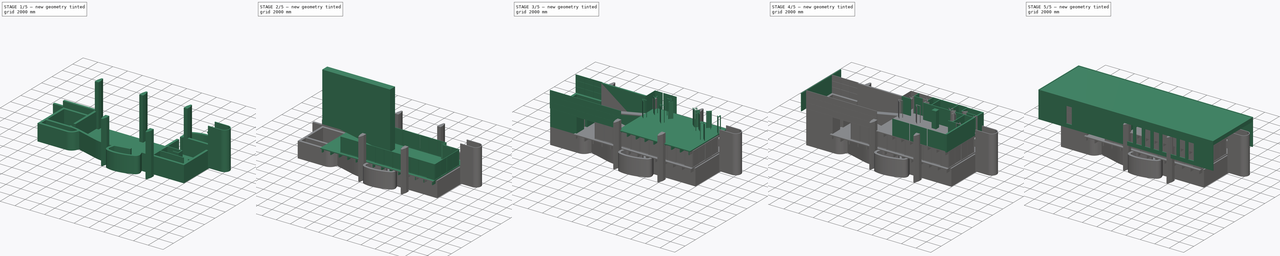
[diagram: build sequence overview — one tinted view per stage of 5, left to right]
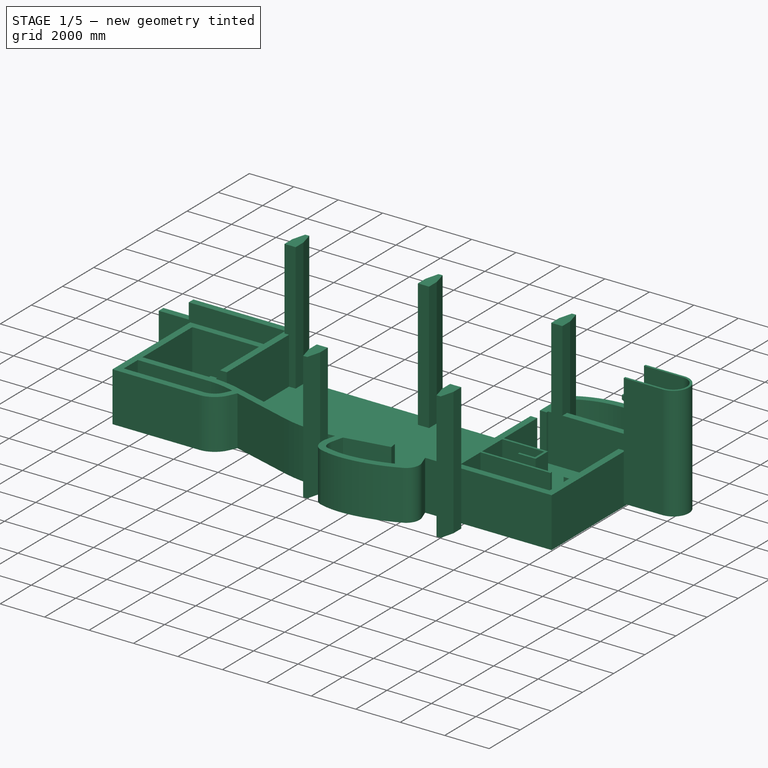
[diagram: stage 1 of 5 — iso view after this stage's code; geometry added in this stage tinted green]
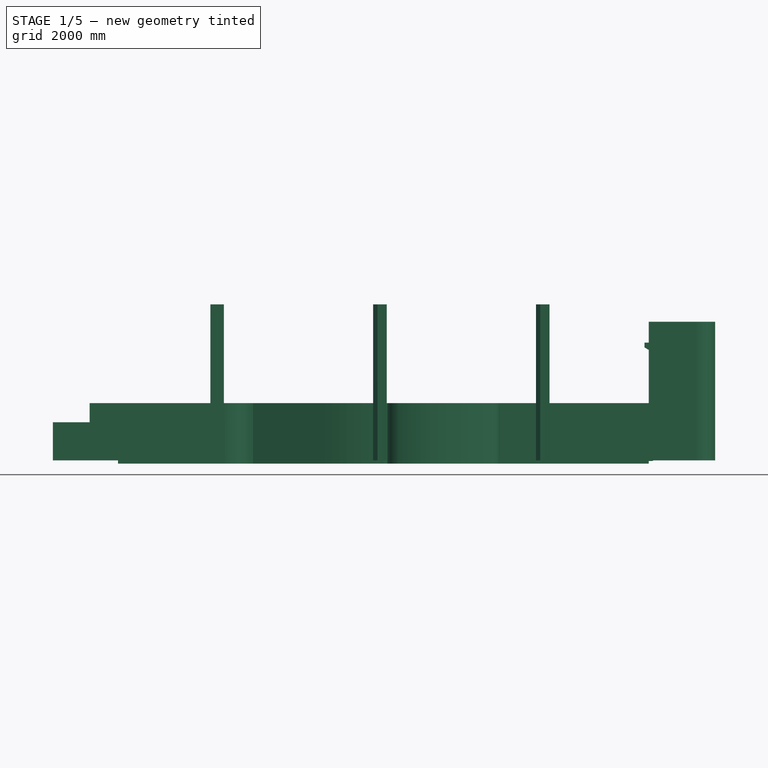
[diagram: stage 1 of 5 — front view after this stage's code; geometry added in this stage tinted green]
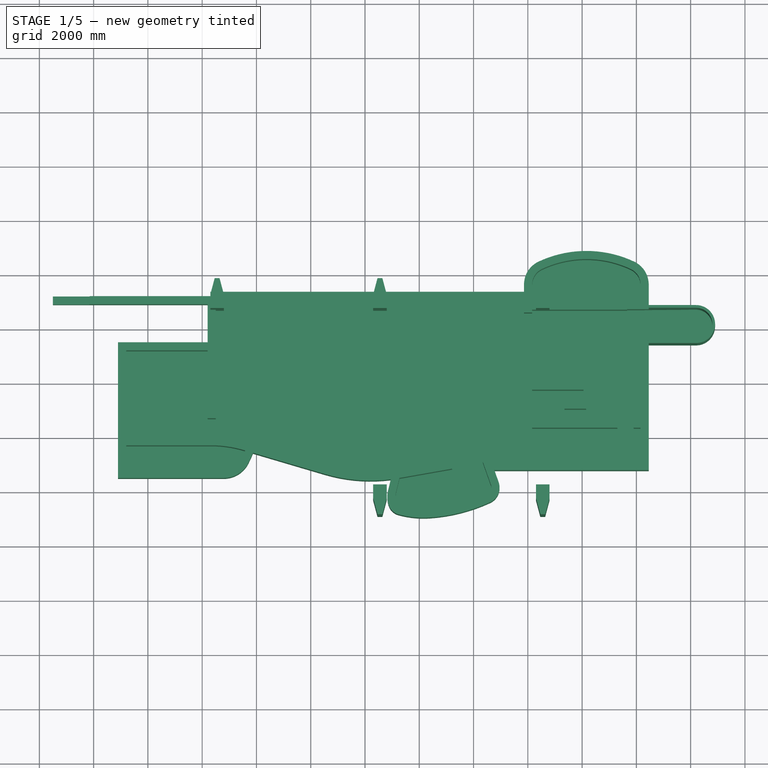
[diagram: stage 1 of 5 — top view after this stage's code; geometry added in this stage tinted green]
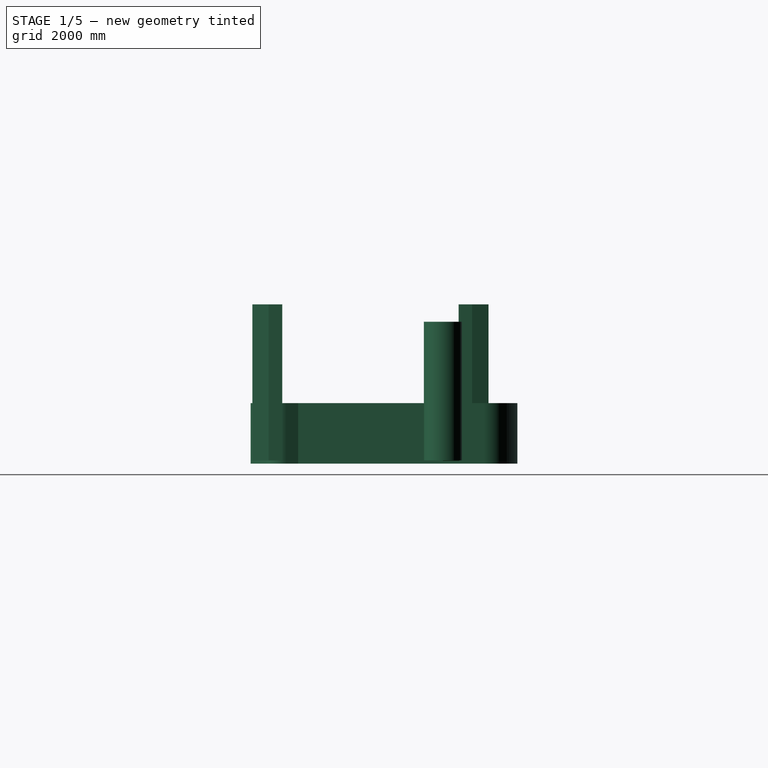
[diagram: stage 1 of 5 — right view after this stage's code; geometry added in this stage tinted green]
FCSTD DOCUMENT  (FreeCAD 1.0R39319 (Git))
Label: casa
Comment: An example BIM file made in FreeCAD. See README for more info
License: Creative Commons Attribution 4.0
LicenseURL: https://creativecommons.org/licenses/by/4.0/
objects: Part::FeaturePython×149, Part::Part2DObjectPython×63, App::FeaturePython×48, Sketcher::SketchObject×37, App::DocumentObjectGroup×24, Part::Extrusion×20, Part::Feature×6, App::GeometryPython×6, Part::Cut×2, Part::MultiFuse×1, TechDraw::DrawSVGTemplate×1, TechDraw::DrawViewDraft×1, TechDraw::DrawViewAnnotation×1, TechDraw::DrawPage×1, App::TextDocument×1
note: 318 computed .brp shape members not serialized (recipe doc carries the construction recipe); baked Part::Feature solids carry a one-line shape summary decoded from their .brp

FEATURE [Part::Part2DObjectPython] Wire001  # Draft 2D object (typed FeaturePython)
  Area = 454000
  ChamferSize = 0
  Closed = true
  End = (-13700,15700,0)
  FilletRadius = 0
  Length = 2921.93
  MakeFace = true
  Placement = pos=(-13700,16200,0) rot=(0,0,1;0rad)
  Points = (6) [(0,0,0),(500,0,0),(500,-500,0),(340,-1100,0),(160,-1100,0),(0,-500,0)]
  Start = (-13700,16200,0)
  Subdivisions = 0
FEATURE [Part::FeaturePython] Structure  label="Pillar"  # Arch/BIM 13 (typed FeaturePython)
  Base = -> Wire001
  BaseMirror = false
  BaseOffsetX = 0
  BaseOffsetY = 0
  BasePerpendicularToTool = false
  BaseRotation = 0
  ComputedLength = 5750
  FaceMaker = 0
  GlobalId = 0NkQKI2hLFPPYrA8HjVf2R
  Height = 5750
  HorizontalArea = 454000
  IfcData = IfcUID=0NkQKI2hLFPPYrA8HjVf2R,+2 more (map truncated)
  IfcType = 13
  Length = 0
  MoveBase = false
  MoveWithHost = false
  Nodes = (2) [(-13450,15724,0),(-13450,15724,5750)]
  NodesOffset = 0
  Normal = (0,0,1)
  PerimeterLength = 2921.93
  PredefinedType = 0
  ToolOffsetFirst = 0
  ToolOffsetLast = 0
  VerticalArea = 1.68011e+07
  Width = 100
FEATURE [Part::FeaturePython] Axis  label="Axes"  # WARN: FeaturePython — macro-defined, semantics opaque (R4)
  Angles = [0]
  Distances = [0]
  Length = 12000
  Limit = 0
  Placement = pos=(-19500,14000,0) rot=(0,0,1;0rad)
FEATURE [Part::FeaturePython] Axis001  label="Axes001"  # WARN: FeaturePython — macro-defined, semantics opaque (R4)
  Angles = [0]
  Distances = [0]
  Length = 12000
  Limit = 0
  Placement = pos=(-13450,14000,0) rot=(0,0,1;0rad)
FEATURE [App::FeaturePython] Dimension  # Draft dimension (typed FeaturePython)
  Diameter = false
  Dimline = (-14300,25300,0)
  Direction = (0,0,0)
  Distance = 6051.15
  End = (-13448.8,26000,0)
  Normal = (0,0,1)
  Start = (-19500,26000,0)
FEATURE [Part::FeaturePython] Axis002  label="Axes002"  # WARN: FeaturePython — macro-defined, semantics opaque (R4)
  Angles = [0]
  Distances = [0]
  Length = 12000
  Limit = 0
  Placement = pos=(-7450,14000,0) rot=(0,0,1;0rad)
FEATURE [Part::FeaturePython] Axis003  label="Axes003"  # WARN: FeaturePython — macro-defined, semantics opaque (R4)
  Angles = [0]
  Distances = [0]
  Length = 12000
  Limit = 0
  Placement = pos=(-1450,14000,0) rot=(0,0,1;0rad)
FEATURE [Part::FeaturePython] Axis004  label="Axes004"  # WARN: FeaturePython — macro-defined, semantics opaque (R4)
  Angles = [0]
  Distances = [0]
  Length = 12000
  Limit = 0
  Placement = pos=(4600,14000,0) rot=(0,0,1;0rad)
FEATURE [App::FeaturePython] Dimension001  # Draft dimension (typed FeaturePython)
  Diameter = false
  Dimline = (-10300,25300,0)
  Direction = (0,0,0)
  Distance = 6000
  End = (-7450,26000,0)
  Normal = (0,0,1)
  Start = (-13450,26000,0)
FEATURE [App::FeaturePython] Dimension002  # Draft dimension (typed FeaturePython)
  Diameter = false
  Dimline = (-3200,25300,0)
  Direction = (0,0,0)
  Distance = 6000
  End = (-1450,26000,0)
  Normal = (0,0,1)
  Start = (-7450,26000,0)
FEATURE [App::FeaturePython] Dimension003  # Draft dimension (typed FeaturePython)
  Diameter = false
  Dimline = (4100,25300,0)
  Direction = (0,0,0)
  Distance = 6050
  End = (4600,26000,0)
  Normal = (0,0,1)
  Start = (-1450,26000,0)
FEATURE [App::FeaturePython] Dimension004  # Draft dimension (typed FeaturePython)
  Diameter = false
  Dimline = (3800,25500,0)
  Direction = (0,0,0)
  Distance = 24100
  End = (4600,26000,0)
  Normal = (0,0,1)
  Start = (-19500,26000,0)
FEATURE [Part::FeaturePython] Axis005  label="Axes005"  # WARN: FeaturePython — macro-defined, semantics opaque (R4)
  Angles = [0]
  Distances = [0]
  Length = 30000
  Limit = 0
  Placement = pos=(6700,23400,0) rot=(0,0,1;1.5708rad)
FEATURE [Part::FeaturePython] Axis006  label="Axes006"  # WARN: FeaturePython — macro-defined, semantics opaque (R4)
  Angles = [0]
  Distances = [0]
  Length = 30000
  Limit = 0
  Placement = pos=(6700,15500,0) rot=(0,0,1;1.5708rad)
FEATURE [Part::FeaturePython] Axis007  label="Axes007"  # WARN: FeaturePython — macro-defined, semantics opaque (R4)
  Angles = [0]
  Distances = [0]
  Length = 30000
  Limit = 0
  Placement = pos=(6700,19450,0) rot=(0,0,1;1.5708rad)
FEATURE [App::FeaturePython] Dimension005  # Draft dimension (typed FeaturePython)
  Diameter = false
  Dimline = (-22700,18900,0)
  Direction = (0,0,0)
  Distance = 3950
  End = (-23300,19450,0)
  Normal = (0,0,1)
  Start = (-23300,15500,0)
FEATURE [App::FeaturePython] Dimension006  # Draft dimension (typed FeaturePython)
  Diameter = false
  Dimline = (-22700,20000,0)
  Direction = (0,0,0)
  Distance = 3950
  End = (-23300,23400,0)
  Normal = (0,0,1)
  Start = (-23300,19450,0)
FEATURE [App::FeaturePython] Dimension007  # Draft dimension (typed FeaturePython)
  Diameter = false
  Dimline = (-22900,20500,0)
  Direction = (0,0,0)
  Distance = 7900
  End = (-23300,23400,0)
  Normal = (0,0,1)
  Start = (-23300,15500,0)
FEATURE [Part::FeaturePython] Structure001  label="Pillar"  # Arch/BIM 13 (typed FeaturePython)
  BaseMirror = false
  BaseOffsetX = 0
  BaseOffsetY = 0
  BasePerpendicularToTool = false
  BaseRotation = 0
  CloneOf = -> Structure
  ComputedLength = 0
  FaceMaker = 0
  GlobalId = 3hDywtAl177982XMqiZviT
  Height = 5750
  HorizontalArea = 454000
  IfcData = IfcUID=3hDywtAl177982XMqiZviT,+2 more (map truncated)
  IfcType = 13
  Length = 0
  MoveBase = false
  MoveWithHost = false
  Nodes = (2) [(-13450,15724,0),(-13450,15724,5750)]
  NodesOffset = 0
  Normal = (0,0,0)
  PerimeterLength = 2921.93
  Placement = pos=(6000,0,0) rot=(0,0,1;0rad)
  PredefinedType = 0
  ToolOffsetFirst = 0
  ToolOffsetLast = 0
  VerticalArea = 1.68011e+07
  Width = 100
FEATURE [Part::FeaturePython] Structure002  label="Pillar"  # Arch/BIM 13 (typed FeaturePython)
  BaseMirror = false
  BaseOffsetX = 0
  BaseOffsetY = 0
  BasePerpendicularToTool = false
  BaseRotation = 0
  CloneOf = -> Structure
  ComputedLength = 0
  FaceMaker = 0
  GlobalId = 2Iak8LEPP6QvvV_2CvCRGJ
  Height = 5750
  HorizontalArea = 454000
  IfcData = IfcUID=2Iak8LEPP6QvvV_2CvCRGJ,+2 more (map truncated)
  IfcType = 13
  Length = 0
  MoveBase = false
  MoveWithHost = false
  Nodes = (2) [(-13450,15724,0),(-13450,15724,5750)]
  NodesOffset = 0
  Normal = (0,0,0)
  PerimeterLength = 2921.93
  Placement = pos=(12000,0,0) rot=(0,0,1;0rad)
  PredefinedType = 0
  ToolOffsetFirst = 0
  ToolOffsetLast = 0
  VerticalArea = 1.68011e+07
  Width = 100
FEATURE [Part::FeaturePython] Structure003  label="Pillar"  # Arch/BIM 13 (typed FeaturePython)
  BaseMirror = false
  BaseOffsetX = 0
  BaseOffsetY = 0
  BasePerpendicularToTool = false
  BaseRotation = 0
  CloneOf = -> Structure
  ComputedLength = 0
  FaceMaker = 0
  GlobalId = 23wGFEobfA$8ceSm6nz_Jv
  Height = 5750
  HorizontalArea = 454000
  IfcData = IfcUID=23wGFEobfA$8ceSm6nz_Jv,+2 more (map truncated)
  IfcType = 13
  Length = 0
  MoveBase = false
  MoveWithHost = false
  Nodes = (2) [(-13450,15724,0),(-13450,15724,5750)]
  NodesOffset = 0
  Normal = (0,0,0)
  PerimeterLength = 2921.93
  Placement = pos=(-14900,38900,0) rot=(0,0,1;3.14159rad)
  PredefinedType = 0
  ToolOffsetFirst = 0
  ToolOffsetLast = 0
  VerticalArea = 1.68011e+07
  Width = 100
FEATURE [Part::FeaturePython] Structure004  label="Pillar"  # Arch/BIM 13 (typed FeaturePython)
  BaseMirror = false
  BaseOffsetX = 0
  BaseOffsetY = 0
  BasePerpendicularToTool = false
  BaseRotation = 0
  CloneOf = -> Structure
  ComputedLength = 0
  FaceMaker = 0
  GlobalId = 32KGh79Pr1peQKH7LYbQZP
  Height = 5750
  HorizontalArea = 454000
  IfcData = IfcUID=32KGh79Pr1peQKH7LYbQZP,+2 more (map truncated)
  IfcType = 13
  Length = 0
  MoveBase = false
  MoveWithHost = false
  Nodes = (2) [(-13450,15724,0),(-13450,15724,5750)]
  NodesOffset = 0
  Normal = (0,0,0)
  PerimeterLength = 2921.93
  Placement = pos=(-20900,38900,0) rot=(0,0,1;3.14159rad)
  PredefinedType = 0
  ToolOffsetFirst = 0
  ToolOffsetLast = 0
  VerticalArea = 1.68011e+07
  Width = 100
FEATURE [Part::FeaturePython] Structure005  label="Pillar"  # Arch/BIM 13 (typed FeaturePython)
  BaseMirror = false
  BaseOffsetX = 0
  BaseOffsetY = 0
  BasePerpendicularToTool = false
  BaseRotation = 0
  CloneOf = -> Structure
  ComputedLength = 0
  FaceMaker = 0
  GlobalId = 1JF68xTuT5IvEFZJxc68$2
  Height = 5750
  HorizontalArea = 454000
  IfcData = IfcUID=1JF68xTuT5IvEFZJxc68$2,+2 more (map truncated)
  IfcType = 13
  Length = 0
  MoveBase = false
  MoveWithHost = false
  Nodes = (2) [(-13450,15724,0),(-13450,15724,5750)]
  NodesOffset = 0
  Normal = (0,0,0)
  PerimeterLength = 2921.93
  Placement = pos=(-26900,38900,0) rot=(0,0,1;3.14159rad)
  PredefinedType = 0
  ToolOffsetFirst = 0
  ToolOffsetLast = 0
  VerticalArea = 1.68011e+07
  Width = 100
FEATURE [Part::Part2DObjectPython] Rectangle006  # Draft 2D object (typed FeaturePython)
  Area = 30510000
  ChamferSize = 0
  Columns = 1
  FilletRadius = 0
  Height = 11300
  Length = 2700
  MakeFace = true
  Placement = pos=(2300,14600,0) rot=(0,0,1;0rad)
  Rows = 1
FEATURE [Part::Part2DObjectPython] Wire  # Draft 2D object (typed FeaturePython)
  Area = 6.971e+07
  ChamferSize = 0
  Closed = true
  End = (-22700,14600,700)
  FilletRadius = 0
  Length = 48400
  MakeFace = true
  Placement = pos=(-22700,25900,700) rot=(0,0,1;0rad)
  Points = (10) [(0,0,0),(7100,0,0),(7100,-2700,0),(3200,-2700,0),(3200,-4400,0),(5600,-4400,0),(5600,-9400,0),(9000,-9400,0),(9000,-11300,0),(0,-11300,0)]
  Start = (-22700,25900,700)
  Subdivisions = 0
FEATURE [Part::Part2DObjectPython] Rectangle008  # Draft 2D object (typed FeaturePython)
  Area = 57630000
  ChamferSize = 0
  Columns = 1
  FilletRadius = 0
  Height = 11300
  Length = 5100
  MakeFace = true
  Placement = pos=(7400,14600,1400) rot=(0,0,1;0rad)
  Rows = 1
FEATURE [Part::Part2DObjectPython] Wire002  # Draft 2D object (typed FeaturePython)
  Area = 3.13969e+07
  ChamferSize = 0
  Closed = true
  End = (5000,14600,-9.095e-13)
  FilletRadius = 0
  Length = 28157
  MakeFace = true
  Placement = pos=(5000,25800,0) rot=(0.797893,-0.195582,-0.570188;0.812026rad)
  Points = (4) [(-46.246,69.9963,-54.4226),(2081.69,1805.55,369.547),(7307.49,-6104.03,6519.31),(5179.55,-7839.59,6095.34)]
  Start = (5000,25900,7.1e-15)
  Subdivisions = 0
FEATURE [Part::Feature] Face
  shape: bbox 19550 x 9833 x 2e-07 mm, 1 faces, 0 solids (baked)
FEATURE [Part::FeaturePython] Structure012  label="Main slab"  # Arch/BIM 118 (typed FeaturePython)
  Base = -> Face
  BaseMirror = false
  BaseOffsetX = 0
  BaseOffsetY = 0
  BasePerpendicularToTool = false
  BaseRotation = 0
  ComputedLength = 120
  FaceMaker = 0
  GlobalId = 24SdiaVOr3EQUxBykhiROc
  Height = 120
  HorizontalArea = 0
  IfcData = IfcUID=24SdiaVOr3EQUxBykhiROc,+2 more (map truncated)
  IfcType = 118
  Length = 0
  MoveBase = false
  MoveWithHost = false
  Nodes = (24) [(2454.4,16787.6,0),(-3232.51,16787.6,0),(-3076.74,16350.4,0),(-3391.4,15604.6,0),(-5615.11,15041.2,0),(-6763.2,15157.1,0),(-7130.25,15509,0),+17 more]
  NodesOffset = 0
  Normal = (0,0,-1)
  PerimeterLength = 0
  PredefinedType = 0
  ToolOffsetFirst = 0
  ToolOffsetLast = 0
  VerticalArea = 0
  Width = 100
FEATURE [Part::Part2DObjectPython] Rectangle009  # Draft 2D object (typed FeaturePython)
  Area = 0
  ChamferSize = 0
  Columns = 1
  FilletRadius = 0
  Height = 5000
  Length = 3600
  MakeFace = false
  Placement = pos=(-17100,16500,0) rot=(0,0,1;0rad)
  Rows = 1
FEATURE [Sketcher::SketchObject] WallTrace001
  ArcFitTolerance = 0
  FullyConstrained = false
  MakeInternals = false
  sketch-geometry (1):
    g0: LineSegment StartX=-16800 StartY=17800 StartZ=0 EndX=-13800 EndY=17800 EndZ=0
FEATURE [Part::FeaturePython] Wall004  label="Parede001"  # Arch/BIM 166 (typed FeaturePython)
  Align = 1
  ArchSketchData = true
  Area = 6328200
  Base = -> WallTrace001
  BlockHeight = 0
  BlockLength = 0
  CountBroken = 0
  CountEntire = 0
  Face = 0
  Height = 2109.4
  HorizontalArea = 900000
  IfcData = attributes={"GlobalId": {"name": "GlobalId", "type": "IfcGloballyUniqueId", "is_enum": false, "enum_values": []}, "Description": {"... (+533 chars omitted),+1 more (map truncated)
  IfcType = 166
  Joint = 0
  Length = 3000
  MakeBlocks = false
  MoveBase = false
  MoveWithHost = false
  Normal = (0,0,1)
  OffsetFirst = 0
  OffsetSecond = 0
  PerimeterLength = 6600
  Placement = pos=(0,-100.255,0) rot=(0,0,1;0rad)
  PredefinedType = 0
  VerticalArea = 13922040
  Width = 300
FEATURE [Sketcher::SketchObject] WallTrace002
  ArcFitTolerance = 0
  FullyConstrained = false
  MakeInternals = false
  sketch-geometry (1):
    g0: LineSegment StartX=-13500 StartY=21500 StartZ=0 EndX=-13500 EndY=23200 EndZ=0
FEATURE [Part::FeaturePython] Wall005  label="Parede002"  # Arch/BIM 166 (typed FeaturePython)
  Align = 1
  ArchSketchData = true
  Area = 3585980
  Base = -> WallTrace002
  BlockHeight = 0
  BlockLength = 0
  CountBroken = 0
  CountEntire = 0
  Face = 0
  Height = 2109.4
  HorizontalArea = 510000
  IfcData = attributes={"GlobalId": {"name": "GlobalId", "type": "IfcGloballyUniqueId", "is_enum": false, "enum_values": []}, "Description": {"... (+533 chars omitted),+1 more (map truncated)
  IfcType = 166
  Joint = 0
  Length = 1700
  MakeBlocks = false
  MoveBase = false
  MoveWithHost = false
  Normal = (0,0,1)
  OffsetFirst = 0
  OffsetSecond = 0
  PerimeterLength = 4000
  PredefinedType = 0
  VerticalArea = 8437600
  Width = 300
FEATURE [Sketcher::SketchObject] WallTrace003
  ArcFitTolerance = 0
  FullyConstrained = false
  MakeInternals = false
  sketch-geometry (1):
    g0: LineSegment StartX=-13800 StartY=23200 StartZ=0 EndX=-19500 EndY=23200 EndZ=0
FEATURE [Part::FeaturePython] Wall006  label="Parede003"  # Arch/BIM 166 (typed FeaturePython)
  Align = 1
  ArchSketchData = true
  Area = 12023580
  Base = -> WallTrace003
  BlockHeight = 0
  BlockLength = 0
  CountBroken = 0
  CountEntire = 0
  Face = 0
  Height = 2109.4
  HorizontalArea = 1710000
  IfcData = attributes={"GlobalId": {"name": "GlobalId", "type": "IfcGloballyUniqueId", "is_enum": false, "enum_values": []}, "Description": {"... (+533 chars omitted),+1 more (map truncated)
  IfcType = 166
  Joint = 0
  Length = 5700
  MakeBlocks = false
  MoveBase = false
  MoveWithHost = false
  Normal = (0,0,1)
  OffsetFirst = 0
  OffsetSecond = 0
  PerimeterLength = 12000
  PredefinedType = 0
  VerticalArea = 25312800
  Width = 300
FEATURE [Part::Part2DObjectPython] Rectangle010  # Draft 2D object (typed FeaturePython)
  Area = 0
  ChamferSize = 0
  Columns = 1
  FilletRadius = 0
  Height = 6212.4
  Length = 4595.07
  MakeFace = false
  Placement = pos=(-2140.67,16787.6,0) rot=(0,0,1;0rad)
  Rows = 1
FEATURE [Part::Feature] Wire003
  shape: bbox 4595 x 1867 x 2e-07 mm, 0 faces, 0 solids (baked)
FEATURE [Part::FeaturePython] Wall008  label="Parede005"  # Arch/BIM 166 (typed FeaturePython)
  Align = 0
  ArchSketchData = true
  Area = 1.47824e+07
  Base = -> Wire003
  BlockHeight = 0
  BlockLength = 0
  CountBroken = 0
  CountEntire = 0
  Face = 0
  Height = 2109.4
  HorizontalArea = 1.96099e+06
  IfcData = attributes={"GlobalId": {"name": "GlobalId", "type": "IfcGloballyUniqueId", "is_enum": false, "enum_values": []}, "Description": {"... (+533 chars omitted),+1 more (map truncated)
  IfcType = 166
  Joint = 0
  Length = 7007.89
  MakeBlocks = false
  MoveBase = false
  MoveWithHost = false
  Normal = (0,0,0)
  OffsetFirst = 0
  OffsetSecond = 0
  PerimeterLength = 13673.3
  PredefinedType = 0
  VerticalArea = 6.56155e+06
  Width = 300
FEATURE [Part::Feature] Wire005
  shape: bbox 11360 x 2392 x 2e-07 mm, 0 faces, 0 solids (baked)
FEATURE [Part::Part2DObjectPython] Line  # Draft 2D object (typed FeaturePython)
  Area = 0
  ChamferSize = 0
  Closed = false
  End = (-4841.74,17137.4,0)
  FilletRadius = 0
  Length = 2127.59
  MakeFace = true
  Placement = pos=(-6650.98,16818.3,0) rot=(0,0,1;0rad)
  Points = (2) [(-286,-50.4524,0),(1809.24,319.163,0)]
  Start = (-6936.98,16767.8,0)
  Subdivisions = 0
FEATURE [Part::FeaturePython] Wall010  label="Parede007"  # Arch/BIM 166 (typed FeaturePython)
  Align = 0
  ArchSketchData = true
  Area = 4.48795e+06
  Base = -> Line
  BlockHeight = 0
  BlockLength = 0
  CountBroken = 0
  CountEntire = 0
  Face = 0
  Height = 2109.4
  HorizontalArea = 638278
  IfcData = attributes={"GlobalId": {"name": "GlobalId", "type": "IfcGloballyUniqueId", "is_enum": false, "enum_values": []}, "Description": {"... (+533 chars omitted),+1 more (map truncated)
  IfcType = 166
  Joint = 0
  Length = 2127.59
  MakeBlocks = false
  MoveBase = false
  MoveWithHost = false
  Normal = (0,0,0)
  OffsetFirst = 0
  OffsetSecond = 0
  PerimeterLength = 4855.19
  PredefinedType = 0
  VerticalArea = 1.02415e+07
  Width = 300
FEATURE [Part::Part2DObjectPython] Arc  # Draft 2D object (typed FeaturePython)
  Area = 0
  FirstAngle = 0
  LastAngle = 15.4102
  MakeFace = false
  Placement = pos=(-13682.8,13417.2,0) rot=(0,0,1;1.26197rad)
  Radius = 4586.44
FEATURE [Part::FeaturePython] Wall011  label="Parede008"  # Arch/BIM 166 (typed FeaturePython)
  Align = 1
  ArchSketchData = true
  Area = 2.60207e+06
  Base = -> Arc
  BlockHeight = 0
  BlockLength = 0
  CountBroken = 0
  CountEntire = 0
  Face = 0
  Height = 2109.4
  HorizontalArea = 357965
  IfcData = attributes={"GlobalId": {"name": "GlobalId", "type": "IfcGloballyUniqueId", "is_enum": false, "enum_values": []}, "Description": {"... (+533 chars omitted),+1 more (map truncated)
  IfcType = 166
  Joint = 0
  Length = 1233.56
  MakeBlocks = false
  MoveBase = false
  MoveWithHost = false
  Normal = (0,0,0)
  OffsetFirst = 0
  OffsetSecond = 0
  PerimeterLength = 2986.44
  PredefinedType = 0
  VerticalArea = 1.26564e+06
  Width = 300
FEATURE [Part::FeaturePython] Wall009  label="Parede006"  # Arch/BIM 166 (typed FeaturePython)
  Additions = -> [Wall010,Wall011]
  Align = 0
  ArchSketchData = true
  Area = 3.04495e+07
  Base = -> Wire005
  BlockHeight = 0
  BlockLength = 0
  CountBroken = 0
  CountEntire = 0
  Face = 0
  Height = 2109.4
  HorizontalArea = 0
  IfcData = attributes={"GlobalId": {"name": "GlobalId", "type": "IfcGloballyUniqueId", "is_enum": false, "enum_values": []}, "Description": {"... (+533 chars omitted),+1 more (map truncated)
  IfcType = 166
  Joint = 0
  Length = 14435.1
  MakeBlocks = false
  MoveBase = false
  MoveWithHost = false
  Normal = (0,0,0)
  OffsetFirst = 0
  OffsetSecond = 0
  PerimeterLength = 0
  PredefinedType = 0
  VerticalArea = 0
  Width = 300
FEATURE [Sketcher::SketchObject] WallTrace004
  ArcFitTolerance = 0
  FullyConstrained = false
  MakeInternals = false
  sketch-geometry (1):
    g0: LineSegment StartX=-1840.67 StartY=18400 StartZ=0 EndX=2154.4 EndY=18400 EndZ=0
FEATURE [Part::Part2DObjectPython] Wire006  # Draft 2D object (typed FeaturePython)
  Area = 0
  ChamferSize = 0
  Closed = false
  End = (-1840.67,19800,0)
  FilletRadius = 0
  Length = 3990.67
  MakeFace = true
  Placement = pos=(-600,18450,0) rot=(0,0,1;0rad)
  Points = (5) [(0,0,0),(0,650,0),(700,650,0),(700,1350,0),(-1240.67,1350,0)]
  Start = (-600,18450,0)
  Subdivisions = 0
FEATURE [Part::FeaturePython] Wall013  label="Wall"  # Arch/BIM 166 (typed FeaturePython)
  Align = 2
  ArchSketchData = true
  Area = 8.41792e+06
  Base = -> Wire006
  BlockHeight = 0
  BlockLength = 0
  CountBroken = 0
  CountEntire = 0
  Face = 0
  Height = 2109.4
  HorizontalArea = 399067
  IfcData = attributes={"GlobalId": {"name": "GlobalId", "type": "IfcGloballyUniqueId", "is_enum": false, "enum_values": []}, "Description": {"... (+533 chars omitted),+1 more (map truncated)
  IfcType = 166
  Joint = 0
  Length = 3990.67
  MakeBlocks = false
  MoveBase = false
  MoveWithHost = false
  Normal = (0,0,0)
  OffsetFirst = 0
  OffsetSecond = 0
  PerimeterLength = 8181.34
  PredefinedType = 0
  VerticalArea = 1.72577e+07
  Width = 100
FEATURE [Part::Feature] Block001
  shape: bbox 2396 x 1300 x 2e-07 mm, 0 faces, 0 solids (baked)
FEATURE [Part::FeaturePython] Wall014  label="Stairs wall"  # Arch/BIM 166 (typed FeaturePython)
  Align = 2
  ArchSketchData = true
  Area = 2.84146e+07
  Base = -> Block001
  BlockHeight = 0
  BlockLength = 0
  CountBroken = 0
  CountEntire = 0
  Face = 0
  GlobalId = 0gcU4iA1DBHfLataULH7CL
  Height = 5109.4
  HorizontalArea = 553328
  IfcData = IfcUID=0gcU4iA1DBHfLataULH7CL,+2 more (map truncated)
  IfcType = 166
  Joint = 0
  Length = 5561.24
  MakeBlocks = false
  MoveBase = false
  MoveWithHost = false
  Normal = (0,0,0)
  OffsetFirst = 0
  OffsetSecond = 0
  PerimeterLength = 11267
  Placement = pos=(0,70,0) rot=(0,0,1;0rad)
  PredefinedType = 0
  VerticalArea = 3.77196e+07
  Width = 100
FEATURE [Part::Part2DObjectPython] Rectangle013  # Draft 2D object (typed FeaturePython)
  Area = 480000
  ChamferSize = 0
  Columns = 1
  FilletRadius = 0
  Height = 600
  Length = 800
  MakeFace = true
  Placement = pos=(-13900,18100,0) rot=(0,0,1;0rad)
  Rows = 1
FEATURE [Part::Part2DObjectPython] Rectangle014  # Draft 2D object (typed FeaturePython)
  Area = 360000
  ChamferSize = 0
  Columns = 1
  FilletRadius = 0
  Height = 900
  Length = 400
  MakeFace = true
  Placement = pos=(-13900,16800,0) rot=(0,0,1;0rad)
  Rows = 1
FEATURE [Part::Extrusion] Extrude002  label="Extrude004"
  Base = -> Rectangle014
  Dir = (0,0,1)
  DirMode = 2
  FaceMakerClass = Part::FaceMakerBullseye
  FaceMakerMode = 3
  LengthFwd = 3000
  LengthRev = 0
  Solid = false
  Symmetric = false
FEATURE [Part::Extrusion] Extrude003  label="Extrude005"
  Base = -> Rectangle013
  Dir = (0,0,1)
  DirMode = 2
  FaceMakerClass = Part::FaceMakerBullseye
  FaceMakerMode = 3
  LengthFwd = 2200
  LengthRev = 0
  Solid = false
  Symmetric = false
FEATURE [Part::Part2DObjectPython] Rectangle015  # Draft 2D object (typed FeaturePython)
  Area = 600000
  ChamferSize = 0
  Columns = 1
  FilletRadius = 0
  Height = 600
  Length = 1000
  MakeFace = true
  Placement = pos=(-2300,22000,0) rot=(0,0,1;0rad)
  Rows = 1
FEATURE [Part::Part2DObjectPython] Rectangle016  # Draft 2D object (typed FeaturePython)
  Area = 600000
  ChamferSize = 0
  Columns = 1
  FilletRadius = 0
  Height = 600
  Length = 1000
  MakeFace = true
  Placement = pos=(-1150,18450,0) rot=(0,0,1;0rad)
  Rows = 1
FEATURE [Part::Part2DObjectPython] Rectangle017  # Draft 2D object (typed FeaturePython)
  Area = 600000
  ChamferSize = 0
  Columns = 1
  FilletRadius = 0
  Height = 1000
  Length = 600
  MakeFace = true
  Placement = pos=(1300,17600,0) rot=(0,0,1;0rad)
  Rows = 1
FEATURE [Part::Extrusion] Extrude004  label="Extrude006"
  Base = -> Rectangle015
  Dir = (0,0,1)
  DirMode = 2
  FaceMakerClass = Part::FaceMakerBullseye
  FaceMakerMode = 3
  LengthFwd = 2200
  LengthRev = 0
  Solid = false
  Symmetric = false
FEATURE [Part::Extrusion] Extrude005  label="Extrude007"
  Base = -> Rectangle016
  Dir = (0,0,1)
  DirMode = 2
  FaceMakerClass = Part::FaceMakerBullseye
  FaceMakerMode = 3
  LengthFwd = 2200
  LengthRev = 0
  Solid = false
  Symmetric = false
FEATURE [Part::Extrusion] Extrude006  label="Extrude008"
  Base = -> Rectangle017
  Dir = (0,0,1)
  DirMode = 2
  FaceMakerClass = Part::FaceMakerBullseye
  FaceMakerMode = 3
  LengthFwd = 2200
  LengthRev = 0
  Solid = false
  Symmetric = false
FEATURE [Part::FeaturePython] Wall012  label="Inner wall"  # Arch/BIM 166 (typed FeaturePython)
  Additions = -> [Wall013]
  Align = 2
  ArchSketchData = true
  Area = 8.42721e+06
  Base = -> WallTrace004
  BlockHeight = 0
  BlockLength = 0
  CountBroken = 0
  CountEntire = 0
  Face = 0
  GlobalId = 2idwnEQqPANPtn2T6W7if7
  Height = 2109.4
  HorizontalArea = 0
  IfcData = IfcUID=2idwnEQqPANPtn2T6W7if7,+2 more (map truncated)
  IfcType = 166
  Joint = 0
  Length = 3995.07
  MakeBlocks = false
  MoveBase = false
  MoveWithHost = false
  Normal = (0,0,1)
  OffsetFirst = 0
  OffsetSecond = 0
  PerimeterLength = 0
  PredefinedType = 0
  Subtractions = -> [Extrude005,Extrude006]
  VerticalArea = 0
  Width = 100
FEATURE [Part::Part2DObjectPython] Rectangle018  # Draft 2D object (typed FeaturePython)
  Area = 2.00111e+06
  ChamferSize = 0
  Columns = 1
  FilletRadius = 0
  Height = 1200
  Length = 1667.59
  MakeFace = true
  Placement = pos=(1659.61,21450,0) rot=(0,0,1;0rad)
  Rows = 1
FEATURE [Part::Extrusion] Extrude007  label="Extrude009"
  Base = -> Rectangle018
  Dir = (0,0,1)
  DirMode = 2
  FaceMakerClass = Part::FaceMakerBullseye
  FaceMakerMode = 3
  LengthFwd = 2200
  LengthRev = 0
  Placement = pos=(0,70,0) rot=(0,0,1;0rad)
  Solid = false
  Symmetric = false
FEATURE [Part::FeaturePython] Wall007  label="Stone wall"  # Arch/BIM 166 (typed FeaturePython)
  Additions = -> [Wall008]
  Align = 1
  ArchSketchData = true
  Area = 4.55946e+07
  Base = -> Rectangle010
  BlockHeight = 0
  BlockLength = 0
  CountBroken = 0
  CountEntire = 0
  Face = 0
  GlobalId = 2QrGNflgrCNfGLsQiH4uu2
  Height = 2109.4
  HorizontalArea = 0
  IfcData = IfcUID=2QrGNflgrCNfGLsQiH4uu2,+2 more (map truncated)
  IfcType = 166
  Joint = 0
  Length = 21615
  MakeBlocks = false
  MoveBase = false
  MoveWithHost = false
  Normal = (0,0,0)
  OffsetFirst = 0
  OffsetSecond = 0
  PerimeterLength = 0
  PredefinedType = 0
  Subtractions = -> [Extrude004,Extrude007]
  VerticalArea = 0
  Width = 300
FEATURE [Part::Feature] Face001
  Placement = pos=(-0.1,0,1114.69) rot=(0,0,1;0rad)
  shape: bbox 600 x 1200 x 2e-07 mm, 1 faces, 0 solids (baked)
FEATURE [Part::Part2DObjectPython] Rectangle029  # Draft 2D object (typed FeaturePython)
  Area = 335880
  ChamferSize = 0
  Columns = 1
  FilletRadius = 0
  Height = 1200
  Length = 279.9
  MakeFace = true
  Placement = pos=(3920,21520,1114.69) rot=(0,0,1;0rad)
  Rows = 1
FEATURE [Part::MultiFuse] Fusion
  Refine = true
  Shapes = -> [Face001,Rectangle029]
FEATURE [Part::FeaturePython] Structure014  label="Stairs slab"  # Arch/BIM 118 (typed FeaturePython)
  Base = -> Fusion
  BaseMirror = false
  BaseOffsetX = 0
  BaseOffsetY = 0
  BasePerpendicularToTool = false
  BaseRotation = 0
  ComputedLength = 240
  FaceMaker = 0
  GlobalId = 2ycfBSIkD1SuOPLsx$jl$3
  Height = 120
  HorizontalArea = 901367
  IfcData = IfcUID=2ycfBSIkD1SuOPLsx$jl$3,+2 more (map truncated)
  IfcType = 118
  Length = 0
  MoveBase = false
  MoveWithHost = false
  NodesOffset = 0
  Normal = (0,0,-1)
  PerimeterLength = 3644.76
  PredefinedType = 0
  ToolOffsetFirst = 0
  ToolOffsetLast = 0
  VerticalArea = 499176
  Width = 100
FEATURE [Part::Part2DObjectPython] Line013  # Draft 2D object (typed FeaturePython)
  Area = 0
  ChamferSize = 0
  Closed = false
  End = (2300,21520,2229.39)
  FilletRadius = 0
  Length = 1966.45
  MakeFace = true
  Placement = pos=(3920,21520,1114.69) rot=(0,0.707107,0.707107;3.14159rad)
  Points = (2) [(0,0,0),(1620,1114.69,0)]
  Start = (3920,21520,1114.69)
  Subdivisions = 0
FEATURE [Part::FeaturePython] Stairs003  label="Stairs"  # Arch/BIM 128 (typed FeaturePython)
  AbsTop = (3920,21520,2229.39)
  Align = 0
  Base = -> Line013
  BlondelRatio = 0
  ConnectionDownStartStairs = 0
  ConnectionEndStairsUp = 0
  DownSlabThickness = 150
  Flight = 0
  GlobalId = 1KCCu54bjEn9tj8UASzMF8
  Height = 3000
  HorizontalArea = 0
  IfcData = IfcUID=1KCCu54bjEn9tj8UASzMF8,+2 more (map truncated)
  IfcType = 128
  LandingDepth = 0
  Landings = 0
  Length = 4500
  MoveBase = false
  MoveWithHost = false
  Nosing = 0
  NumberOfSteps = 7
  OutlineLeft = (2) [(3920,21580,2173.94),(2300,21580,3129.39)]
  OutlineLeftAll = (2) [(3920,21580,2173.94),(2300,21580,3129.39)]
  OutlineRight = (2) [(2300,22060,3129.39),(3920,22060,2173.94)]
  OutlineRightAll = (2) [(2300,22060,3129.39),(3920,22060,2173.94)]
  PerimeterLength = 0
  PredefinedType = 0
  RailingHeightLeft = 900
  RailingHeightRight = 900
  RailingOffsetLeft = 60
  RailingOffsetRight = 60
  RiserHeight = 159.242
  RiserHeightEnforce = 0
  RiserThickness = 0
  StringerOverlap = 0
  StringerWidth = 0
  Structure = 1
  StructureOffset = 0
  StructureThickness = 150
  TreadDepth = 270
  TreadDepthEnforce = 0
  TreadThickness = 0
  UpSlabThickness = 150
  VerticalArea = 0
  Width = 600
  Winders = 0
FEATURE [Part::Part2DObjectPython] Line022  # Draft 2D object (typed FeaturePython)
  Area = 0
  ChamferSize = 0
  Closed = false
  End = (2300,21520,4500)
  FilletRadius = 0
  Length = 1978.21
  MakeFace = true
  Placement = pos=(3920,21520,3364.69) rot=(1,0,0;1.5708rad)
  Points = (2) [(0,0,0),(-1620,1135.31,0)]
  Start = (3920,21520,3364.69)
  Subdivisions = 0
FEATURE [Part::FeaturePython] Stairs005  label="Stairs red box"  # Arch/BIM 128 (typed FeaturePython)
  AbsTop = (3920,21520,4500)
  Align = 0
  Base = -> Line022
  BlondelRatio = 0
  ConnectionDownStartStairs = 0
  ConnectionEndStairsUp = 0
  DownSlabThickness = 150
  Flight = 0
  GlobalId = 2AbV24cmbA1f5E9iFVAOxH
  Height = 3000
  HorizontalArea = 0
  IfcData = IfcUID=2AbV24cmbA1f5E9iFVAOxH,+2 more (map truncated)
  IfcType = 128
  LandingDepth = 0
  Landings = 0
  Length = 4500
  MoveBase = false
  MoveWithHost = false
  Nosing = 0
  NumberOfSteps = 7
  OutlineLeft = (2) [(3920,21580,4426.88),(2300,21580,5400)]
  OutlineLeftAll = (2) [(3920,21580,4426.88),(2300,21580,5400)]
  OutlineRight = (2) [(2300,22060,5400),(3920,22060,4426.88)]
  OutlineRightAll = (2) [(2300,22060,5400),(3920,22060,4426.88)]
  PerimeterLength = 0
  PredefinedType = 0
  RailingHeightLeft = 900
  RailingHeightRight = 900
  RailingOffsetLeft = 60
  RailingOffsetRight = 60
  RiserHeight = 162.187
  RiserHeightEnforce = 0
  RiserThickness = 0
  StringerOverlap = 0
  StringerWidth = 0
  Structure = 1
  StructureOffset = 0
  StructureThickness = 150
  TreadDepth = 270
  TreadDepthEnforce = 0
  TreadThickness = 0
  UpSlabThickness = 150
  VerticalArea = 0
  Width = 600
  Winders = 0
FEATURE [Part::FeaturePython] Stairs006  label="Stairs"  # Arch/BIM 128 (typed FeaturePython)
  AbsTop = (0,0,0)
  Align = 0
  BlondelRatio = 0
  CloneOf = -> Stairs003
  ConnectionDownStartStairs = 0
  ConnectionEndStairsUp = 0
  DownSlabThickness = 150
  Flight = 0
  GlobalId = 1LNTFdvob5LhleUECx6EGT
  Height = 3000
  HorizontalArea = 0
  IfcData = IfcUID=1LNTFdvob5LhleUECx6EGT,+2 more (map truncated)
  IfcType = 128
  LandingDepth = 0
  Landings = 0
  Length = 4500
  MoveBase = false
  MoveWithHost = false
  Nosing = 0
  NumberOfSteps = 0
  PerimeterLength = 0
  Placement = pos=(6220,44240,-1135.31) rot=(0,0,1;3.14159rad)
  PredefinedType = 0
  RailingHeightLeft = 900
  RailingHeightRight = 900
  RailingOffsetLeft = 60
  RailingOffsetRight = 60
  RiserHeight = 0
  RiserHeightEnforce = 0
  RiserThickness = 0
  StringerOverlap = 0
  StringerWidth = 0
  Structure = 1
  StructureOffset = 0
  StructureThickness = 150
  TreadDepth = 0
  TreadDepthEnforce = 0
  TreadThickness = 0
  UpSlabThickness = 150
  VerticalArea = 0
  Width = 600
  Winders = 0
FEATURE [Part::Part2DObjectPython] Rectangle037  # Draft 2D object (typed FeaturePython)
  Area = 405000
  ChamferSize = 0
  Columns = 1
  FilletRadius = 0
  Height = 300
  Length = 1350
  MakeFace = true
  Placement = pos=(-19500,22900,2109.4) rot=(0,0,1;0rad)
  Rows = 1
FEATURE [Part::Extrusion] Extrude019  label="Extrude030"
  Base = -> Rectangle037
  Dir = (0,0,-1)
  DirMode = 0
  FaceMakerClass = Part::FaceMakerBullseye
  FaceMakerMode = 3
  LengthFwd = 704.7
  LengthRev = 0
  Solid = false
  Symmetric = false
FEATURE [Part::FeaturePython] Wall003  label="Stone wall"  # Arch/BIM 166 (typed FeaturePython)
  Additions = -> [Wall004,Wall005,Wall006,Wall009]
  Align = 1
  ArchSketchData = true
  Area = 36281680
  Base = -> Rectangle009
  BlockHeight = 0
  BlockLength = 0
  CountBroken = 0
  CountEntire = 0
  Face = 0
  GlobalId = 11DxrzNMP27ugJmqwULv8g
  Height = 2109.4
  HorizontalArea = 0
  IfcData = IfcUID=11DxrzNMP27ugJmqwULv8g,+2 more (map truncated)
  IfcType = 166
  Joint = 0
  Length = 17200
  MakeBlocks = false
  MoveBase = false
  MoveWithHost = false
  Normal = (0,0,0)
  OffsetFirst = 0
  OffsetSecond = 0
  PerimeterLength = 0
  PredefinedType = 0
  Subtractions = -> [Extrude002,Extrude003,Extrude019]
  VerticalArea = 0
  Width = 300
FEATURE [App::GeometryPython] BuildingPart002  label="Street level"  # Arch/BIM 14 (typed FeaturePython)
  Area = 0
  CompositionType = 0
  Elevation = 700
  GlobalId = 3jI3zUr2XEaxQo_NWAZ2Ho
  Group = -> [Stairs,Stairs001,Structure013,Stairs004]
  Height = 0
  HeightPropagate = true
  IfcData = IfcUID=3jI3zUr2XEaxQo_NWAZ2Ho,+2 more (map truncated)
  IfcType = 14
  LevelOffset = 0
  LongName = Street level
  MaterialsTable = Undefined=0,1,2,3
  OnlySolids = true
  Placement = pos=(-26400,4900,700) rot=(0,0,1;0rad)
  expr: Elevation = .Placement.Base.z
  expr: LongName = Label
FEATURE [App::GeometryPython] BuildingPart004  label="Roof"  # Arch/BIM 14 (typed FeaturePython)
  Area = 0
  CompositionType = 0
  Elevation = 6749.65
  GlobalId = 119ARhz7bBVuML3a5KoOpH
  Group = -> [Structure006,Wall,Wall001,Wall002,Array,Structure018,Structure019]
  Height = 0
  HeightPropagate = true
  IfcData = IfcUID=119ARhz7bBVuML3a5KoOpH,+2 more (map truncated)
  IfcType = 14
  LevelOffset = 0
  LongName = Roof
  MaterialsTable = Undefined=0,1,2,3,4,5,6,7,8,9,10,11,12,13,14,15,16,17,18,19,20,21,22,23
  OnlySolids = true
  Placement = pos=(-26400,4900,6749.65) rot=(0,0,1;0rad)
  expr: Elevation = .Placement.Base.z
  expr: LongName = Label
FEATURE [App::DocumentObjectGroup] Group016  label="Walls"
  Group = -> [Wall026,Wall020,Wall040,Wall042,Wall041]
FEATURE [App::DocumentObjectGroup] Group017  label="Windows"
  Group = -> [CurtainWall001,CurtainWall,Component,Component001,Window017,Window018,Window015,Window019,Window016,CurtainWall002,CurtainWall003,CurtainWall004]
FEATURE [App::DocumentObjectGroup] Group018  label="Slabs"
  Group = -> [Structure008]
FEATURE [App::DocumentObjectGroup] Group019  label="Beams"
  Group = -> [Array002]
FEATURE [App::DocumentObjectGroup] Group020  label="Doors"
  Group = -> [Window004,Window005,Window006,Window007,Window008,Window009,Window010,Window011,Window012,Window013,Window014,Window036]
FEATURE [App::GeometryPython] BuildingPart001  label="Upper floor"  # Arch/BIM 14 (typed FeaturePython)
  Area = 0
  CompositionType = 0
  Elevation = 4500
  GlobalId = 0i6I8AYU93IB_nF6JyDgUN
  Group = -> [Group016,Group017,Group018,Group019,Group020]
  Height = 0
  HeightPropagate = true
  IfcData = IfcUID=0i6I8AYU93IB_nF6JyDgUN,+2 more (map truncated)
  IfcType = 14
  LevelOffset = 0
  LongName = Upper floor
  MaterialsTable = Undefined=0,1,2,3,4,5,6,7,8,9,10,11,12,13,14,15,16,17,18,19,20,21,22,23,24,25,26,27,28,29,30,31,32,33,34,35,36,37,38,39,40,41,42,4... (+1005 chars omitted)
  OnlySolids = true
  Placement = pos=(-26400,4900,4500) rot=(0,0,1;0rad)
  expr: Elevation = .Placement.Base.z
  expr: LongName = Label
FEATURE [App::DocumentObjectGroup] Group021  label="Walls"
  Group = -> [Wall018,Wall015,Wall019,Wall037,Wall038,Wall039]
FEATURE [App::DocumentObjectGroup] Group022  label="Slabs"
  Group = -> [Structure007,Structure017]
FEATURE [App::DocumentObjectGroup] Group023  label="Beams"
  Group = -> [Array001]
FEATURE [App::DocumentObjectGroup] Group024  label="Windows"
  Group = -> [Window020,Window021,Window022,Window023,Window024,Window025,Window026,Window027,Window028,Window029,Window031,Window032,Window033,Extrude011,Clone012,Clone013,Clone014,Window034,Clone015,Window035]
FEATURE [App::DocumentObjectGroup] Group026  label="Stairs"
  Group = -> [Stairs005,Stairs007,Structure016,Structure015]
FEATURE [App::GeometryPython] BuildingPart  label="Ground floor"  # Arch/BIM 14 (typed FeaturePython)
  Area = 0
  CompositionType = 0
  Elevation = 2229.39
  GlobalId = 3f72XNgZ12B9RWKwRnYCoC
  Group = -> [Group021,Group022,Group023,Group024,Group026]
  Height = 0
  HeightPropagate = true
  IfcData = IfcUID=3f72XNgZ12B9RWKwRnYCoC,+2 more (map truncated)
  IfcType = 14
  LevelOffset = 0
  LongName = Ground floor
  MaterialsTable = Undefined=0,1,2,3,4,5,6,7,8,9,10,11,12,13,14,15,16,17,18,19,20,21,22,23,24,25,26,27,28,29,30,31,32,33,34,35,36,37,38,39,40,41,42,4... (+169 chars omitted)
  OnlySolids = true
  Placement = pos=(-26400,4900,2229.39) rot=(0,0,1;0rad)
  expr: Elevation = .Placement.Base.z
  expr: LongName = Label
FEATURE [App::DocumentObjectGroup] Group027  label="Structure"
  Group = -> [Structure012,Structure014,Structure,Structure001,Structure002,Structure003,Structure004,Structure005]
FEATURE [App::DocumentObjectGroup] Group028  label="Stairs"
  Group = -> [Stairs003,Stairs006]
FEATURE [App::DocumentObjectGroup] Group029  label="Walls"
  Group = -> [Wall014,Wall003,Wall007,Wall012]
FEATURE [App::GeometryPython] BuildingPart003  label="Basement"  # Arch/BIM 14 (typed FeaturePython)
  Area = 0
  CompositionType = 0
  Elevation = 0
  GlobalId = 1Mc27qKvnCK96ws8HJTEHi
  Group = -> [Group027,Group028,Group029,Group013]
  Height = 0
  HeightPropagate = true
  IfcData = IfcUID=1Mc27qKvnCK96ws8HJTEHi,+2 more (map truncated)
  IfcType = 14
  LevelOffset = 0
  LongName = Basement
  MaterialsTable = Undefined=0,1,2,3,4,5,6,7,8,9,10,11,12,13,14,15,16,17,18,19,20,21,22,23,24,25,26
  OnlySolids = true
  Placement = pos=(-26400,4900,0) rot=(0,0,1;0rad)
  expr: Elevation = .Placement.Base.z
  expr: LongName = Label
FEATURE [App::GeometryPython] BuildingPart005  label="Casa Martirana"  # Arch/BIM 10 (typed FeaturePython)
  Area = 0
  BuildingType = 0
  CompositionType = 0
  ElevationOfRefHeight = 0
  ElevationOfTerrain = 0
  GlobalId = 1xq1E9IQL42gPT_ad0067a
  Group = -> [BuildingPart,BuildingPart001,BuildingPart002,BuildingPart003,BuildingPart004]
  Height = 0
  HeightPropagate = true
  IfcData = IfcUID=1xq1E9IQL42gPT_ad0067a,+2 more (map truncated)
  IfcType = 10
  LevelOffset = 0
  LongName = Casa Martirana
  MaterialsTable = Undefined=0,1,2,3,4,5,6,7,8,9,10,11,12,13,14,15,16,17,18,19,20,21,22,23,24,25,26,27,28,29,30,31,32,33,34,35,36,37,38,39,40,41,42,4... (+1625 chars omitted)
  OnlySolids = true
  expr: LongName = Label
FEATURE [App::FeaturePython] Section  label="Section Plane"  # WARN: FeaturePython — macro-defined, semantics opaque (R4)
  Clip = false
  Depth = 0
  Objects = -> [BuildingPart005,Group007]
  OnlySolids = false
  Placement = pos=(-5100,20250,3800) rot=(0,0,1;0rad)
  UseMaterialColorForFill = false
FEATURE [Part::Part2DObjectPython] Shape2DView  label="Shape2DView Viewed"  # Draft 2D object (typed FeaturePython)
  AutoUpdate = false
  Base = -> Section
  Clip = false
  FuseArch = true
  HiddenLines = false
  InPlace = false
  OnlySolids = false
  Placement = pos=(0,-15000,0) rot=(0,0,1;0rad)
  Projection = (0,0,1)
  ProjectionMode = 0
  SegmentLength = 0.05
  Tessellation = false
  VisibleOnly = false
FEATURE [Part::Part2DObjectPython] Shape2DView001  label="Shape2DView Cut"  # Draft 2D object (typed FeaturePython)
  AutoUpdate = false
  Base = -> Section
  Clip = false
  FuseArch = true
  HiddenLines = false
  InPlace = true
  OnlySolids = false
  Placement = pos=(0,-15000,-3314.83) rot=(0,0,1;0rad)
  Projection = (0,0,1)
  ProjectionMode = 3
  SegmentLength = 0.05
  Tessellation = false
  VisibleOnly = false
FEATURE [App::FeaturePython] Dimension008  # Draft dimension (typed FeaturePython)
  Diameter = false
  Dimline = (-22300,5500,0)
  Direction = (0,0,0)
  Distance = 7900
  End = (-22700,8400,0)
  Normal = (0,0,1)
  Start = (-22700,500,0)
FEATURE [Part::FeaturePython] Axis008  label="Axes"  # WARN: FeaturePython — macro-defined, semantics opaque (R4)
  Angles = [0]
  Distances = [0]
  Length = 12000
  Limit = 0
  Placement = pos=(-19500,-1000,0) rot=(0,0,1;0rad)
FEATURE [Part::FeaturePython] Axis009  label="Axes001"  # WARN: FeaturePython — macro-defined, semantics opaque (R4)
  Angles = [0]
  Distances = [0]
  Length = 12000
  Limit = 0
  Placement = pos=(-13450,-1000,0) rot=(0,0,1;0rad)
FEATURE [Part::FeaturePython] Axis010  label="Axes002"  # WARN: FeaturePython — macro-defined, semantics opaque (R4)
  Angles = [0]
  Distances = [0]
  Length = 12000
  Limit = 0
  Placement = pos=(-7450,-1000,0) rot=(0,0,1;0rad)
FEATURE [Part::FeaturePython] Axis011  label="Axes003"  # WARN: FeaturePython — macro-defined, semantics opaque (R4)
  Angles = [0]
  Distances = [0]
  Length = 12000
  Limit = 0
  Placement = pos=(-1450,-1000,0) rot=(0,0,1;0rad)
FEATURE [Part::FeaturePython] Axis012  label="Axes004"  # WARN: FeaturePython — macro-defined, semantics opaque (R4)
  Angles = [0]
  Distances = [0]
  Length = 12000
  Limit = 0
  Placement = pos=(4600,-1000,0) rot=(0,0,1;0rad)
FEATURE [Part::FeaturePython] Axis013  label="Axes005"  # WARN: FeaturePython — macro-defined, semantics opaque (R4)
  Angles = [0]
  Distances = [0]
  Length = 30000
  Limit = 0
  Placement = pos=(6700,8400,0) rot=(0,0,1;1.5708rad)
FEATURE [Part::FeaturePython] Axis014  label="Axes006"  # WARN: FeaturePython — macro-defined, semantics opaque (R4)
  Angles = [0]
  Distances = [0]
  Length = 30000
  Limit = 0
  Placement = pos=(6700,500,0) rot=(0,0,1;1.5708rad)
FEATURE [Part::FeaturePython] Axis015  label="Axes007"  # WARN: FeaturePython — macro-defined, semantics opaque (R4)
  Angles = [0]
  Distances = [0]
  Length = 30000
  Limit = 0
  Placement = pos=(6700,4450,0) rot=(0,0,1;1.5708rad)
FEATURE [App::FeaturePython] Dimension009  # Draft dimension (typed FeaturePython)
  Diameter = false
  Dimline = (-14300,10300,0)
  Direction = (0,0,0)
  Distance = 6051.15
  End = (-13448.8,11000,0)
  Normal = (0,0,1)
  Start = (-19500,11000,0)
FEATURE [App::FeaturePython] Dimension010  # Draft dimension (typed FeaturePython)
  Diameter = false
  Dimline = (-10300,10300,0)
  Direction = (0,0,0)
  Distance = 6000
  End = (-7450,11000,0)
  Normal = (0,0,1)
  Start = (-13450,11000,0)
FEATURE [App::FeaturePython] Dimension011  # Draft dimension (typed FeaturePython)
  Diameter = false
  Dimline = (-3200,10300,0)
  Direction = (0,0,0)
  Distance = 6000
  End = (-1450,11000,0)
  Normal = (0,0,1)
  Start = (-7450,11000,0)
FEATURE [App::FeaturePython] Dimension012  # Draft dimension (typed FeaturePython)
  Diameter = false
  Dimline = (4100,10300,0)
  Direction = (0,0,0)
  Distance = 6050
  End = (4600,11000,0)
  Normal = (0,0,1)
  Start = (-1450,11000,0)
FEATURE [App::FeaturePython] Dimension013  # Draft dimension (typed FeaturePython)
  Diameter = false
  Dimline = (3800,10500,0)
  Direction = (0,0,0)
  Distance = 24100
  End = (4600,11000,0)
  Normal = (0,0,1)
  Start = (-19500,11000,0)
FEATURE [App::FeaturePython] Dimension014  # Draft dimension (typed FeaturePython)
  Diameter = false
  Dimline = (-22100,3900,0)
  Direction = (0,0,0)
  Distance = 3950
  End = (-22700,4450,0)
  Normal = (0,0,1)
  Start = (-22700,500,0)
FEATURE [App::FeaturePython] Dimension015  # Draft dimension (typed FeaturePython)
  Diameter = false
  Dimline = (-22100,5000,0)
  Direction = (0,0,0)
  Distance = 3950
  End = (-22700,8400,0)
  Normal = (0,0,1)
  Start = (-22700,4450,0)
FEATURE [App::DocumentObjectGroup] Group030  label="Generated views"
  Group = -> [Shape2DView,Shape2DView001]
FEATURE [App::DocumentObjectGroup] Group031  label="Axes"
  Group = -> [Axis008,Axis009,Axis010,Axis011,Axis012,Axis013,Axis014,Axis015]
FEATURE [Part::Part2DObjectPython] Line024  # Draft 2D object (typed FeaturePython)
  Area = 0
  ChamferSize = 0
  Closed = false
  End = (-18150,7200,0)
  FilletRadius = 0
  Length = 1350
  MakeFace = false
  Placement = pos=(-19500,7200,0) rot=(0,0,1;0rad)
  Points = (2) [(0,0,0),(1350,0,0)]
  Start = (-19500,7200,0)
  Subdivisions = 0
FEATURE [Part::Part2DObjectPython] Line025  # Draft 2D object (typed FeaturePython)
  Area = 0
  ChamferSize = 0
  Closed = false
  End = (-13700,7200,0)
  FilletRadius = 0
  Length = 1180
  MakeFace = false
  Placement = pos=(-14880,7200,0) rot=(0,0,1;0rad)
  Points = (2) [(0,0,0),(1180,0,0)]
  Start = (-14880,7200,0)
  Subdivisions = 0
FEATURE [Part::Part2DObjectPython] Line026  # Draft 2D object (typed FeaturePython)
  Area = 0
  ChamferSize = 0
  Closed = false
  End = (3920,7420,0)
  FilletRadius = 0
  Length = 1620
  MakeFace = false
  Placement = pos=(2300,7420,0) rot=(0,0,1;0rad)
  Points = (2) [(0,0,0),(1620,0,0)]
  Start = (2300,7420,0)
  Subdivisions = 0
FEATURE [Part::Part2DObjectPython] Arc001  # Draft 2D object (typed FeaturePython)
  Area = 0
  FirstAngle = 270
  LastAngle = 90
  MakeFace = false
  Placement = pos=(3920,7120,0) rot=(0,0,1;0rad)
  Radius = 300
FEATURE [Part::Part2DObjectPython] Line027  # Draft 2D object (typed FeaturePython)
  Area = 0
  ChamferSize = 0
  Closed = false
  End = (3380,6820,0)
  FilletRadius = 0
  Length = 540
  MakeFace = false
  Placement = pos=(3920,6820,0) rot=(0,0,1;0rad)
  Points = (2) [(0,0,0),(-540,0,0)]
  Start = (3920,6820,0)
  Subdivisions = 0
FEATURE [Part::Part2DObjectPython] Line028  # Draft 2D object (typed FeaturePython)
  Area = 0
  ChamferSize = 0
  Closed = false
  End = (-13500,5250,0)
  FilletRadius = 0
  Length = 6000
  MakeFace = false
  Placement = pos=(-7500,5250,0) rot=(0,0,1;0rad)
  Points = (2) [(0,0,0),(-6000,0,0)]
  Start = (-7500,5250,0)
  Subdivisions = 0
FEATURE [App::FeaturePython] Dimension016  # Draft dimension (typed FeaturePython)
  Diameter = false
  Dimline = (-21900,600,0)
  Direction = (0,0,0)
  Distance = 100
  End = (-19500,600,0)
  Normal = (0,0,1)
  Start = (-19500,500,0)
FEATURE [App::FeaturePython] Dimension017  # Draft dimension (typed FeaturePython)
  Diameter = false
  Dimline = (-21900,1300,0)
  Direction = (0,0,0)
  Distance = 900
  End = (-17600,1500,0)
  Normal = (0,0,1)
  Start = (-17600,600,0)
FEATURE [App::FeaturePython] Dimension018  # Draft dimension (typed FeaturePython)
  Diameter = false
  Dimline = (-21900,3500,0)
  Direction = (0,0,0)
  Distance = 5000
  End = (-17100,6500,0)
  Normal = (0,0,1)
  Start = (-17100,1500,0)
FEATURE [App::FeaturePython] Dimension019  # Draft dimension (typed FeaturePython)
  Diameter = false
  Dimline = (-21900,7300,0)
  Direction = (0,0,0)
  Distance = 1400
  End = (-19500,7900,0)
  Normal = (0,0,1)
  Start = (-19500,6500,0)
FEATURE [App::FeaturePython] Dimension020  # Draft dimension (typed FeaturePython)
  Diameter = false
  Dimline = (-21900,8100,0)
  Direction = (0,0,0)
  Distance = 400
  End = (-19500,8300,0)
  Normal = (0,0,1)
  Start = (-19500,7900,0)
FEATURE [App::FeaturePython] Dimension021  # Draft dimension (typed FeaturePython)
  Diameter = false
  Dimline = (-21900,8500,0)
  Direction = (0,0,0)
  Distance = 100
  End = (-19500,8400,0)
  Normal = (0,0,1)
  Start = (-19500,8300,0)
FEATURE [App::FeaturePython] Dimension022  # Draft dimension (typed FeaturePython)
  Diameter = false
  Dimline = (-17500,6800,0)
  Direction = (0,0,0)
  Distance = 1350
  End = (-18150,6500,0)
  Normal = (0,0,1)
  Start = (-19500,6500,0)
FEATURE [App::FeaturePython] Dimension023  # Draft dimension (typed FeaturePython)
  Diameter = false
  Dimline = (-16200,6800,0)
  Direction = (0,0,0)
  Distance = 3270
  End = (-14880,6500,0)
  Normal = (0,0,1)
  Start = (-18150,6500,0)
FEATURE [App::FeaturePython] Dimension024  # Draft dimension (typed FeaturePython)
  Diameter = false
  Dimline = (-14400,6800,0)
  Direction = (0,0,0)
  Distance = 1180
  End = (-13700,6500,0)
  Normal = (0,0,1)
  Start = (-14880,6500,0)
FEATURE [App::FeaturePython] Dimension025  # Draft dimension (typed FeaturePython)
  Diameter = false
  Dimline = (-8900,6800,0)
  Direction = (0,0,0)
  Distance = 6200
  End = (-7500,6500,0)
  Normal = (0,0,1)
  Start = (-13700,6500,0)
FEATURE [App::FeaturePython] Dimension026  # Draft dimension (typed FeaturePython)
  Diameter = false
  Dimline = (-5400,6800,0)
  Direction = (0,0,0)
  Distance = 2450
  End = (-5050,6500,0)
  Normal = (0,0,1)
  Start = (-7500,6500,0)
FEATURE [App::FeaturePython] Dimension027  # Draft dimension (typed FeaturePython)
  Diameter = false
  Dimline = (-4800,6800,0)
  Direction = (0,0,0)
  Distance = 100
  End = (-4950,7150,0)
  Normal = (0,0,1)
  Start = (-5050,7150,0)
FEATURE [App::FeaturePython] Dimension028  # Draft dimension (typed FeaturePython)
  Diameter = false
  Dimline = (-3100,6800,0)
  Direction = (0,0,0)
  Distance = 4900
  End = (-50,7150,0)
  Normal = (0,0,1)
  Start = (-4950,7150,0)
FEATURE [App::FeaturePython] Dimension029  # Draft dimension (typed FeaturePython)
  Diameter = false
  Dimline = (1300,6800,0)
  Direction = (0,0,0)
  Distance = 2350
  End = (2300,6460,0)
  Normal = (0,0,1)
  Start = (-50,6460,0)
FEATURE [App::FeaturePython] Dimension030  # Draft dimension (typed FeaturePython)
  Diameter = false
  Dimline = (-16500,2100,0)
  Direction = (0,0,0)
  Distance = 300
  End = (-16800,1500,0)
  Normal = (0,0,1)
  Start = (-17100,1500,0)
FEATURE [App::FeaturePython] Dimension031  # Draft dimension (typed FeaturePython)
  Diameter = false
  Dimline = (-14400,2100,0)
  Direction = (0,0,0)
  Distance = 3000
  End = (-13800,1800,0)
  Normal = (0,0,1)
  Start = (-16800,1800,0)
FEATURE [App::FeaturePython] Dimension032  # Draft dimension (typed FeaturePython)
  Diameter = false
  Dimline = (-13300,2100,0)
  Direction = (0,0,0)
  Distance = 300
  End = (-13500,1800,0)
  Normal = (0,0,1)
  Start = (-13800,1800,0)
FEATURE [App::FeaturePython] Dimension033  # Draft dimension (typed FeaturePython)
  Diameter = false
  Dimline = (-12100,2100,0)
  Direction = (0,0,0)
  Distance = 13200
  End = (-300,2225,0)
  Normal = (0,0,1)
  Start = (-13500,2225,0)
FEATURE [App::FeaturePython] Dimension034  # Draft dimension (typed FeaturePython)
  Diameter = false
  Dimline = (-100,2100,0)
  Direction = (0,0,0)
  Distance = 100
  End = (-200,2150,0)
  Normal = (0,0,1)
  Start = (-300,2150,0)
FEATURE [App::FeaturePython] Dimension035  # Draft dimension (typed FeaturePython)
  Diameter = false
  Dimline = (1100,2100,0)
  Direction = (0,0,0)
  Distance = 2440
  End = (2240,2150,0)
  Normal = (0,0,1)
  Start = (-200,2150,0)
FEATURE [App::FeaturePython] Dimension036  # Draft dimension (typed FeaturePython)
  Diameter = false
  Dimline = (-14100,2200,0)
  Direction = (0,0,0)
  Distance = 300
  End = (-17100,1800,0)
  Normal = (0,0,1)
  Start = (-17100,1500,0)
FEATURE [App::FeaturePython] Dimension037  # Draft dimension (typed FeaturePython)
  Diameter = false
  Dimline = (-14100,5500,0)
  Direction = (0,0,0)
  Distance = 4400
  End = (-13800,6200,0)
  Normal = (0,0,1)
  Start = (-13800,1800,0)
FEATURE [App::FeaturePython] Dimension038  # Draft dimension (typed FeaturePython)
  Diameter = false
  Dimline = (-14100,6600,0)
  Direction = (0,0,0)
  Distance = 300
  End = (-13500,6500,0)
  Normal = (0,0,1)
  Start = (-13500,6200,0)
FEATURE [App::FeaturePython] Dimension039  # Draft dimension (typed FeaturePython)
  Diameter = false
  Dimline = (-4600,5400,0)
  Direction = (0,0,0)
  Distance = 100
  End = (-5050,5100,0)
  Normal = (0,0,1)
  Start = (-5050,5000,0)
FEATURE [App::FeaturePython] Dimension040  # Draft dimension (typed FeaturePython)
  Diameter = false
  Dimline = (-4600,6000,0)
  Direction = (0,0,0)
  Distance = 2050
  End = (-4950,7150,0)
  Normal = (0,0,1)
  Start = (-4950,5100,0)
FEATURE [App::FeaturePython] Dimension041  # Draft dimension (typed FeaturePython)
  Diameter = false
  Dimline = (-4600,7900,0)
  Direction = (0,0,0)
  Distance = 1150
  End = (-4950,8300,0)
  Normal = (0,0,1)
  Start = (-4950,7150,0)
FEATURE [App::FeaturePython] Dimension042  # Draft dimension (typed FeaturePython)
  Diameter = false
  Dimline = (-4600,4200,0)
  Direction = (0,0,0)
  Distance = 3440
  End = (2240,5000,0)
  Normal = (0,0,1)
  Start = (2240,1560,0)
FEATURE [App::DocumentObjectGroup] Group032  label="Dimensions"
  Group = -> [Dimension009,Dimension010,Dimension011,Dimension012,Dimension013,Dimension014,Dimension015,Dimension008,Dimension016,Dimension017,Dimension018,Dimension019,Dimension020,Dimension021,Dimension022,Dimension023,Dimension024,Dimension025,Dimension026,Dimension027,Dimension028,Dimension029,Dimension030,Dimension031,Dimension032,Dimension033,Dimension034,Dimension035,Dimension036,Dimension037,+5 more]
FEATURE [Part::FeaturePython] Hatch  # WARN: FeaturePython — macro-defined, semantics opaque (R4)
  Base = -> Shape2DView001
  File = <userpath>/Dropbox/Inbox/Blocks/Hatches/acad.pat
  Pattern = ANSI31
  Rotation = 0
  Scale = 500
  Translate = true
FEATURE [App::DocumentObjectGroup] Group033  label="Linework"
  Group = -> [Line024,Line025,Line026,Arc001,Line027,Line028,Hatch]
FEATURE [Part::Part2DObjectPython] Rectangle038  label="Library"  # Draft 2D object (typed FeaturePython)
  Area = 13200000
  ChamferSize = 0
  Columns = 1
  FilletRadius = 0
  Height = 4400
  Length = 3000
  MakeFace = true
  Placement = pos=(-16800,16800,0) rot=(0,0,1;0rad)
  Rows = 1
FEATURE [App::FeaturePython] dLabel  label="Label library"  # WARN: FeaturePython — macro-defined, semantics opaque (R4)
  CustomText = Label
  LabelType = 11
  Placement = pos=(-15129.4,3879.14,0) rot=(0,0,1;0rad)
  Points = (3) [(-15129.4,3879.14,0),(-15129.4,4134.84,0),(-15834.4,4055.75,0)]
  StraightDirection = 1
  StraightDistance = 255.7
  Target = -> Rectangle038
  TargetPoint = (-15834.4,4055.75,0)
  Text = Library | 13,2000 m²
FEATURE [Part::Part2DObjectPython] Rectangle039  label="Kitchen"  # Draft 2D object (typed FeaturePython)
  Area = 1.0045e+07
  ChamferSize = 0
  Columns = 1
  FilletRadius = 0
  Height = 2050
  Length = 4900
  MakeFace = true
  Placement = pos=(-4950,20100,0) rot=(0,0,1;0rad)
  Rows = 1
FEATURE [Part::Part2DObjectPython] Wire011  label="Lounge"  # Draft 2D object (typed FeaturePython)
  Area = 1.1702e+07
  ChamferSize = 0
  Closed = true
  End = (-50,21460,0)
  FilletRadius = 0
  Length = 15380
  MakeFace = true
  Placement = pos=(2240,21460,0) rot=(0,0,1;0rad)
  Points = (8) [(0,0,0),(1.81899e-12,-4900,0),(-2440,-4900,0),(-2440,-1460,0),(-1940,-1460,0),(-1940,-1360,0),(-2290,-1360,0),(-2290,0,0)]
  Start = (2240,21460,0)
  Subdivisions = 0
FEATURE [Part::Part2DObjectPython] Wire012  label="Living room"  # Draft 2D object (typed FeaturePython)
  Area = 4.99645e+07
  ChamferSize = 0
  Closed = true
  End = (-7400,19900,0)
  FilletRadius = 0
  Length = 37980
  MakeFace = true
  Placement = pos=(-13500,19900,0) rot=(0,1,0;3.14159rad)
  Points = (13) [(0,0,0),(-1.81899e-12,-3340,0),(-13300,-3340,0),(-13300,-2750,0),(-13200,-2750,0),(-13200,-450,0),(-13300,-450,0),(-13300,100,0),(-8450,100,0),+4 more]
  Start = (-13500,19900,0)
  Subdivisions = 0
FEATURE [App::FeaturePython] dLabel001  label="Label kitchen"  # WARN: FeaturePython — macro-defined, semantics opaque (R4)
  CustomText = Label
  LabelType = 11
  Placement = pos=(-2600,5900,0) rot=(0,0,1;0rad)
  Points = (3) [(-2600,5900,0),(-2600,6000,0),(-2700,6200,0)]
  StraightDirection = 1
  StraightDistance = 100
  Target = -> Rectangle039
  TargetPoint = (-2700,6200,0)
  Text = Kitchen | 10,0450 m²
FEATURE [App::FeaturePython] dLabel002  label="Label lounge"  # WARN: FeaturePython — macro-defined, semantics opaque (R4)
  CustomText = Label
  LabelType = 11
  Placement = pos=(1244.12,3244.25,0) rot=(0,0,1;0rad)
  Points = (3) [(1244.12,3244.25,0),(1244.12,3344.25,0),(600,3400,0)]
  StraightDirection = 1
  StraightDistance = 100
  Target = -> Wire011
  TargetPoint = (600,3400,0)
  Text = Lounge | 11,7020 m²
FEATURE [App::FeaturePython] dLabel003  label="Label living"  # WARN: FeaturePython — macro-defined, semantics opaque (R4)
  CustomText = Label
  LabelType = 11
  Placement = pos=(-8800,3100,0) rot=(0,0,1;0rad)
  Points = (3) [(-8800,3100,0),(-8800,3200,0),(-8900,3200,0)]
  StraightDirection = 1
  StraightDistance = 100
  Target = -> Wire012
  TargetPoint = (-8900,3200,0)
  Text = Living room | 49,9645 m²
FEATURE [App::DocumentObjectGroup] Group034  label="Areas"
  Group = -> [dLabel,dLabel001,dLabel002,dLabel003]
FEATURE [App::DocumentObjectGroup] Group  label="2D plan view"
  Group = -> [Group030,Group031,Group033,Group032,Group034]
FEATURE [TechDraw::DrawSVGTemplate] Template
  Height = 210
  Orientation = 1
  Template = <userpath>/Sources/FreeCAD/src/Mod/TechDraw/Templates/A4_Landscape_blank.svg
  Width = 297
FEATURE [TechDraw::DrawViewDraft] DraftView  label="2D plan view"
  Direction = (0,0,1)
  FontSize = 2.5
  LineSpacing = 1.3
  LineStyle = Solid
  LineWidth = 0.1
  LockPosition = false
  OverrideStyle = false
  Rotation = 0
  Scale = 0.0075
  ScaleType = 2
  Source = -> Group
  Symbol = <blob: 811048 chars omitted>
  X = 148.374
  Y = 101.91
  expr: Scale = 0.0075
FEATURE [App::DocumentObjectGroup] Group036  label="Areas"
  Group = -> [Rectangle038,Rectangle039,Wire011,Wire012]
FEATURE [Part::FeaturePython] Site  # Arch/BIM 117 (typed FeaturePython)
  AdditionVolume = 0
  CompositionType = 0
  Declination = 0
  Elevation = 0
  ExtrusionVector = (0,0,-100000)
  GlobalId = 0Gf7lowuv3JR3JTFRvrzSf
  Group = -> [BuildingPart005,Group002,Group007,Group036]
  IfcData = IfcUID=0Gf7lowuv3JR3JTFRvrzSf,+2 more (map truncated)
  IfcType = 117
  Latitude = 0
  LongName = Sítio
  Longitude = 0
  OriginOffset = (0,0,0)
  Perimeter = 0
  ProjectedArea = 0
  RefElevation = 0
  RemoveSplitter = false
  SubtractionVolume = 0
  TimeZone = 0
  expr: RefElevation = .Elevation.Value
FEATURE [TechDraw::DrawViewAnnotation] Annotation
  Font = Century Gothic
  LineSpace = 100
  LockPosition = false
  MaxWidth = -1
  Rotation = 0
  Scale = 0.01
  ScaleType = 0
  Text = Plan view
  TextSize = 5
  TextStyle = 0
  X = 266.183
  Y = 5.7965
FEATURE [TechDraw::DrawPage] Page  label="A4 Landscape"
  KeepUpdated = true
  NextBalloonIndex = 1
  ProjectionType = 0
  Scale = 0.01
  Template = -> Template
  Views = -> [DraftView,Annotation]
FEATURE [App::DocumentObjectGroup] Group035  label="Sheets"
  Group = -> [Page]
FEATURE [App::TextDocument] Text_document  label="README"
  Text = <blob: 2901 chars omitted>
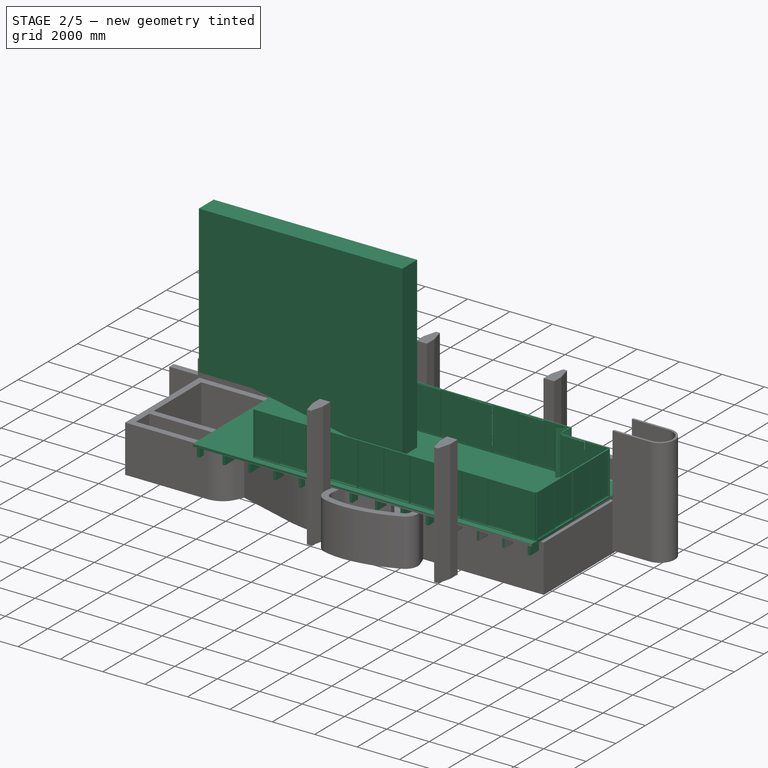
[diagram: stage 2 of 5 — iso view after this stage's code; geometry added in this stage tinted green]
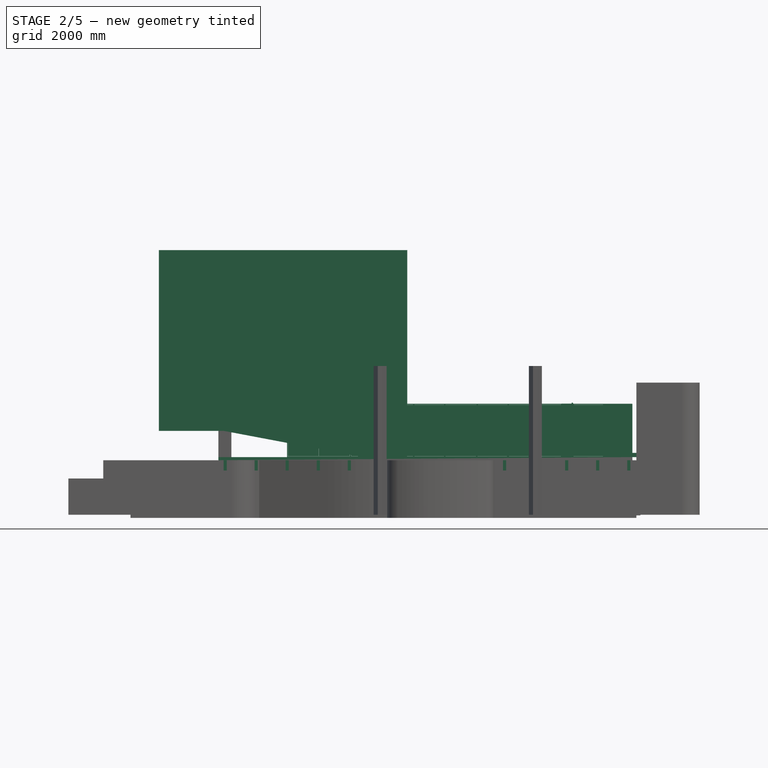
[diagram: stage 2 of 5 — front view after this stage's code; geometry added in this stage tinted green]
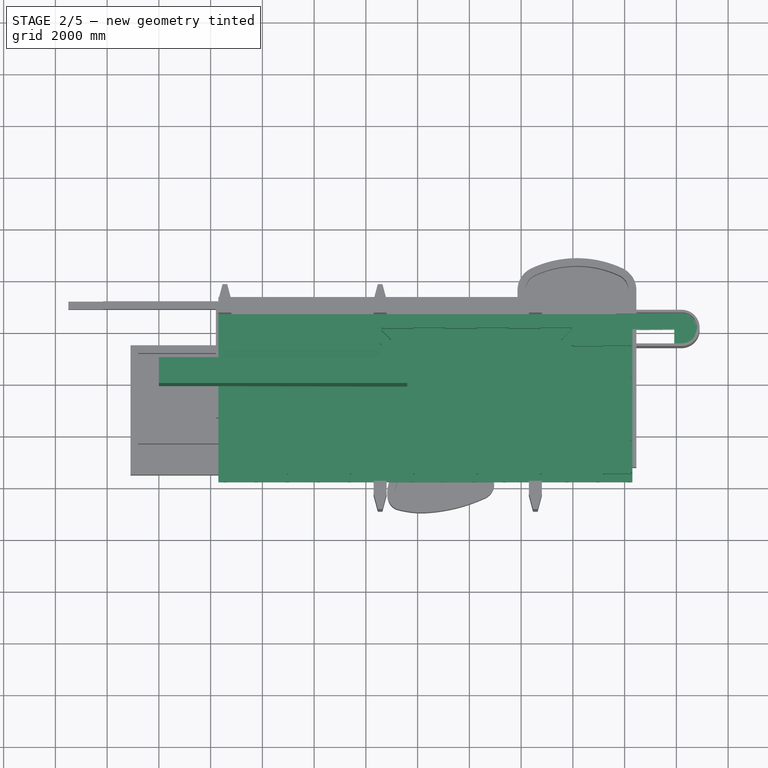
[diagram: stage 2 of 5 — top view after this stage's code; geometry added in this stage tinted green]
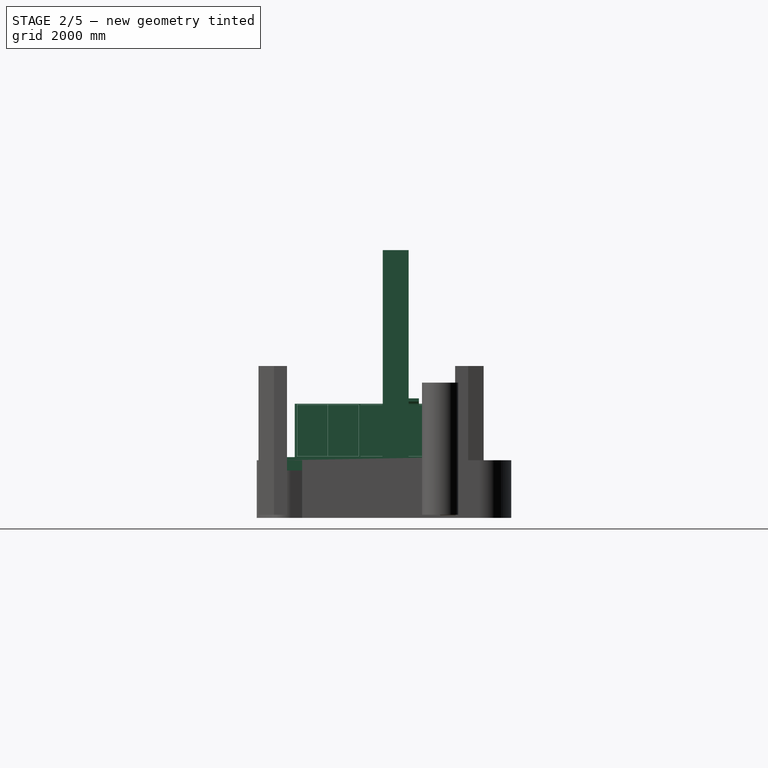
[diagram: stage 2 of 5 — right view after this stage's code; geometry added in this stage tinted green]
FEATURE [Sketcher::SketchObject] WallTrace
  ArcFitTolerance = 0
  FullyConstrained = false
  MakeInternals = false
  sketch-geometry (1):
    g0: LineSegment StartX=-19500 StartY=15500 StartZ=0 EndX=4600 EndY=15500 EndZ=0
FEATURE [Part::Part2DObjectPython] Rectangle001  # Draft 2D object (typed FeaturePython)
  Area = 1.04e+08
  ChamferSize = 0
  Columns = 1
  FilletRadius = 0
  Height = 6500
  Length = 16000
  MakeFace = true
  Placement = pos=(-13700,16200,2229.39) rot=(0,0,1;0rad)
  Rows = 1
FEATURE [Part::FeaturePython] Structure007  label="Main slab"  # Arch/BIM 118 (typed FeaturePython)
  Base = -> Rectangle001
  BaseMirror = false
  BaseOffsetX = 0
  BaseOffsetY = 0
  BasePerpendicularToTool = false
  BaseRotation = 0
  ComputedLength = 120
  FaceMaker = 0
  GlobalId = 1j1EVUKe94jv96B1oWNIGd
  Height = 120
  HorizontalArea = 1.04e+08
  IfcData = IfcUID=1j1EVUKe94jv96B1oWNIGd,+2 more (map truncated)
  IfcType = 118
  Length = 6500
  MoveBase = false
  MoveWithHost = false
  Nodes = (4) [(-13700,16200,2229.39),(2300,16200,2229.39),(2300,22700,2229.39),(-13700,22700,2229.39)]
  NodesOffset = 0
  Normal = (0,0,-1)
  PerimeterLength = 45000
  PredefinedType = 0
  ToolOffsetFirst = 0
  ToolOffsetLast = 0
  VerticalArea = 5.4e+06
  Width = 16000
FEATURE [Part::FeaturePython] Structure010  label="Beam"  # Arch/BIM 13 (typed FeaturePython)
  Base = -> Rectangle003
  BaseMirror = false
  BaseOffsetX = 0
  BaseOffsetY = 0
  BasePerpendicularToTool = false
  BaseRotation = 0
  ComputedLength = 6500
  FaceMaker = 0
  Height = 6500
  HorizontalArea = 780000
  IfcData = attributes={"GlobalId": {"name": "GlobalId", "type": "IfcGloballyUniqueId", "is_enum": false, "enum_values": []}, "Description": {"... (+484 chars omitted),+1 more (map truncated)
  IfcType = 13
  Length = 0
  MoveBase = false
  MoveWithHost = false
  Nodes = (2) [(-19440,15600,6400),(-19440,22100,6400)]
  NodesOffset = 0
  Normal = (0,1,0)
  PerimeterLength = 13240
  Placement = pos=(6000,600,-4490.61) rot=(0,0,1;0rad)
  PredefinedType = 0
  ToolOffsetFirst = 0
  ToolOffsetLast = 0
  VerticalArea = 5.296e+06
  Width = 100
FEATURE [Part::FeaturePython] Array001  label="Main beans"  # Draft array (typed FeaturePython)
  AlwaysSyncPlacement = false
  Angle = 360
  ArrayType = 0
  Axis = (0,0,1)
  Base = -> Structure010
  Center = (0,0,0)
  Count = 14
  ExpandArray = false
  Fuse = false
  IntervalAxis = (0,0,0)
  IntervalX = (1200,0,0)
  IntervalY = (0,100,0)
  IntervalZ = (0,0,100)
  NumberCircles = 3
  NumberPolar = 5
  NumberX = 14
  NumberY = 1
  NumberZ = 1
  PlacementList = 14 placements: arithmetic series from (6000,600,-4490.61) step (1200,0,0) to (21600,600,-4490.61)
  RadialDistance = 50
  ScaleList = (14) [(1,1,1),(1,1,1),(1,1,1),(1,1,1),(1,1,1),(1,1,1),(1,1,1),(1,1,1),(1,1,1),(1,1,1),(1,1,1),(1,1,1),(1,1,1),(1,1,1)]
  Symmetry = 1
  TangentialDistance = 25
FEATURE [Sketcher::SketchObject] Sketch007
  ArcFitTolerance = 0
  FullyConstrained = true
  MakeInternals = false
  Placement = pos=(-12800,16750,2229.39) rot=(1,0,0;1.5708rad)
  sketch-geometry (24):
    g0: LineSegment StartX=0 StartY=0 StartZ=0 EndX=2450 EndY=0 EndZ=0
    g1: LineSegment StartX=2450 StartY=0 StartZ=0 EndX=2450 EndY=2061.5 EndZ=0
    g2: LineSegment StartX=2450 StartY=2061.5 StartZ=0 EndX=0 EndY=2061.5 EndZ=0
    g3: LineSegment StartX=0 StartY=2061.5 StartZ=0 EndX=0 EndY=0 EndZ=0
    g4: LineSegment StartX=30 StartY=30 StartZ=0 EndX=2420 EndY=30 EndZ=0
    g5: LineSegment StartX=2420 StartY=30 StartZ=0 EndX=2420 EndY=2031.5 EndZ=0
    g6: LineSegment StartX=2420 StartY=2031.5 StartZ=0 EndX=30 EndY=2031.5 EndZ=0
    g7: LineSegment StartX=30 StartY=2031.5 StartZ=0 EndX=30 EndY=30 EndZ=0
    g8: LineSegment StartX=33 StartY=33 StartZ=0 EndX=1223.5 EndY=33 EndZ=0
    g9: LineSegment StartX=1223.5 StartY=33 StartZ=0 EndX=1223.5 EndY=2028.5 EndZ=0
    g10: LineSegment StartX=1223.5 StartY=2028.5 StartZ=0 EndX=33 EndY=2028.5 EndZ=0
    g11: LineSegment StartX=33 StartY=2028.5 StartZ=0 EndX=33 EndY=33 EndZ=0
    g12: LineSegment StartX=63 StartY=63 StartZ=0 EndX=1193.5 EndY=63 EndZ=0
    g13: LineSegment StartX=1193.5 StartY=63 StartZ=0 EndX=1193.5 EndY=1998.5 EndZ=0
    g14: LineSegment StartX=1193.5 StartY=1998.5 StartZ=0 EndX=63 EndY=1998.5 EndZ=0
    g15: LineSegment StartX=63 StartY=1998.5 StartZ=0 EndX=63 EndY=63 EndZ=0
    g16: LineSegment StartX=1226.5 StartY=33 StartZ=0 EndX=2417 EndY=33 EndZ=0
    g17: LineSegment StartX=2417 StartY=33 StartZ=0 EndX=2417 EndY=2028.5 EndZ=0
    g18: LineSegment StartX=2417 StartY=2028.5 StartZ=0 EndX=1226.5 EndY=2028.5 EndZ=0
    g19: LineSegment StartX=1226.5 StartY=2028.5 StartZ=0 EndX=1226.5 EndY=33 EndZ=0
    g20: LineSegment StartX=1256.5 StartY=63 StartZ=0 EndX=2387 EndY=63 EndZ=0
    g21: LineSegment StartX=2387 StartY=63 StartZ=0 EndX=2387 EndY=1998.5 EndZ=0
    g22: LineSegment StartX=2387 StartY=1998.5 StartZ=0 EndX=1256.5 EndY=1998.5 EndZ=0
    g23: LineSegment StartX=1256.5 StartY=1998.5 StartZ=0 EndX=1256.5 EndY=63 EndZ=0
  constraints (71):
    c: Coincident(g0,g1)
    c: Coincident(g1,g2)
    c: Coincident(g2,g3)
    c: Coincident(g3,g0)
    c: Horizontal(g0)
    c: Horizontal(g2)
    c: Vertical(g1)
    c: Vertical(g3)
    c: Coincident(g4,g5)
    c: Coincident(g5,g6)
    c: Coincident(g6,g7)
    c: Coincident(g7,g4)
    c: Horizontal(g4)
    c: Horizontal(g6)
    c: Vertical(g5)
    c: Vertical(g7)
    c: DistanceY(g1) = 2061.5  'Height'
    c: DistanceX(g0) = 2450  'Width'
    c: DistanceY(g6,g2) = 30  'Frame1'
    c: DistanceX(g2,g6) = 30  'Frame2'
    c: DistanceX(g4,g0) = 30  'Frame3'
    c: DistanceY(g0,g4) = 30  'Frame4'
    c: Coincident(g0,g-1)
    c: Coincident(g8,g9)
    c: Coincident(g9,g10)
    c: Coincident(g10,g11)
    c: Coincident(g11,g8)
    c: Horizontal(g8)
    c: Horizontal(g10)
    c: Vertical(g9)
    c: Vertical(g11)
    c: Coincident(g12,g13)
    c: Coincident(g13,g14)
    c: Coincident(g14,g15)
    c: Coincident(g15,g12)
    c: Horizontal(g12)
    c: Horizontal(g14)
    c: Vertical(g13)
    c: Vertical(g15)
    c: Coincident(g16,g17)
    c: Coincident(g17,g18)
    c: Coincident(g18,g19)
    c: Coincident(g19,g16)
    c: Horizontal(g16)
    c: Horizontal(g18)
    c: Vertical(g17)
    c: Vertical(g19)
    c: Coincident(g20,g21)
    c: Coincident(g21,g22)
    c: Coincident(g22,g23)
    c: Coincident(g23,g20)
    c: Horizontal(g20)
    c: Horizontal(g22)
    c: Vertical(g21)
    c: Vertical(g23)
    c: DistanceY(g8,g12) = 30  'Frame5'
    c: DistanceX(g8,g12) = 30  'Frame6'
    c: DistanceX(g21,g17) = 30  'Frame7'
    c: DistanceY(g21,g17) = 30  'Frame8'
    c: DistanceX(g16,g20) = 30  'Frame9'
    c: DistanceX(g14,g10) = 30  'Frame10'
    c: Equal(g22,g14)
    c: DistanceY(g8,g16) = 0
    c: DistanceY(g10,g18) = 0
    c: DistanceX(g4,g8) = 3
    c: DistanceY(g4,g8) = 3
    c: DistanceX(g6,g18) = -3
    c: DistanceY(g6,g18) = -3
    c: DistanceX(g9,g19) = 3
    c: PointOnObject(g13,g22)
    c: PointOnObject(g12,g20)
FEATURE [Part::FeaturePython] Window020  label="Sliding window 230x220"  # Arch/BIM 170 (typed FeaturePython)
  Area = 5050675
  Base = -> Sketch007
  Frame = 30
  GlobalId = 2spZjC9tH939zs6Dn_UMJM
  Height = 2061.5
  HoleDepth = 0
  HoleWire = 0
  HorizontalArea = 0
  IfcData = IfcUID=2spZjC9tH939zs6Dn_UMJM,+2 more (map truncated)
  IfcType = 170
  LouvreSpacing = 0
  LouvreWidth = 0
  MoveBase = false
  MoveWithHost = true
  Normal = (0,1,-2e-16)
  Offset = 30
  Opening = 0
  OverallHeight = 2061.5
  OverallWidth = 2450
  PartitioningType = 0
  PerimeterLength = 0
  Placement = pos=(-700,-280,0) rot=(0,0,1;0rad)
  PredefinedType = 0
  Preset = 5
  SymbolElevation = false
  SymbolPlan = false
  VerticalArea = 0
  Width = 2450
  WindowParts = OuterFrame | Frame | Wire0,Wire1 | 30.0+V | 0.0+V | LeftFrame | Frame | Wire2,Wire3 | 0.00+V | 30.0+V | LeftGlass | Glass panel | Wire3 | 3.0 | 45.0+V | RightFrame | Frame | Wire4,Wire5 | 0.00+V | 60.0+V | RightGlass | Glass panel | Wire5 | 3.0 | 75.0+V
  expr: OverallHeight = .Height.Value
  expr: OverallWidth = .Width.Value
FEATURE [Part::FeaturePython] Window021  label="Sliding window 230x220"  # Arch/BIM 170 (typed FeaturePython)
  Area = 5050675
  CloneOf = -> Window020
  Frame = 0
  GlobalId = 2JYIyLsOL2PBM$Mvbsp0Q9
  Height = 2061.5
  HoleDepth = 0
  HoleWire = 0
  HorizontalArea = 0
  IfcData = IfcUID=2JYIyLsOL2PBM$Mvbsp0Q9,+2 more (map truncated)
  IfcType = 170
  LouvreSpacing = 0
  LouvreWidth = 0
  MoveBase = false
  MoveWithHost = true
  Normal = (0,0,0)
  Opening = 0
  OverallHeight = 2061.5
  OverallWidth = 2450
  PartitioningType = 0
  PerimeterLength = 0
  Placement = pos=(1750,-280,0) rot=(0,0,1;0rad)
  PredefinedType = 0
  Preset = 0
  SymbolElevation = false
  SymbolPlan = false
  VerticalArea = 0
  Width = 2450
  expr: OverallHeight = .Height.Value
  expr: OverallWidth = .Width.Value
FEATURE [Part::FeaturePython] Window022  label="Sliding window 230x220"  # Arch/BIM 170 (typed FeaturePython)
  Area = 5050675
  CloneOf = -> Window020
  Frame = 0
  GlobalId = 18ce5m8KzC3QjpkBZdWb5w
  Height = 2061.5
  HoleDepth = 0
  HoleWire = 0
  HorizontalArea = 0
  IfcData = IfcUID=18ce5m8KzC3QjpkBZdWb5w,+2 more (map truncated)
  IfcType = 170
  LouvreSpacing = 0
  LouvreWidth = 0
  MoveBase = false
  MoveWithHost = true
  Normal = (0,0,0)
  Opening = 0
  OverallHeight = 2061.5
  OverallWidth = 2450
  PartitioningType = 0
  PerimeterLength = 0
  Placement = pos=(4200,-280,0) rot=(0,0,1;0rad)
  PredefinedType = 0
  Preset = 0
  SymbolElevation = false
  SymbolPlan = false
  VerticalArea = 0
  Width = 2450
  expr: OverallHeight = .Height.Value
  expr: OverallWidth = .Width.Value
FEATURE [Part::FeaturePython] Window023  label="Sliding window 230x220"  # Arch/BIM 170 (typed FeaturePython)
  Area = 5050675
  CloneOf = -> Window020
  Frame = 0
  GlobalId = 0MCHIRi_57QfYMwRR45xxG
  Height = 2061.5
  HoleDepth = 0
  HoleWire = 0
  HorizontalArea = 0
  IfcData = IfcUID=0MCHIRi_57QfYMwRR45xxG,+2 more (map truncated)
  IfcType = 170
  LouvreSpacing = 0
  LouvreWidth = 0
  MoveBase = false
  MoveWithHost = true
  Normal = (0,0,0)
  Opening = 0
  OverallHeight = 2061.5
  OverallWidth = 2450
  PartitioningType = 0
  PerimeterLength = 0
  Placement = pos=(6650,-280,0) rot=(0,0,1;0rad)
  PredefinedType = 0
  Preset = 0
  SymbolElevation = false
  SymbolPlan = false
  VerticalArea = 0
  Width = 2450
  expr: OverallHeight = .Height.Value
  expr: OverallWidth = .Width.Value
FEATURE [Part::FeaturePython] Window024  label="Sliding window 230x220"  # Arch/BIM 170 (typed FeaturePython)
  Area = 5050675
  CloneOf = -> Window020
  Frame = 0
  GlobalId = 03o06pzBL6r8a_3x6jsUQF
  Height = 2061.5
  HoleDepth = 0
  HoleWire = 0
  HorizontalArea = 0
  IfcData = IfcUID=03o06pzBL6r8a_3x6jsUQF,+2 more (map truncated)
  IfcType = 170
  LouvreSpacing = 0
  LouvreWidth = 0
  MoveBase = false
  MoveWithHost = true
  Normal = (0,0,0)
  Opening = 0
  OverallHeight = 2061.5
  OverallWidth = 2450
  PartitioningType = 0
  PerimeterLength = 0
  Placement = pos=(9100,-280,0) rot=(0,0,1;0rad)
  PredefinedType = 0
  Preset = 0
  SymbolElevation = false
  SymbolPlan = false
  VerticalArea = 0
  Width = 2450
  expr: OverallHeight = .Height.Value
  expr: OverallWidth = .Width.Value
FEATURE [Part::FeaturePython] Window025  label="Sliding window 230x220"  # Arch/BIM 170 (typed FeaturePython)
  Area = 5050675
  CloneOf = -> Window020
  Frame = 0
  GlobalId = 1GjnZwY_f3YebKuRL1zGji
  Height = 2061.5
  HoleDepth = 0
  HoleWire = 0
  HorizontalArea = 0
  IfcData = IfcUID=1GjnZwY_f3YebKuRL1zGji,+2 more (map truncated)
  IfcType = 170
  LouvreSpacing = 0
  LouvreWidth = 0
  MoveBase = false
  MoveWithHost = true
  Normal = (0,0,0)
  Opening = 0
  OverallHeight = 2061.5
  OverallWidth = 2450
  PartitioningType = 0
  PerimeterLength = 0
  Placement = pos=(11550,-280,0) rot=(0,0,1;0rad)
  PredefinedType = 0
  Preset = 0
  SymbolElevation = false
  SymbolPlan = false
  VerticalArea = 0
  Width = 2450
  expr: OverallHeight = .Height.Value
  expr: OverallWidth = .Width.Value
FEATURE [Sketcher::SketchObject] Sketch008
  ArcFitTolerance = 0
  FullyConstrained = true
  MakeInternals = false
  Placement = pos=(1500,30250,2229.39) rot=(1,0,0;1.5708rad)
  sketch-geometry (8):
    g0: LineSegment StartX=0 StartY=0 StartZ=0 EndX=1040 EndY=0 EndZ=0
    g1: LineSegment StartX=1040 StartY=0 StartZ=0 EndX=1040 EndY=2061.5 EndZ=0
    g2: LineSegment StartX=1040 StartY=2061.5 StartZ=0 EndX=0 EndY=2061.5 EndZ=0
    g3: LineSegment StartX=0 StartY=2061.5 StartZ=0 EndX=0 EndY=0 EndZ=0
    g4: LineSegment StartX=30 StartY=30 StartZ=0 EndX=1010 EndY=30 EndZ=0
    g5: LineSegment StartX=1010 StartY=30 StartZ=0 EndX=1010 EndY=2031.5 EndZ=0
    g6: LineSegment StartX=1010 StartY=2031.5 StartZ=0 EndX=30 EndY=2031.5 EndZ=0
    g7: LineSegment StartX=30 StartY=2031.5 StartZ=0 EndX=30 EndY=30 EndZ=0
  constraints (23):
    c: Coincident(g0,g1)
    c: Coincident(g1,g2)
    c: Coincident(g2,g3)
    c: Coincident(g3,g0)
    c: Horizontal(g0)
    c: Horizontal(g2)
    c: Vertical(g1)
    c: Vertical(g3)
    c: Coincident(g4,g5)
    c: Coincident(g5,g6)
    c: Coincident(g6,g7)
    c: Coincident(g7,g4)
    c: Horizontal(g4)
    c: Horizontal(g6)
    c: Vertical(g5)
    c: Vertical(g7)
    c: DistanceY(g1) = 2061.5  'Height'
    c: DistanceX(g0) = 1040  'Width'
    c: DistanceY(g6,g2) = 30  'Frame1'
    c: DistanceX(g2,g6) = 30  'Frame2'
    c: DistanceX(g4,g0) = 30  'Frame3'
    c: DistanceY(g0,g4) = 30  'Frame4'
    c: Coincident(g0,g-1)
FEATURE [Part::FeaturePython] Window026  label="Fixed window 160x210"  # Arch/BIM 170 (typed FeaturePython)
  Area = 2143960
  Base = -> Sketch008
  Frame = 30
  GlobalId = 0eKtYnb1j889JAJ43Ifj5z
  Height = 2061.5
  HoleDepth = 0
  HoleWire = 0
  HorizontalArea = 0
  IfcData = IfcUID=0eKtYnb1j889JAJ43Ifj5z,+2 more (map truncated)
  IfcType = 170
  LouvreSpacing = 0
  LouvreWidth = 0
  MoveBase = false
  MoveWithHost = true
  Normal = (0,1,-2e-16)
  Offset = 30
  Opening = 0
  OverallHeight = 2061.5
  OverallWidth = 1040
  PartitioningType = 0
  PerimeterLength = 0
  Placement = pos=(-300,-13780,0) rot=(0,0,1;0rad)
  PredefinedType = 0
  Preset = 1
  SymbolElevation = false
  SymbolPlan = false
  VerticalArea = 0
  Width = 1040
  WindowParts = OuterFrame | Frame | Wire0,Wire1 | 30.0+V | 0.0+V | Glass | Glass panel | Wire1 | 3.0 | 15.0+V
  expr: OverallHeight = .Height.Value
  expr: OverallWidth = .Width.Value
FEATURE [Part::FeaturePython] Window027  label="Sliding window 230x220"  # Arch/BIM 170 (typed FeaturePython)
  Area = 5050675
  CloneOf = -> Window020
  Frame = 0
  GlobalId = 1n7V7fL2f4NugabSlfdtJc
  Height = 2061.5
  HoleDepth = 0
  HoleWire = 0
  HorizontalArea = 0
  IfcData = IfcUID=1n7V7fL2f4NugabSlfdtJc,+2 more (map truncated)
  IfcType = 170
  LouvreSpacing = 0
  LouvreWidth = 0
  MoveBase = false
  MoveWithHost = true
  Normal = (0,0,0)
  Opening = 0
  OverallHeight = 2061.5
  OverallWidth = 2450
  PartitioningType = 0
  PerimeterLength = 0
  Placement = pos=(-15300,38990,0) rot=(0,0,1;3.14159rad)
  PredefinedType = 0
  Preset = 0
  SymbolElevation = false
  SymbolPlan = false
  VerticalArea = 0
  Width = 2450
  expr: OverallHeight = .Height.Value
  expr: OverallWidth = .Width.Value
FEATURE [Part::FeaturePython] Window028  label="Sliding window 230x220"  # Arch/BIM 170 (typed FeaturePython)
  Area = 5050675
  CloneOf = -> Window020
  Frame = 0
  GlobalId = 0$GY96xbb8mQ86$mz_JBpe
  Height = 2061.5
  HoleDepth = 0
  HoleWire = 0
  HorizontalArea = 0
  IfcData = IfcUID=0$GY96xbb8mQ86$mz_JBpe,+2 more (map truncated)
  IfcType = 170
  LouvreSpacing = 0
  LouvreWidth = 0
  MoveBase = false
  MoveWithHost = true
  Normal = (0,0,0)
  Opening = 0
  OverallHeight = 2061.5
  OverallWidth = 2450
  PartitioningType = 0
  PerimeterLength = 0
  Placement = pos=(-17750,38990,0) rot=(0,0,1;3.14159rad)
  PredefinedType = 0
  Preset = 0
  SymbolElevation = false
  SymbolPlan = false
  VerticalArea = 0
  Width = 2450
  expr: OverallHeight = .Height.Value
  expr: OverallWidth = .Width.Value
FEATURE [Part::FeaturePython] Window029  label="Sliding window 230x220"  # Arch/BIM 170 (typed FeaturePython)
  Area = 5050675
  CloneOf = -> Window020
  Frame = 0
  GlobalId = 30523timf9yAPYiaFOfdiX
  Height = 2061.5
  HoleDepth = 0
  HoleWire = 0
  HorizontalArea = 0
  IfcData = IfcUID=30523timf9yAPYiaFOfdiX,+2 more (map truncated)
  IfcType = 170
  LouvreSpacing = 0
  LouvreWidth = 0
  MoveBase = false
  MoveWithHost = true
  Normal = (0,0,0)
  Opening = 0
  OverallHeight = 2061.5
  OverallWidth = 2450
  PartitioningType = 0
  PerimeterLength = 0
  Placement = pos=(-12850,38990,0) rot=(0,0,1;3.14159rad)
  PredefinedType = 0
  Preset = 0
  SymbolElevation = false
  SymbolPlan = false
  VerticalArea = 0
  Width = 2450
  expr: OverallHeight = .Height.Value
  expr: OverallWidth = .Width.Value
FEATURE [Part::FeaturePython] Window031  label="Sliding window 230x220"  # Arch/BIM 170 (typed FeaturePython)
  Area = 5050675
  CloneOf = -> Window020
  Frame = 0
  GlobalId = 12UYIvAdfFiubuyZWTqqAv
  Height = 2061.5
  HoleDepth = 0
  HoleWire = 0
  HorizontalArea = 0
  IfcData = IfcUID=12UYIvAdfFiubuyZWTqqAv,+2 more (map truncated)
  IfcType = 170
  LouvreSpacing = 0
  LouvreWidth = 0
  MoveBase = false
  MoveWithHost = true
  Normal = (0,0,0)
  Opening = 0
  OverallHeight = 2061.5
  OverallWidth = 2450
  PartitioningType = 0
  PerimeterLength = 0
  Placement = pos=(19080,29360,0) rot=(0,0,1;1.5708rad)
  PredefinedType = 0
  Preset = 0
  SymbolElevation = false
  SymbolPlan = false
  VerticalArea = 0
  Width = 2450
  expr: OverallHeight = .Height.Value
  expr: OverallWidth = .Width.Value
FEATURE [Part::FeaturePython] Window032  label="Sliding window 230x220"  # Arch/BIM 170 (typed FeaturePython)
  Area = 5050675
  CloneOf = -> Window020
  Frame = 0
  GlobalId = 3AbMGQWOr6HxLV7GcOXkoK
  Height = 2061.5
  HoleDepth = 0
  HoleWire = 0
  HorizontalArea = 0
  IfcData = IfcUID=3AbMGQWOr6HxLV7GcOXkoK,+2 more (map truncated)
  IfcType = 170
  LouvreSpacing = 0
  LouvreWidth = 0
  MoveBase = false
  MoveWithHost = true
  Normal = (0,0,0)
  Opening = 0
  OverallHeight = 2061.5
  OverallWidth = 2450
  PartitioningType = 0
  PerimeterLength = 0
  Placement = pos=(19080,31810,0) rot=(0,0,1;1.5708rad)
  PredefinedType = 0
  Preset = 0
  SymbolElevation = false
  SymbolPlan = false
  VerticalArea = 0
  Width = 2450
  expr: OverallHeight = .Height.Value
  expr: OverallWidth = .Width.Value
FEATURE [Sketcher::SketchObject] Sketch009
  ArcFitTolerance = 0
  FullyConstrained = true
  MakeInternals = false
  Placement = pos=(-12800,16750,2229.39) rot=(1,0,0;1.5708rad)
  sketch-geometry (24):
    g0: LineSegment StartX=0 StartY=0 StartZ=0 EndX=2230 EndY=0 EndZ=0
    g1: LineSegment StartX=2230 StartY=0 StartZ=0 EndX=2230 EndY=2061.5 EndZ=0
    g2: LineSegment StartX=2230 StartY=2061.5 StartZ=0 EndX=0 EndY=2061.5 EndZ=0
    g3: LineSegment StartX=0 StartY=2061.5 StartZ=0 EndX=0 EndY=0 EndZ=0
    g4: LineSegment StartX=30 StartY=30 StartZ=0 EndX=2200 EndY=30 EndZ=0
    g5: LineSegment StartX=2200 StartY=30 StartZ=0 EndX=2200 EndY=2031.5 EndZ=0
    g6: LineSegment StartX=2200 StartY=2031.5 StartZ=0 EndX=30 EndY=2031.5 EndZ=0
    g7: LineSegment StartX=30 StartY=2031.5 StartZ=0 EndX=30 EndY=30 EndZ=0
    g8: LineSegment StartX=33 StartY=33 StartZ=0 EndX=1113.5 EndY=33 EndZ=0
    g9: LineSegment StartX=1113.5 StartY=33 StartZ=0 EndX=1113.5 EndY=2028.5 EndZ=0
    g10: LineSegment StartX=1113.5 StartY=2028.5 StartZ=0 EndX=33 EndY=2028.5 EndZ=0
    g11: LineSegment StartX=33 StartY=2028.5 StartZ=0 EndX=33 EndY=33 EndZ=0
    g12: LineSegment StartX=63 StartY=63 StartZ=0 EndX=1083.5 EndY=63 EndZ=0
    g13: LineSegment StartX=1083.5 StartY=63 StartZ=0 EndX=1083.5 EndY=1998.5 EndZ=0
    g14: LineSegment StartX=1083.5 StartY=1998.5 StartZ=0 EndX=63 EndY=1998.5 EndZ=0
    g15: LineSegment StartX=63 StartY=1998.5 StartZ=0 EndX=63 EndY=63 EndZ=0
    g16: LineSegment StartX=1116.5 StartY=33 StartZ=0 EndX=2197 EndY=33 EndZ=0
    g17: LineSegment StartX=2197 StartY=33 StartZ=0 EndX=2197 EndY=2028.5 EndZ=0
    g18: LineSegment StartX=2197 StartY=2028.5 StartZ=0 EndX=1116.5 EndY=2028.5 EndZ=0
    g19: LineSegment StartX=1116.5 StartY=2028.5 StartZ=0 EndX=1116.5 EndY=33 EndZ=0
    g20: LineSegment StartX=1146.5 StartY=63 StartZ=0 EndX=2167 EndY=63 EndZ=0
    g21: LineSegment StartX=2167 StartY=63 StartZ=0 EndX=2167 EndY=1998.5 EndZ=0
    g22: LineSegment StartX=2167 StartY=1998.5 StartZ=0 EndX=1146.5 EndY=1998.5 EndZ=0
    g23: LineSegment StartX=1146.5 StartY=1998.5 StartZ=0 EndX=1146.5 EndY=63 EndZ=0
  constraints (71):
    c: Coincident(g0,g1)
    c: Coincident(g1,g2)
    c: Coincident(g2,g3)
    c: Coincident(g3,g0)
    c: Horizontal(g0)
    c: Horizontal(g2)
    c: Vertical(g1)
    c: Vertical(g3)
    c: Coincident(g4,g5)
    c: Coincident(g5,g6)
    c: Coincident(g6,g7)
    c: Coincident(g7,g4)
    c: Horizontal(g4)
    c: Horizontal(g6)
    c: Vertical(g5)
    c: Vertical(g7)
    c: DistanceY(g1) = 2061.5  'Height'
    c: DistanceX(g0) = 2230  'Width'
    c: DistanceY(g6,g2) = 30  'Frame1'
    c: DistanceX(g2,g6) = 30  'Frame2'
    c: DistanceX(g4,g0) = 30  'Frame3'
    c: DistanceY(g0,g4) = 30  'Frame4'
    c: Coincident(g0,g-1)
    c: Coincident(g8,g9)
    c: Coincident(g9,g10)
    c: Coincident(g10,g11)
    c: Coincident(g11,g8)
    c: Horizontal(g8)
    c: Horizontal(g10)
    c: Vertical(g9)
    c: Vertical(g11)
    c: Coincident(g12,g13)
    c: Coincident(g13,g14)
    c: Coincident(g14,g15)
    c: Coincident(g15,g12)
    c: Horizontal(g12)
    c: Horizontal(g14)
    c: Vertical(g13)
    c: Vertical(g15)
    c: Coincident(g16,g17)
    c: Coincident(g17,g18)
    c: Coincident(g18,g19)
    c: Coincident(g19,g16)
    c: Horizontal(g16)
    c: Horizontal(g18)
    c: Vertical(g17)
    c: Vertical(g19)
    c: Coincident(g20,g21)
    c: Coincident(g21,g22)
    c: Coincident(g22,g23)
    c: Coincident(g23,g20)
    c: Horizontal(g20)
    c: Horizontal(g22)
    c: Vertical(g21)
    c: Vertical(g23)
    c: DistanceY(g8,g12) = 30  'Frame5'
    c: DistanceX(g8,g12) = 30  'Frame6'
    c: DistanceX(g21,g17) = 30  'Frame7'
    c: DistanceY(g21,g17) = 30  'Frame8'
    c: DistanceX(g16,g20) = 30  'Frame9'
    c: DistanceX(g14,g10) = 30  'Frame10'
    c: Equal(g22,g14)
    c: DistanceY(g8,g16) = 0
    c: DistanceY(g10,g18) = 0
    c: DistanceX(g4,g8) = 3
    c: DistanceY(g4,g8) = 3
    c: DistanceX(g6,g18) = -3
    c: DistanceY(g6,g18) = -3
    c: DistanceX(g9,g19) = 3
    c: PointOnObject(g13,g22)
    c: PointOnObject(g12,g20)
FEATURE [Part::FeaturePython] Window033  label="Sliding window 230x220"  # Arch/BIM 170 (typed FeaturePython)
  Area = 4597145
  Base = -> Sketch009
  Frame = 30
  GlobalId = 3Sa6ssbJf2RODYPMkzXiEj
  Height = 2061.5
  HoleDepth = 0
  HoleWire = 0
  HorizontalArea = 0
  IfcData = IfcUID=3Sa6ssbJf2RODYPMkzXiEj,+2 more (map truncated)
  IfcType = 170
  LouvreSpacing = 0
  LouvreWidth = 0
  MoveBase = false
  MoveWithHost = true
  Normal = (0,1,-2e-16)
  Offset = 30
  Opening = 0
  OverallHeight = 2061.5
  OverallWidth = 2230
  PartitioningType = 0
  PerimeterLength = 0
  Placement = pos=(-10560,38300,0) rot=(0,0,1;3.14159rad)
  PredefinedType = 0
  Preset = 5
  SymbolElevation = false
  SymbolPlan = false
  VerticalArea = 0
  Width = 2230
  WindowParts = OuterFrame | Frame | Wire0,Wire1 | 30.0+V | 0.0+V | LeftFrame | Frame | Wire2,Wire3 | 0.00+V | 30.0+V | LeftGlass | Glass panel | Wire3 | 3.0 | 45.0+V | RightFrame | Frame | Wire4,Wire5 | 0.00+V | 60.0+V | RightGlass | Glass panel | Wire5 | 3.0 | 75.0+V
  expr: OverallHeight = .Height.Value
  expr: OverallWidth = .Width.Value
FEATURE [Part::Part2DObjectPython] Rectangle024  # Draft 2D object (typed FeaturePython)
  Area = 3600
  ChamferSize = 0
  Columns = 1
  FilletRadius = 0
  Height = 60
  Length = 60
  MakeFace = true
  Placement = pos=(2240,16500,2229.39) rot=(0,0,1;0rad)
  Rows = 1
FEATURE [Part::Extrusion] Extrude011  label="Corner profile"
  Base = -> Rectangle024
  Dir = (0,0,1)
  DirMode = 2
  FaceMakerClass = Part::FaceMakerBullseye
  FaceMakerMode = 3
  LengthFwd = 2061.5
  LengthRev = 0
  Solid = false
  Symmetric = false
FEATURE [Part::FeaturePython] Clone012  label="Corner profile"  # Draft clone (typed FeaturePython)
  AttacherType = Attacher::AttachEngine3D
  Fuse = false
  Objects = -> [Extrude011]
  Placement = pos=(-1.819e-12,4960,0) rot=(0,0,1;0rad)
  Scale = (1,1,1)
FEATURE [Part::FeaturePython] Clone013  label="Corner profile"  # Draft clone (typed FeaturePython)
  AttacherType = Attacher::AttachEngine3D
  Fuse = false
  Objects = -> [Clone012]
  Placement = pos=(-2290,5650,0) rot=(0,0,1;0rad)
  Scale = (1,1,1)
FEATURE [Part::FeaturePython] Clone014  label="Corner profile"  # Draft clone (typed FeaturePython)
  AttacherType = Attacher::AttachEngine3D
  Fuse = false
  Objects = -> [Clone013]
  Placement = pos=(-2290,4960,0) rot=(0,0,1;0rad)
  Scale = (1,1,1)
FEATURE [Sketcher::SketchObject] Sketch010
  ArcFitTolerance = 0
  FullyConstrained = true
  MakeInternals = false
  Placement = pos=(-41.6938,22901.4,2229.39) rot=(1,0,0;1.5708rad)
  sketch-geometry (16):
    g0: LineSegment StartX=0 StartY=0 StartZ=0 EndX=630 EndY=0 EndZ=0
    g1: LineSegment StartX=630 StartY=0 StartZ=0 EndX=630 EndY=2100 EndZ=0
    g2: LineSegment StartX=630 StartY=2100 StartZ=0 EndX=0 EndY=2100 EndZ=0
    g3: LineSegment StartX=0 StartY=2100 StartZ=0 EndX=0 EndY=0 EndZ=0
    g4: LineSegment StartX=30 StartY=0 StartZ=0 EndX=600 EndY=0 EndZ=0
    g5: LineSegment StartX=600 StartY=0 StartZ=0 EndX=600 EndY=2070 EndZ=0
    g6: LineSegment StartX=600 StartY=2070 StartZ=0 EndX=30 EndY=2070 EndZ=0
    g7: LineSegment StartX=30 StartY=2070 StartZ=0 EndX=30 EndY=0 EndZ=0
    g8: LineSegment StartX=33 StartY=3 StartZ=0 EndX=597 EndY=3 EndZ=0
    g9: LineSegment StartX=597 StartY=3 StartZ=0 EndX=597 EndY=2067 EndZ=0
    g10: LineSegment StartX=597 StartY=2067 StartZ=0 EndX=33 EndY=2067 EndZ=0
    g11: LineSegment StartX=33 StartY=2067 StartZ=0 EndX=33 EndY=3 EndZ=0
    g12: LineSegment StartX=63 StartY=33 StartZ=0 EndX=567 EndY=33 EndZ=0
    g13: LineSegment StartX=567 StartY=33 StartZ=0 EndX=567 EndY=2037 EndZ=0
    g14: LineSegment StartX=567 StartY=2037 StartZ=0 EndX=63 EndY=2037 EndZ=0
    g15: LineSegment StartX=63 StartY=2037 StartZ=0 EndX=63 EndY=33 EndZ=0
  constraints (47):
    c: Coincident(g0,g1)
    c: Coincident(g1,g2)
    c: Coincident(g2,g3)
    c: Coincident(g3,g0)
    c: Horizontal(g0)
    c: Horizontal(g2)
    c: Vertical(g1)
    c: Vertical(g3)
    c: Coincident(g4,g5)
    c: Coincident(g5,g6)
    c: Coincident(g6,g7)
    c: Coincident(g7,g4)
    c: Horizontal(g4)
    c: Horizontal(g6)
    c: Vertical(g5)
    c: Vertical(g7)
    c: DistanceY(g1) = 2100  'Height'
    c: DistanceX(g0) = 630  'Width'
    c: DistanceY(g6,g2) = 30  'Frame1'
    c: DistanceX(g2,g6) = 30  'Frame2'
    c: DistanceX(g4,g0) = 30  'Frame3'
    c: DistanceY(g0,g4) = 0
    c: Coincident(g0,g-1)
    c: Coincident(g8,g9)
    c: Coincident(g9,g10)
    c: Coincident(g10,g11)
    c: Coincident(g11,g8)
    c: Horizontal(g8)
    c: Horizontal(g10)
    c: Vertical(g9)
    c: Vertical(g11)
    c: Coincident(g12,g13)
    c: Coincident(g13,g14)
    c: Coincident(g14,g15)
    c: Coincident(g15,g12)
    c: Horizontal(g12)
    c: Horizontal(g14)
    c: Vertical(g13)
    c: Vertical(g15)
    c: DistanceX(g8,g12) = 30  'Frame5'
    c: DistanceY(g8,g12) = 30  'Frame6'
    c: DistanceX(g14,g10) = 30  'Frame8'
    c: DistanceY(g14,g10) = 30  'Frame7'
    c: DistanceX(g4,g8) = 3
    c: DistanceY(g4,g8) = 3
    c: DistanceX(g10,g6) = 3
    c: DistanceY(g10,g6) = 3
FEATURE [Part::FeaturePython] Window034  label="Glass window 63x210"  # Arch/BIM 41 (typed FeaturePython)
  Area = 1323000
  Base = -> Sketch010
  Frame = 30
  GlobalId = 1soJouWj91mQ2vydq_6MgH
  Height = 2100
  HoleDepth = 0
  HoleWire = 0
  HorizontalArea = 0
  IfcData = IfcUID=1soJouWj91mQ2vydq_6MgH,+2 more (map truncated)
  IfcType = 41
  LouvreSpacing = 0
  LouvreWidth = 0
  MoveBase = false
  MoveWithHost = true
  Normal = (0,1,-2e-16)
  Offset = 30
  Opening = 50
  OperationType = 0
  OverallHeight = 2100
  OverallWidth = 630
  PerimeterLength = 0
  Placement = pos=(22941.4,21561.7,0) rot=(0,0,1;1.5708rad)
  PredefinedType = 0
  Preset = 7
  SymbolElevation = false
  SymbolPlan = true
  VerticalArea = 0
  Width = 630
  WindowParts = OuterFrame | Frame | Wire0,Wire1 | 30.0+V | 0.0+V | InnerFrame | Frame | Wire2,Wire3,Edge6,Mode2 | 0.00+V | 30.0+V | InnerGlass | Glass panel | Wire3 | 3.0 | 45.0+V
  expr: OverallHeight = .Height.Value
  expr: OverallWidth = .Width.Value
FEATURE [Part::FeaturePython] Clone015  label="Corner profile"  # Draft clone (typed FeaturePython)
  AttacherType = Attacher::AttachEngine3D
  Fuse = false
  Objects = -> [Clone013]
  Placement = pos=(-9700,5650,0) rot=(0,0,1;0rad)
  Scale = (1,1,1)
FEATURE [Part::FeaturePython] Window035  label="Glass window 63x210"  # Arch/BIM 41 (typed FeaturePython)
  Area = 1323000
  Base = -> Sketch010
  Frame = 30
  GlobalId = 0GJL0kNg10GOXS4Q65q8b4
  Height = 2100
  HoleDepth = 0
  HoleWire = 0
  HorizontalArea = 0
  IfcData = IfcUID=0GJL0kNg10GOXS4Q65q8b4,+2 more (map truncated)
  IfcType = 41
  LouvreSpacing = 0
  LouvreWidth = 0
  MoveBase = false
  MoveWithHost = true
  Normal = (0,1,-2e-16)
  Offset = 30
  Opening = 50
  OperationType = 0
  OverallHeight = 2100
  OverallWidth = 630
  PerimeterLength = 0
  Placement = pos=(15531.4,21561.7,0) rot=(0,0,1;1.5708rad)
  PredefinedType = 0
  Preset = 7
  SymbolElevation = false
  SymbolPlan = true
  VerticalArea = 0
  Width = 630
  WindowParts = OuterFrame | Frame | Wire0,Wire1 | 30.0+V | 0.0+V | InnerFrame | Frame | Wire2,Wire3,Edge6,Mode1 | 0.00+V | 30.0+V | InnerGlass | Glass panel | Wire3 | 3.0 | 45.0+V
  expr: OverallHeight = .Height.Value
  expr: OverallWidth = .Width.Value
FEATURE [Part::Part2DObjectPython] Line017  # Draft 2D object (typed FeaturePython)
  Area = 0
  ChamferSize = 0
  Closed = false
  End = (-13500,21300,3364.69)
  FilletRadius = 0
  Length = 6106.47
  MakeFace = true
  Placement = pos=(-7500,21300,2229.39) rot=(1,0,0;1.5708rad)
  Points = (2) [(0,0,0),(-6000,1135.31,0)]
  Start = (-7500,21300,2229.39)
  Subdivisions = 0
FEATURE [Part::Part2DObjectPython] Line018  # Draft 2D object (typed FeaturePython)
  Area = 0
  ChamferSize = 0
  Closed = false
  End = (-7500,21300,4500)
  FilletRadius = 0
  Length = 6106.47
  MakeFace = true
  Placement = pos=(-13500,21300,3364.69) rot=(1,0,0;1.5708rad)
  Points = (2) [(0,0,0),(6000,1135.31,0)]
  Start = (-13500,21300,3364.69)
  Subdivisions = 0
FEATURE [Part::Extrusion] Extrude013  label="Extrude024"
  Base = -> Line018
  Dir = (0,-1,2e-16)
  DirMode = 2
  FaceMakerClass = Part::FaceMakerBullseye
  FaceMakerMode = 3
  LengthFwd = 700
  LengthRev = 0
  Solid = false
  Symmetric = false
FEATURE [Part::Extrusion] Extrude014  label="Extrude025"
  Base = -> Line017
  Dir = (0,-1,2e-16)
  DirMode = 2
  FaceMakerClass = Part::FaceMakerBullseye
  FaceMakerMode = 3
  LengthFwd = 700
  LengthRev = 0
  Placement = pos=(0,-700,0) rot=(0,0,1;0rad)
  Solid = false
  Symmetric = false
FEATURE [Part::Extrusion] Extrude015  label="Extrude026"
  Base = -> Extrude013
  Dir = (0,0,-1)
  DirMode = 0
  FaceMakerClass = Part::FaceMakerBullseye
  FaceMakerMode = 3
  LengthFwd = 120
  LengthRev = 0
  Solid = false
  Symmetric = false
FEATURE [Part::Extrusion] Extrude016  label="Extrude027"
  Base = -> Extrude014
  Dir = (0,0,-1)
  DirMode = 0
  FaceMakerClass = Part::FaceMakerBullseye
  FaceMakerMode = 3
  LengthFwd = 120
  LengthRev = 0
  Solid = false
  Symmetric = false
FEATURE [Part::FeaturePython] Structure015  label="Ramp"  # Arch/BIM 118 (typed FeaturePython)
  Base = -> Extrude015
  BaseMirror = false
  BaseOffsetX = 0
  BaseOffsetY = 0
  BasePerpendicularToTool = false
  BaseRotation = 0
  ComputedLength = 120
  FaceMaker = 0
  GlobalId = 3vVWG1sb5AOeNtDXFsJI$F
  Height = 1000
  HorizontalArea = 4.2e+06
  IfcData = IfcUID=3vVWG1sb5AOeNtDXFsJI$F,+2 more (map truncated)
  IfcType = 118
  Length = 0
  MoveBase = false
  MoveWithHost = false
  Nodes = (4) [(-13500,21300,3364.69),(-13500,20600,3364.69),(-7500,21300,4500),(-7500,20600,4500)]
  NodesOffset = 0
  Normal = (0,0,0)
  PerimeterLength = 13400
  PredefinedType = 0
  ToolOffsetFirst = 0
  ToolOffsetLast = 0
  VerticalArea = 1608000
  Width = 100
FEATURE [Part::FeaturePython] Structure016  label="Ramp"  # Arch/BIM 118 (typed FeaturePython)
  Base = -> Extrude016
  BaseMirror = false
  BaseOffsetX = 0
  BaseOffsetY = 0
  BasePerpendicularToTool = false
  BaseRotation = 0
  ComputedLength = 120
  FaceMaker = 0
  GlobalId = 25sDj5aqH9ew9$jTg$gVTs
  Height = 1000
  HorizontalArea = 4.2e+06
  IfcData = IfcUID=25sDj5aqH9ew9$jTg$gVTs,+2 more (map truncated)
  IfcType = 118
  Length = 0
  MoveBase = false
  MoveWithHost = false
  Nodes = (4) [(-7500,20600,2229.39),(-7500,19900,2229.39),(-13500,20600,3364.69),(-13500,19900,3364.69)]
  NodesOffset = 0
  Normal = (0,0,0)
  PerimeterLength = 13400
  PredefinedType = 0
  ToolOffsetFirst = 0
  ToolOffsetLast = 0
  VerticalArea = 1608000
  Width = 100
FEATURE [Sketcher::SketchObject] WallTrace022
  ArcFitTolerance = 0
  FullyConstrained = false
  MakeInternals = false
  Placement = pos=(-5700,19450,2229.39) rot=(0,0,1;0rad)
  sketch-geometry (1):
    g0: LineSegment StartX=-7800 StartY=450 StartZ=0 EndX=-1800 EndY=450 EndZ=0
FEATURE [Part::Part2DObjectPython] Wire010  # Draft 2D object (typed FeaturePython)
  Area = 7.17078e+07
  ChamferSize = 0
  Closed = true
  End = (-16000,19900,3244.69)
  FilletRadius = 0
  Length = 34411.2
  MakeFace = true
  Placement = pos=(-13500,19900,3244.69) rot=(1,0,0;1.5708rad)
  Points = (6) [(0,0,0),(6000,-1135.31,0),(7100,-1135.31,0),(7100,6984.69,3.63798e-12),(-2500,6984.69,3.63798e-12),(-2500,0,0)]
  Start = (-13500,19900,3244.69)
  Subdivisions = 0
FEATURE [Part::Extrusion] Extrude018  label="Extrude029"
  Base = -> Wire010
  Dir = (0,1,0)
  DirMode = 0
  FaceMakerClass = Part::FaceMakerBullseye
  FaceMakerMode = 3
  LengthFwd = 1000
  LengthRev = 0
  Solid = false
  Symmetric = false
FEATURE [Part::FeaturePython] Structure017  label="Stairs slab"  # Arch/BIM 118 (typed FeaturePython)
  BaseMirror = false
  BaseOffsetX = 0
  BaseOffsetY = 0
  BasePerpendicularToTool = false
  BaseRotation = 0
  CloneOf = -> Structure014
  ComputedLength = 0
  FaceMaker = 0
  GlobalId = 33bzN9o$zBx9CsPwmgmfSk
  Height = 120
  HorizontalArea = 901367
  IfcData = IfcUID=33bzN9o$zBx9CsPwmgmfSk,+2 more (map truncated)
  IfcType = 118
  Length = 0
  MoveBase = false
  MoveWithHost = false
  Nodes = (4) [(-50,-50,0),(50,-50,0),(50,50,0),(-50,50,0)]
  NodesOffset = 0
  Normal = (0,0,0)
  PerimeterLength = 3644.76
  Placement = pos=(0,0,2250) rot=(0,0,1;0rad)
  PredefinedType = 0
  ToolOffsetFirst = 0
  ToolOffsetLast = 0
  VerticalArea = 499176
  Width = 100
FEATURE [Part::FeaturePython] Stairs007  label="Stairs red box"  # Arch/BIM 128 (typed FeaturePython)
  AbsTop = (0,0,0)
  Align = 0
  BlondelRatio = 0
  CloneOf = -> Stairs005
  ConnectionDownStartStairs = 0
  ConnectionEndStairsUp = 0
  DownSlabThickness = 150
  Flight = 0
  GlobalId = 0KqW4Eto1CYh1gdSo9ZAZA
  Height = 3000
  HorizontalArea = 0
  IfcData = IfcUID=0KqW4Eto1CYh1gdSo9ZAZA,+2 more (map truncated)
  IfcType = 128
  LandingDepth = 0
  Landings = 0
  Length = 4500
  MoveBase = false
  MoveWithHost = false
  Nosing = 0
  NumberOfSteps = 0
  PerimeterLength = 0
  Placement = pos=(6220,44240,-1135.31) rot=(0,0,1;3.14159rad)
  PredefinedType = 0
  RailingHeightLeft = 900
  RailingHeightRight = 900
  RailingOffsetLeft = 60
  RailingOffsetRight = 60
  RiserHeight = 0
  RiserHeightEnforce = 0
  RiserThickness = 0
  StringerOverlap = 0
  StringerWidth = 0
  Structure = 1
  StructureOffset = 0
  StructureThickness = 150
  TreadDepth = 0
  TreadDepthEnforce = 0
  TreadThickness = 0
  UpSlabThickness = 150
  VerticalArea = 0
  Width = 600
  Winders = 0
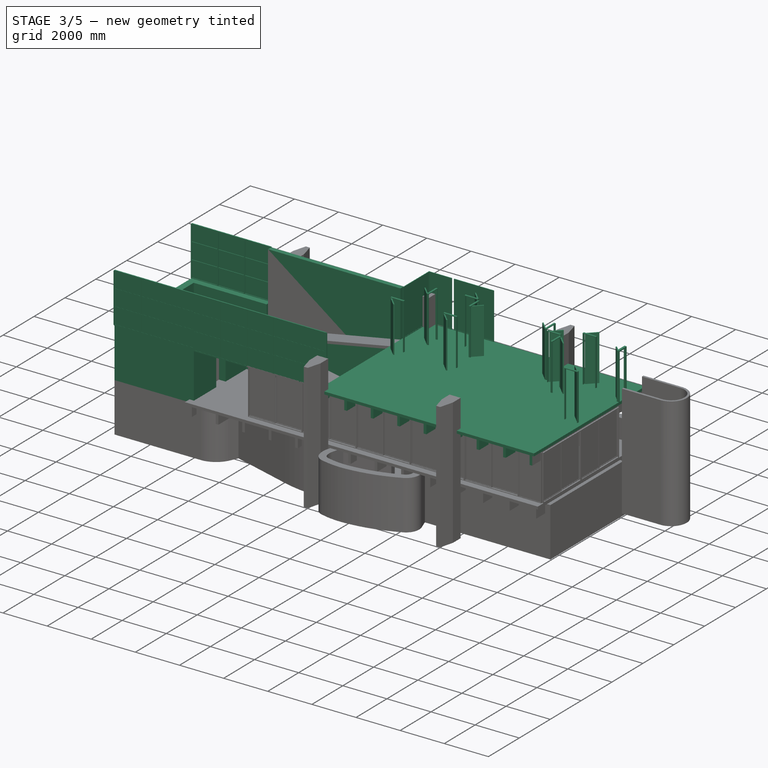
[diagram: stage 3 of 5 — iso view after this stage's code; geometry added in this stage tinted green]
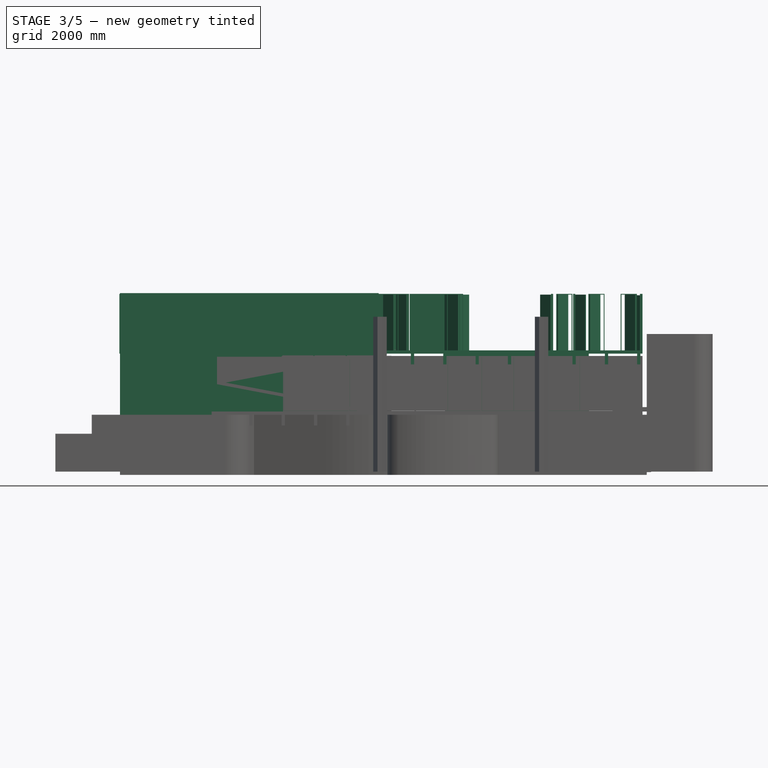
[diagram: stage 3 of 5 — front view after this stage's code; geometry added in this stage tinted green]
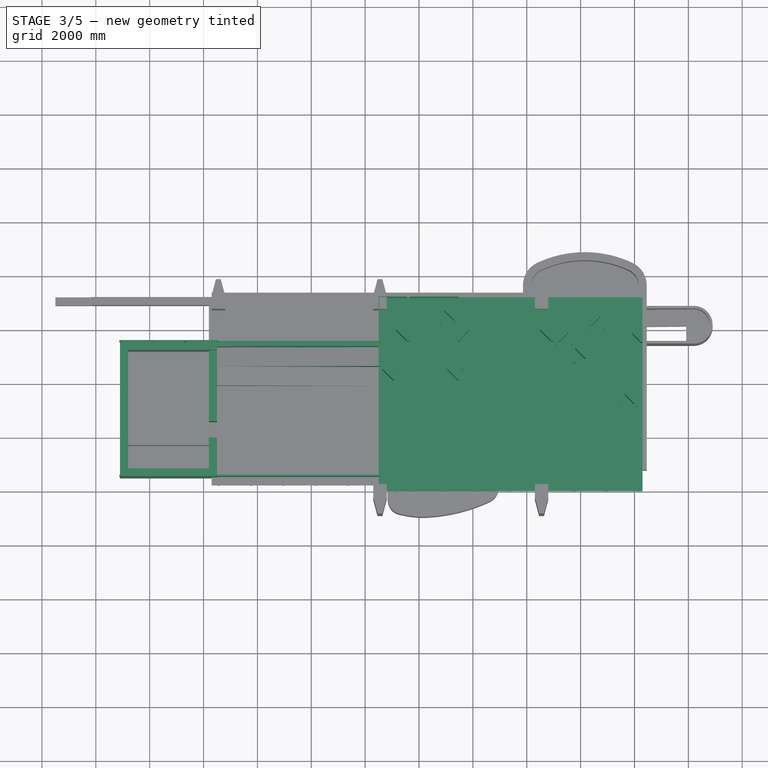
[diagram: stage 3 of 5 — top view after this stage's code; geometry added in this stage tinted green]
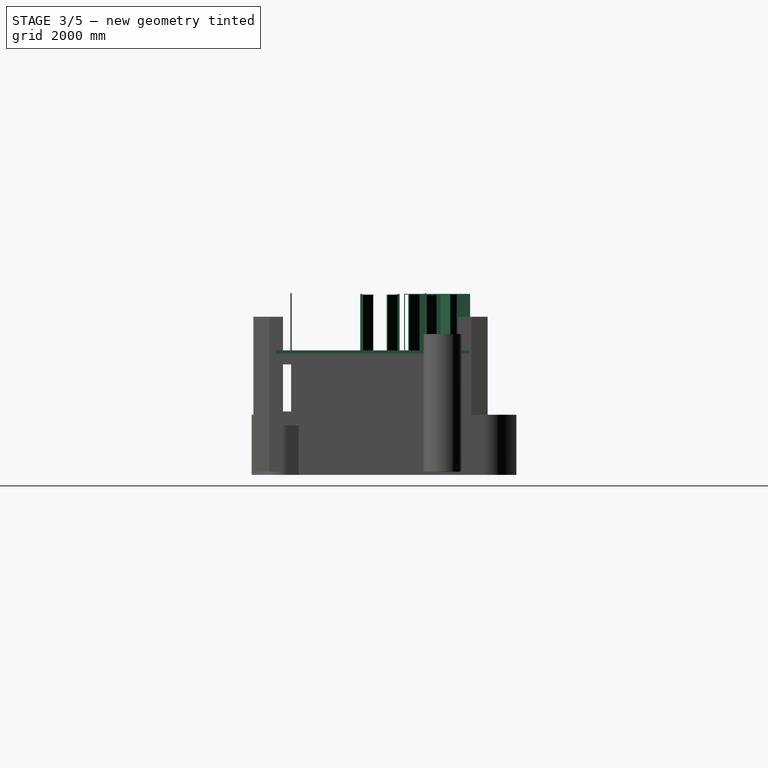
[diagram: stage 3 of 5 — right view after this stage's code; geometry added in this stage tinted green]
FEATURE [Part::Part2DObjectPython] Rectangle002  # Draft 2D object (typed FeaturePython)
  Area = 70560000
  ChamferSize = 0
  Columns = 1
  FilletRadius = 0
  Height = 7200
  Length = 9800
  MakeFace = true
  Placement = pos=(-7400,16200,4500) rot=(0,0,1;0rad)
  Rows = 1
FEATURE [Part::FeaturePython] Structure008  label="Slab"  # Arch/BIM 118 (typed FeaturePython)
  Base = -> Rectangle002
  BaseMirror = false
  BaseOffsetX = 0
  BaseOffsetY = 0
  BasePerpendicularToTool = false
  BaseRotation = 0
  ComputedLength = 120
  FaceMaker = 0
  GlobalId = 0OFkyO70DF2AchUajYgcf9
  Height = 120
  HorizontalArea = 70560000
  IfcData = IfcUID=0OFkyO70DF2AchUajYgcf9,+2 more (map truncated)
  IfcType = 118
  Length = 6500
  MoveBase = false
  MoveWithHost = false
  Nodes = (4) [(-7400,16200,4500),(2400,16200,4500),(2400,23400,4500),(-7400,23400,4500)]
  NodesOffset = 0
  Normal = (0,0,-1)
  PerimeterLength = 34000
  Placement = pos=(-100,-250,0) rot=(0,0,1;0rad)
  PredefinedType = 0
  ToolOffsetFirst = 0
  ToolOffsetLast = 0
  VerticalArea = 4080000
  Width = 9700
FEATURE [Part::FeaturePython] Structure011  label="Beam"  # Arch/BIM 13 (typed FeaturePython)
  Base = -> Rectangle003
  BaseMirror = false
  BaseOffsetX = 0
  BaseOffsetY = 0
  BasePerpendicularToTool = false
  BaseRotation = 0
  ComputedLength = 7200
  FaceMaker = 0
  Height = 7200
  HorizontalArea = 864000
  IfcData = attributes={"GlobalId": {"name": "GlobalId", "type": "IfcGloballyUniqueId", "is_enum": false, "enum_values": []}, "Description": {"... (+484 chars omitted),+1 more (map truncated)
  IfcType = 13
  Length = 0
  MoveBase = false
  MoveWithHost = false
  Nodes = (2) [(-19440,15600,6400),(-19440,22800,6400)]
  NodesOffset = 0
  Normal = (0,1,0)
  PerimeterLength = 14640
  Placement = pos=(12000,350,-2220) rot=(0,0,1;0rad)
  PredefinedType = 0
  ToolOffsetFirst = 0
  ToolOffsetLast = 0
  VerticalArea = 5.856e+06
  Width = 100
FEATURE [Part::FeaturePython] Array002  label="Main beams"  # Draft array (typed FeaturePython)
  AlwaysSyncPlacement = false
  Angle = 360
  ArrayType = 0
  Axis = (0,0,1)
  Base = -> Structure011
  Center = (0,0,0)
  Count = 9
  ExpandArray = false
  Fuse = false
  IntervalAxis = (0,0,0)
  IntervalX = (1200,0,0)
  IntervalY = (0,100,0)
  IntervalZ = (0,0,100)
  NumberCircles = 3
  NumberPolar = 5
  NumberX = 9
  NumberY = 1
  NumberZ = 1
  PlacementList = 9 placements: arithmetic series from (12000,350,-2220) step (1200,0,0) to (21600,350,-2220)
  RadialDistance = 50
  ScaleList = (9) [(1,1,1),(1,1,1),(1,1,1),(1,1,1),(1,1,1),(1,1,1),(1,1,1),(1,1,1),(1,1,1)]
  Symmetry = 1
  TangentialDistance = 25
FEATURE [Part::Part2DObjectPython] Wire007  # Draft 2D object (typed FeaturePython)
  Area = 0
  ChamferSize = 0
  Closed = false
  End = (300,20050,2229.39)
  FilletRadius = 0
  Length = 7400
  MakeFace = true
  Placement = pos=(-5000,22150,2229.39) rot=(0,0,1;0rad)
  Points = (3) [(0,0,0),(0,-2100,0),(5300,-2100,0)]
  Start = (-5000,22150,2229.39)
  Subdivisions = 0
FEATURE [Part::FeaturePython] Wall015  label="Inner wall"  # Arch/BIM 166 (typed FeaturePython)
  Align = 2
  ArchSketchData = true
  Area = 15914440
  Base = -> Wire007
  BlockHeight = 0
  BlockLength = 0
  CountBroken = 0
  CountEntire = 0
  Face = 0
  GlobalId = 1liZfRflL1ehFo1i_lA50X
  Height = 2150.6
  HorizontalArea = 740000
  IfcData = IfcUID=1liZfRflL1ehFo1i_lA50X,+2 more (map truncated)
  IfcType = 166
  Joint = 0
  Length = 7400
  MakeBlocks = false
  MoveBase = false
  MoveWithHost = false
  Normal = (0,0,0)
  OffsetFirst = 0
  OffsetSecond = 0
  PerimeterLength = 15000
  PredefinedType = 0
  VerticalArea = 32259000
  Width = 100
FEATURE [Sketcher::SketchObject] WallTrace005
  ArcFitTolerance = 0
  FullyConstrained = false
  MakeInternals = false
  Placement = pos=(-5700,19450,2229.39) rot=(0,0,1;0rad)
  sketch-geometry (1):
    g0: LineSegment StartX=5500 StartY=0 StartZ=0 EndX=5500 EndY=-2300 EndZ=0
FEATURE [Part::FeaturePython] Wall018  label="Inner wall"  # Arch/BIM 166 (typed FeaturePython)
  Align = 0
  ArchSketchData = true
  Area = 4946380
  Base = -> WallTrace005
  BlockHeight = 0
  BlockLength = 0
  CountBroken = 0
  CountEntire = 0
  Face = 0
  GlobalId = 2U22nV_2b7h8RWQM5BnO5h
  Height = 2150.6
  HorizontalArea = 230000
  IfcData = IfcUID=2U22nV_2b7h8RWQM5BnO5h,+2 more (map truncated)
  IfcType = 166
  Joint = 0
  Length = 2300
  MakeBlocks = false
  MoveBase = false
  MoveWithHost = false
  Normal = (0,0,1)
  OffsetFirst = 0
  OffsetSecond = 0
  PerimeterLength = 4800
  PredefinedType = 0
  VerticalArea = 10322880
  Width = 100
FEATURE [App::DocumentObjectGroup] Group013  label="Doors"
  Group = -> [Window,Window001,Window002,Window003]
FEATURE [Part::Part2DObjectPython] Rectangle019  # Draft 2D object (typed FeaturePython)
  Area = 840000
  ChamferSize = 0
  Columns = 1
  FilletRadius = 0
  Height = 600
  Length = 1400
  MakeFace = true
  Placement = pos=(-14400,17950,2229.39) rot=(0,0,1;0rad)
  Rows = 1
FEATURE [Part::Extrusion] Extrude008  label="Extrude010"
  Base = -> Rectangle019
  Dir = (0,0,1)
  DirMode = 2
  FaceMakerClass = Part::FaceMakerBullseye
  FaceMakerMode = 3
  LengthFwd = 2200
  LengthRev = 0
  Solid = false
  Symmetric = false
FEATURE [Sketcher::SketchObject] Sketch001
  ArcFitTolerance = 0
  FullyConstrained = true
  MakeInternals = false
  Placement = pos=(-9400,35700,0) rot=(1,0,0;1.5708rad)
  sketch-geometry (8):
    g0: LineSegment StartX=0 StartY=-1e-16 StartZ=0 EndX=600 EndY=-1e-16 EndZ=0
    g1: LineSegment StartX=600 StartY=-1e-16 StartZ=0 EndX=600 EndY=2099.7 EndZ=0
    g2: LineSegment StartX=600 StartY=2099.7 StartZ=0 EndX=0 EndY=2099.7 EndZ=0
    g3: LineSegment StartX=0 StartY=2099.7 StartZ=0 EndX=0 EndY=0 EndZ=0
    g4: LineSegment StartX=30 StartY=0 StartZ=0 EndX=570 EndY=0 EndZ=0
    g5: LineSegment StartX=570 StartY=0 StartZ=0 EndX=570 EndY=2069.7 EndZ=0
    g6: LineSegment StartX=570 StartY=2069.7 StartZ=0 EndX=30 EndY=2069.7 EndZ=0
    g7: LineSegment StartX=30 StartY=2069.7 StartZ=0 EndX=30 EndY=0 EndZ=0
  constraints (23):
    c: Coincident(g0,g1)
    c: Coincident(g1,g2)
    c: Coincident(g2,g3)
    c: Coincident(g3,g0)
    c: Horizontal(g0)
    c: Horizontal(g2)
    c: Vertical(g1)
    c: Vertical(g3)
    c: Coincident(g4,g5)
    c: Coincident(g5,g6)
    c: Coincident(g6,g7)
    c: Coincident(g7,g4)
    c: Horizontal(g4)
    c: Horizontal(g6)
    c: Vertical(g5)
    c: Vertical(g7)
    c: DistanceY(g1) = 2099.7  'Height'
    c: DistanceX(g0) = 600  'Width'
    c: DistanceY(g6,g2) = 30  'Frame1'
    c: DistanceX(g2,g6) = 30  'Frame2'
    c: DistanceX(g4,g0) = 30  'Frame3'
    c: DistanceY(g0,g4) = 0
    c: Coincident(g0,g-1)
FEATURE [Part::FeaturePython] Window004  label="Door 60x210"  # Arch/BIM 41 (typed FeaturePython)
  Area = 1259820
  Base = -> Sketch001
  Frame = 30
  GlobalId = 19qYGPWxzCNfJRimrizSQG
  Height = 2099.7
  HoleDepth = 0
  HoleWire = 0
  HorizontalArea = 0
  IfcData = IfcUID=19qYGPWxzCNfJRimrizSQG,+2 more (map truncated)
  IfcType = 41
  LouvreSpacing = 0
  LouvreWidth = 0
  MoveBase = false
  MoveWithHost = true
  Normal = (0,1,-2e-16)
  Opening = 50
  OperationType = 0
  OverallHeight = 2099.7
  OverallWidth = 600
  PerimeterLength = 0
  Placement = pos=(29330,30900,4500) rot=(0,0,1;1.5708rad)
  PredefinedType = 0
  Preset = 6
  SymbolElevation = false
  SymbolPlan = true
  VerticalArea = 0
  Width = 600
  WindowParts = OuterFrame | Frame | Wire0,Wire1 | 50.0+V | 0.00+V | Door | Solid panel | Wire1,Edge8,Mode1 | 50.0 | 50.0+V
  expr: OverallHeight = .Height.Value
  expr: OverallWidth = .Width.Value
FEATURE [Part::FeaturePython] Window005  label="Door 60x210"  # Arch/BIM 41 (typed FeaturePython)
  Area = 1259820
  Base = -> Sketch001
  Frame = 30
  GlobalId = 37cx54Cg1E6hJVFip8Ly4L
  Height = 2099.7
  HoleDepth = 0
  HoleWire = 0
  HorizontalArea = 0
  IfcData = IfcUID=37cx54Cg1E6hJVFip8Ly4L,+2 more (map truncated)
  IfcType = 41
  LouvreSpacing = 0
  LouvreWidth = 0
  MoveBase = false
  MoveWithHost = true
  Normal = (0,1,-2e-16)
  Opening = 50
  OperationType = 0
  OverallHeight = 2099.7
  OverallWidth = 600
  PerimeterLength = 0
  Placement = pos=(4193.64,-13530,4500) rot=(0,0,1;0rad)
  PredefinedType = 0
  Preset = 6
  SymbolElevation = false
  SymbolPlan = true
  VerticalArea = 0
  Width = 600
  WindowParts = OuterFrame | Frame | Wire0,Wire1 | 50.0+V | 0.00+V | Door | Solid panel | Wire1,Edge6,Mode2 | 50.0 | 50.0+V
  expr: OverallHeight = .Height.Value
  expr: OverallWidth = .Width.Value
FEATURE [Part::FeaturePython] Window006  label="Door 60x210"  # Arch/BIM 41 (typed FeaturePython)
  Area = 1259820
  Base = -> Sketch001
  Frame = 30
  GlobalId = 1vk7PsflbEPhrsKxnP5G3Z
  Height = 2099.7
  HoleDepth = 0
  HoleWire = 0
  HorizontalArea = 0
  IfcData = IfcUID=1vk7PsflbEPhrsKxnP5G3Z,+2 more (map truncated)
  IfcType = 41
  LouvreSpacing = 0
  LouvreWidth = 0
  MoveBase = false
  MoveWithHost = true
  Normal = (0,1,-2e-16)
  Opening = 50
  OperationType = 0
  OverallHeight = 2099.7
  OverallWidth = 600
  PerimeterLength = 0
  Placement = pos=(31230,30900,4500) rot=(0,0,1;1.5708rad)
  PredefinedType = 0
  Preset = 6
  SymbolElevation = false
  SymbolPlan = true
  VerticalArea = 0
  Width = 600
  WindowParts = OuterFrame | Frame | Wire0,Wire1 | 50.0+V | 0.00+V | Door | Solid panel | Wire1,Edge8,Mode2 | 50.0 | 50.0+V
  expr: OverallHeight = .Height.Value
  expr: OverallWidth = .Width.Value
FEATURE [Part::FeaturePython] Window007  label="Door 60x210"  # Arch/BIM 41 (typed FeaturePython)
  Area = 1259820
  Base = -> Sketch001
  Frame = 30
  GlobalId = 0$UOxB9sHEPuZjGEC2JVxA
  Height = 2099.7
  HoleDepth = 0
  HoleWire = 0
  HorizontalArea = 0
  IfcData = IfcUID=0$UOxB9sHEPuZjGEC2JVxA,+2 more (map truncated)
  IfcType = 41
  LouvreSpacing = 0
  LouvreWidth = 0
  MoveBase = false
  MoveWithHost = true
  Normal = (0,1,-2e-16)
  Opening = 50
  OperationType = 0
  OverallHeight = 2099.7
  OverallWidth = 600
  PerimeterLength = 0
  Placement = pos=(34680,30900,4500) rot=(0,0,1;1.5708rad)
  PredefinedType = 0
  Preset = 6
  SymbolElevation = false
  SymbolPlan = true
  VerticalArea = 0
  Width = 600
  WindowParts = OuterFrame | Frame | Wire0,Wire1 | 50.0+V | 0.00+V | Door | Solid panel | Wire1,Edge8,Mode1 | 50.0 | 50.0+V
  expr: OverallHeight = .Height.Value
  expr: OverallWidth = .Width.Value
FEATURE [Part::FeaturePython] Window008  label="Door 60x210"  # Arch/BIM 41 (typed FeaturePython)
  Area = 1259820
  Base = -> Sketch001
  Frame = 30
  GlobalId = 1gV1KYUPb3gBS7UniBhkpr
  Height = 2099.7
  HoleDepth = 0
  HoleWire = 0
  HorizontalArea = 0
  IfcData = IfcUID=1gV1KYUPb3gBS7UniBhkpr,+2 more (map truncated)
  IfcType = 41
  LouvreSpacing = 0
  LouvreWidth = 0
  MoveBase = false
  MoveWithHost = true
  Normal = (0,1,-2e-16)
  Opening = 50
  OperationType = 0
  OverallHeight = 2099.7
  OverallWidth = 600
  PerimeterLength = 0
  Placement = pos=(8493.64,-14330,4500) rot=(0,0,1;0rad)
  PredefinedType = 0
  Preset = 6
  SymbolElevation = false
  SymbolPlan = true
  VerticalArea = 0
  Width = 600
  WindowParts = OuterFrame | Frame | Wire0,Wire1 | 50.0+V | 0.00+V | Door | Solid panel | Wire1,Edge8,Mode1 | 50.0 | 50.0+V
  expr: OverallHeight = .Height.Value
  expr: OverallWidth = .Width.Value
FEATURE [Part::FeaturePython] Window009  label="Door 60x210"  # Arch/BIM 41 (typed FeaturePython)
  Area = 1259820
  Base = -> Sketch001
  Frame = 30
  GlobalId = 3807BmkRr60emF$WiFXAvQ
  Height = 2099.7
  HoleDepth = 0
  HoleWire = 0
  HorizontalArea = 0
  IfcData = IfcUID=3807BmkRr60emF$WiFXAvQ,+2 more (map truncated)
  IfcType = 41
  LouvreSpacing = 0
  LouvreWidth = 0
  MoveBase = false
  MoveWithHost = true
  Normal = (0,1,-2e-16)
  Opening = 50
  OperationType = 0
  OverallHeight = 2099.7
  OverallWidth = 600
  PerimeterLength = 0
  Placement = pos=(9687.27,-13730,4500) rot=(0,0,1;0rad)
  PredefinedType = 0
  Preset = 6
  SymbolElevation = false
  SymbolPlan = true
  VerticalArea = 0
  Width = 600
  WindowParts = OuterFrame | Frame | Wire0,Wire1 | 50.0+V | 0.00+V | Door | Solid panel | Wire1,Edge8,Mode1 | 50.0 | 50.0+V
  expr: OverallHeight = .Height.Value
  expr: OverallWidth = .Width.Value
FEATURE [Part::FeaturePython] Window010  label="Door 60x210"  # Arch/BIM 41 (typed FeaturePython)
  Area = 1259820
  Base = -> Sketch001
  Frame = 30
  GlobalId = 3pwRR500HCIhm3rx7z0Op6
  Height = 2099.7
  HoleDepth = 0
  HoleWire = 0
  HorizontalArea = 0
  IfcData = IfcUID=3pwRR500HCIhm3rx7z0Op6,+2 more (map truncated)
  IfcType = 41
  LouvreSpacing = 0
  LouvreWidth = 0
  MoveBase = false
  MoveWithHost = true
  Normal = (0,1,-2e-16)
  Opening = 50
  OperationType = 0
  OverallHeight = 2099.7
  OverallWidth = 600
  PerimeterLength = 0
  Placement = pos=(-35980,11900,4500) rot=(0,0,-1;1.5708rad)
  PredefinedType = 0
  Preset = 6
  SymbolElevation = false
  SymbolPlan = true
  VerticalArea = 0
  Width = 600
  WindowParts = OuterFrame | Frame | Wire0,Wire1 | 50.0+V | 0.00+V | Door | Solid panel | Wire1,Edge8,Mode1 | 50.0 | 50.0+V
  expr: OverallHeight = .Height.Value
  expr: OverallWidth = .Width.Value
FEATURE [Part::FeaturePython] Window011  label="Door 60x210"  # Arch/BIM 41 (typed FeaturePython)
  Area = 1259820
  Base = -> Sketch001
  Frame = 30
  GlobalId = 1bCVMut09AChn77jwq$YRd
  Height = 2099.7
  HoleDepth = 0
  HoleWire = 0
  HorizontalArea = 0
  IfcData = IfcUID=1bCVMut09AChn77jwq$YRd,+2 more (map truncated)
  IfcType = 41
  LouvreSpacing = 0
  LouvreWidth = 0
  MoveBase = false
  MoveWithHost = true
  Normal = (0,1,-2e-16)
  Opening = 50
  OperationType = 0
  OverallHeight = 2099.7
  OverallWidth = 600
  PerimeterLength = 0
  Placement = pos=(-11362.7,56230,4500) rot=(0,0,1;3.14159rad)
  PredefinedType = 0
  Preset = 6
  SymbolElevation = false
  SymbolPlan = true
  VerticalArea = 0
  Width = 600
  WindowParts = OuterFrame | Frame | Wire0,Wire1 | 50.0+V | 0.00+V | Door | Solid panel | Wire1,Edge6,Mode2 | 50.0 | 50.0+V
  expr: OverallHeight = .Height.Value
  expr: OverallWidth = .Width.Value
FEATURE [Part::FeaturePython] Window012  label="Door 60x210"  # Arch/BIM 41 (typed FeaturePython)
  Area = 1259820
  CloneOf = -> Window011
  Frame = 0
  GlobalId = 0FvbpKY7P9BO8GHJeW2SNQ
  Height = 2099.7
  HoleDepth = 0
  HoleWire = 0
  HorizontalArea = 0
  IfcData = IfcUID=0FvbpKY7P9BO8GHJeW2SNQ,+2 more (map truncated)
  IfcType = 41
  LouvreSpacing = 0
  LouvreWidth = 0
  MoveBase = false
  MoveWithHost = true
  Normal = (0,0,0)
  Opening = 0
  OperationType = 0
  OverallHeight = 2099.7
  OverallWidth = 600
  PerimeterLength = 0
  Placement = pos=(-13762.7,56230,4500) rot=(0,0,1;3.14159rad)
  PredefinedType = 0
  Preset = 0
  SymbolElevation = false
  SymbolPlan = false
  VerticalArea = 0
  Width = 600
  expr: OverallHeight = .Height.Value
  expr: OverallWidth = .Width.Value
FEATURE [Part::FeaturePython] Window013  label="Door 60x210"  # Arch/BIM 41 (typed FeaturePython)
  Area = 1259820
  CloneOf = -> Window011
  Frame = 0
  GlobalId = 1oVxK48iH4_fUH4Bz7C_7d
  Height = 2099.7
  HoleDepth = 0
  HoleWire = 0
  HorizontalArea = 0
  IfcData = IfcUID=1oVxK48iH4_fUH4Bz7C_7d,+2 more (map truncated)
  IfcType = 41
  LouvreSpacing = 0
  LouvreWidth = 0
  MoveBase = false
  MoveWithHost = true
  Normal = (0,0,0)
  Opening = 0
  OperationType = 0
  OverallHeight = 2099.7
  OverallWidth = 600
  PerimeterLength = 0
  Placement = pos=(-16162.7,56230,4500) rot=(0,0,1;3.14159rad)
  PredefinedType = 0
  Preset = 0
  SymbolElevation = false
  SymbolPlan = false
  VerticalArea = 0
  Width = 600
  expr: OverallHeight = .Height.Value
  expr: OverallWidth = .Width.Value
FEATURE [Part::FeaturePython] Window014  label="Door 60x210"  # Arch/BIM 41 (typed FeaturePython)
  Area = 1259820
  Base = -> Sketch001
  Frame = 30
  GlobalId = 2953icd$12nQCWHWWnL8VO
  Height = 2099.7
  HoleDepth = 0
  HoleWire = 0
  HorizontalArea = 0
  IfcData = IfcUID=2953icd$12nQCWHWWnL8VO,+2 more (map truncated)
  IfcType = 41
  LouvreSpacing = 0
  LouvreWidth = 0
  MoveBase = false
  MoveWithHost = true
  Normal = (0,1,-2e-16)
  Opening = 50
  OperationType = 0
  OverallHeight = 2099.7
  OverallWidth = 600
  PerimeterLength = 0
  Placement = pos=(10887.3,-16630,4500) rot=(0,0,1;0rad)
  PredefinedType = 0
  Preset = 6
  SymbolElevation = false
  SymbolPlan = true
  VerticalArea = 0
  Width = 600
  WindowParts = OuterFrame | Frame | Wire0,Wire1 | 50.0+V | 0.00+V | Door | Solid panel | Wire1,Edge6,Mode2 | 50.0 | 50.0+V
  expr: OverallHeight = .Height.Value
  expr: OverallWidth = .Width.Value
FEATURE [Sketcher::SketchObject] Sketch004
  ArcFitTolerance = 0
  FullyConstrained = true
  MakeInternals = false
  Placement = pos=(-4550,23150,4500) rot=(0,0.707107,0.707107;3.14159rad)
  sketch-geometry (8):
    g0: LineSegment StartX=0 StartY=0 StartZ=0 EndX=1800 EndY=0 EndZ=0
    g1: LineSegment StartX=1800 StartY=0 StartZ=0 EndX=1800 EndY=2099.7 EndZ=0
    g2: LineSegment StartX=1800 StartY=2099.7 StartZ=0 EndX=0 EndY=2099.7 EndZ=0
    g3: LineSegment StartX=0 StartY=2099.7 StartZ=0 EndX=0 EndY=0 EndZ=0
    g4: LineSegment StartX=30 StartY=30 StartZ=0 EndX=1770 EndY=30 EndZ=0
    g5: LineSegment StartX=1770 StartY=30 StartZ=0 EndX=1770 EndY=2069.7 EndZ=0
    g6: LineSegment StartX=1770 StartY=2069.7 StartZ=0 EndX=30 EndY=2069.7 EndZ=0
    g7: LineSegment StartX=30 StartY=2069.7 StartZ=0 EndX=30 EndY=30 EndZ=0
  constraints (23):
    c: Coincident(g0,g1)
    c: Coincident(g1,g2)
    c: Coincident(g2,g3)
    c: Coincident(g3,g0)
    c: Horizontal(g0)
    c: Horizontal(g2)
    c: Vertical(g1)
    c: Vertical(g3)
    c: Coincident(g4,g5)
    c: Coincident(g5,g6)
    c: Coincident(g6,g7)
    c: Coincident(g7,g4)
    c: Horizontal(g4)
    c: Horizontal(g6)
    c: Vertical(g5)
    c: Vertical(g7)
    c: DistanceY(g1) = 2099.7  'Height'
    c: DistanceX(g0) = 1800  'Width'
    c: DistanceY(g6,g2) = 30  'Frame1'
    c: DistanceX(g2,g6) = 30  'Frame2'
    c: DistanceX(g4,g0) = 30  'Frame3'
    c: DistanceY(g0,g4) = 30  'Frame4'
    c: Coincident(g0,g-1)
FEATURE [Part::FeaturePython] Window017  label="Bathroom window"  # Arch/BIM 170 (typed FeaturePython)
  Area = 3.77946e+06
  Base = -> Sketch004
  Frame = 30
  GlobalId = 1nQ8MSHST7jQhSMYhfuGXm
  Height = 2099.7
  HoleDepth = 0
  HoleWire = 0
  HorizontalArea = 0
  IfcData = IfcUID=1nQ8MSHST7jQhSMYhfuGXm,+2 more (map truncated)
  IfcType = 170
  LouvreSpacing = 0
  LouvreWidth = 0
  MoveBase = false
  MoveWithHost = true
  Normal = (0,-1,2e-16)
  Offset = 30
  Opening = 0
  OverallHeight = 2099.7
  OverallWidth = 1800
  PartitioningType = 0
  PerimeterLength = 0
  Placement = pos=(0,30,0) rot=(0,0,1;0rad)
  PredefinedType = 0
  Preset = 1
  SymbolElevation = false
  SymbolPlan = false
  VerticalArea = 0
  Width = 1800
  WindowParts = OuterFrame | Frame | Wire0,Wire1 | 0.0+V | 0.00+V | Glass | Glass panel | Wire1 | 3.0 | 15.0+V
  expr: OverallHeight = .Height.Value
  expr: OverallWidth = .Width.Value
FEATURE [Sketcher::SketchObject] Sketch005
  ArcFitTolerance = 0
  FullyConstrained = true
  MakeInternals = false
  Placement = pos=(-6450,23150,4500) rot=(0,0.707107,0.707107;3.14159rad)
  sketch-geometry (8):
    g0: LineSegment StartX=0 StartY=0 StartZ=0 EndX=1050 EndY=0 EndZ=0
    g1: LineSegment StartX=1050 StartY=0 StartZ=0 EndX=1050 EndY=2099.7 EndZ=0
    g2: LineSegment StartX=1050 StartY=2099.7 StartZ=0 EndX=0 EndY=2099.7 EndZ=0
    g3: LineSegment StartX=0 StartY=2099.7 StartZ=0 EndX=0 EndY=0 EndZ=0
    g4: LineSegment StartX=30 StartY=30 StartZ=0 EndX=1020 EndY=30 EndZ=0
    g5: LineSegment StartX=1020 StartY=30 StartZ=0 EndX=1020 EndY=2069.7 EndZ=0
    g6: LineSegment StartX=1020 StartY=2069.7 StartZ=0 EndX=30 EndY=2069.7 EndZ=0
    g7: LineSegment StartX=30 StartY=2069.7 StartZ=0 EndX=30 EndY=30 EndZ=0
  constraints (23):
    c: Coincident(g0,g1)
    c: Coincident(g1,g2)
    c: Coincident(g2,g3)
    c: Coincident(g3,g0)
    c: Horizontal(g0)
    c: Horizontal(g2)
    c: Vertical(g1)
    c: Vertical(g3)
    c: Coincident(g4,g5)
    c: Coincident(g5,g6)
    c: Coincident(g6,g7)
    c: Coincident(g7,g4)
    c: Horizontal(g4)
    c: Horizontal(g6)
    c: Vertical(g5)
    c: Vertical(g7)
    c: DistanceY(g1) = 2099.7  'Height'
    c: DistanceX(g0) = 1050  'Width'
    c: DistanceY(g6,g2) = 30  'Frame1'
    c: DistanceX(g2,g6) = 30  'Frame2'
    c: DistanceX(g4,g0) = 30  'Frame3'
    c: DistanceY(g0,g4) = 30  'Frame4'
    c: Coincident(g0,g-1)
FEATURE [Part::FeaturePython] Window018  label="Bathroom window"  # Arch/BIM 170 (typed FeaturePython)
  Area = 2204685
  Base = -> Sketch005
  Frame = 30
  GlobalId = 1DVV0RSZnEUvXl4xWxf89N
  Height = 2099.7
  HoleDepth = 0
  HoleWire = 0
  HorizontalArea = 0
  IfcData = IfcUID=1DVV0RSZnEUvXl4xWxf89N,+2 more (map truncated)
  IfcType = 170
  LouvreSpacing = 0
  LouvreWidth = 0
  MoveBase = false
  MoveWithHost = true
  Normal = (0,-1,2e-16)
  Offset = 30
  Opening = 0
  OverallHeight = 2099.7
  OverallWidth = 1050
  PartitioningType = 0
  PerimeterLength = 0
  Placement = pos=(0,30,0) rot=(0,0,1;0rad)
  PredefinedType = 0
  Preset = 1
  SymbolElevation = false
  SymbolPlan = false
  VerticalArea = 0
  Width = 1050
  WindowParts = OuterFrame | Frame | Wire0,Wire1 | 0.0+V | 0.00+V | Glass | Glass panel | Wire1 | 3.0 | 15.0+V
  expr: OverallHeight = .Height.Value
  expr: OverallWidth = .Width.Value
FEATURE [Sketcher::SketchObject] Sketch006
  ArcFitTolerance = 0
  FullyConstrained = true
  MakeInternals = false
  Placement = pos=(-7500,23120,4500) rot=(0.57735,-0.57735,-0.57735;2.0944rad)
  sketch-geometry (8):
    g0: LineSegment StartX=0 StartY=0 StartZ=0 EndX=1670 EndY=0 EndZ=0
    g1: LineSegment StartX=1670 StartY=0 StartZ=0 EndX=1670 EndY=2099.7 EndZ=0
    g2: LineSegment StartX=1670 StartY=2099.7 StartZ=0 EndX=0 EndY=2099.7 EndZ=0
    g3: LineSegment StartX=0 StartY=2099.7 StartZ=0 EndX=0 EndY=0 EndZ=0
    g4: LineSegment StartX=30 StartY=30 StartZ=0 EndX=1640 EndY=30 EndZ=0
    g5: LineSegment StartX=1640 StartY=30 StartZ=0 EndX=1640 EndY=2069.7 EndZ=0
    g6: LineSegment StartX=1640 StartY=2069.7 StartZ=0 EndX=30 EndY=2069.7 EndZ=0
    g7: LineSegment StartX=30 StartY=2069.7 StartZ=0 EndX=30 EndY=30 EndZ=0
  constraints (23):
    c: Coincident(g0,g1)
    c: Coincident(g1,g2)
    c: Coincident(g2,g3)
    c: Coincident(g3,g0)
    c: Horizontal(g0)
    c: Horizontal(g2)
    c: Vertical(g1)
    c: Vertical(g3)
    c: Coincident(g4,g5)
    c: Coincident(g5,g6)
    c: Coincident(g6,g7)
    c: Coincident(g7,g4)
    c: Horizontal(g4)
    c: Horizontal(g6)
    c: Vertical(g5)
    c: Vertical(g7)
    c: DistanceY(g1) = 2099.7  'Height'
    c: DistanceX(g0) = 1670  'Width'
    c: DistanceY(g6,g2) = 30  'Frame1'
    c: DistanceX(g2,g6) = 30  'Frame2'
    c: DistanceX(g4,g0) = 30  'Frame3'
    c: DistanceY(g0,g4) = 30  'Frame4'
    c: Coincident(g0,g-1)
FEATURE [Part::FeaturePython] Window019  label="Bathroom window"  # Arch/BIM 170 (typed FeaturePython)
  Area = 3.5065e+06
  Base = -> Sketch006
  Frame = 30
  GlobalId = 1_iHYXEVf8ivO0Hc5nHUp4
  Height = 2099.7
  HoleDepth = 0
  HoleWire = 0
  HorizontalArea = 0
  IfcData = IfcUID=1_iHYXEVf8ivO0Hc5nHUp4,+2 more (map truncated)
  IfcType = 170
  LouvreSpacing = 0
  LouvreWidth = 0
  MoveBase = false
  MoveWithHost = true
  Normal = (1,0,0)
  Offset = 30
  Opening = 0
  OverallHeight = 2099.7
  OverallWidth = 1670
  PartitioningType = 0
  PerimeterLength = 0
  Placement = pos=(-30,0,0) rot=(0,0,1;0rad)
  PredefinedType = 0
  Preset = 1
  SymbolElevation = false
  SymbolPlan = false
  VerticalArea = 0
  Width = 1670
  WindowParts = OuterFrame | Frame | Wire0,Wire1 | 0.0+V | 0.00+V | Glass | Glass panel | Wire1 | 3.0 | 15.0+V
  expr: OverallHeight = .Height.Value
  expr: OverallWidth = .Width.Value
FEATURE [Part::Cut] Cut
  Base = -> Rectangle030
  Tool = -> Extrude012
FEATURE [Part::Cut] Cut001
  Base = -> Rectangle031
  Tool = -> Extrude012
FEATURE [App::DocumentObjectGroup] Group007  label="Terrain"
  Group = -> [Rectangle006,Wire,Rectangle008,Wire002,Cut,Cut001]
FEATURE [Sketcher::SketchObject] WallTrace021
  ArcFitTolerance = 0
  FullyConstrained = false
  MakeInternals = false
  Placement = pos=(-5700,19450,2229.39) rot=(0,0,1;0rad)
  sketch-geometry (1):
    g0: LineSegment StartX=-7800 StartY=2050 StartZ=0 EndX=-1800 EndY=2050 EndZ=0
FEATURE [Part::FeaturePython] Wall037  label="Ramp wall"  # Arch/BIM 166 (typed FeaturePython)
  Align = 0
  ArchSketchData = true
  Area = 2.62218e+07
  Base = -> WallTrace021
  BlockHeight = 0
  BlockLength = 0
  CountBroken = 0
  CountEntire = 0
  Face = 0
  GlobalId = 0nwBbJs4r0X81LNLlbgzAq
  Height = 4370.3
  HorizontalArea = 1.2e+06
  IfcData = IfcUID=0nwBbJs4r0X81LNLlbgzAq,+2 more (map truncated)
  IfcType = 166
  Joint = 0
  Length = 6000
  MakeBlocks = false
  MoveBase = false
  MoveWithHost = false
  Normal = (0,0,1)
  OffsetFirst = 0
  OffsetSecond = 0
  PerimeterLength = 12400
  PredefinedType = 0
  VerticalArea = 5.41917e+07
  Width = 200
FEATURE [Part::Part2DObjectPython] Rectangle032  # Draft 2D object (typed FeaturePython)
  Area = 4.29e+06
  ChamferSize = 0
  Columns = 1
  FilletRadius = 0
  Height = 1300
  Length = 3300
  MakeFace = true
  Placement = pos=(-16800,19900,3364.69) rot=(0,0,1;0rad)
  Rows = 1
FEATURE [Part::Extrusion] Extrude017  label="Extrude028"
  Base = -> Rectangle032
  Dir = (0,0,1)
  DirMode = 2
  FaceMakerClass = Part::FaceMakerBullseye
  FaceMakerMode = 3
  LengthFwd = 2000
  LengthRev = 0
  Placement = pos=(900,0,0) rot=(0,0,1;0rad)
  Solid = false
  Symmetric = false
FEATURE [Part::FeaturePython] Wall019  label="Stone wall"  # Arch/BIM 166 (typed FeaturePython)
  Align = 1
  ArchSketchData = true
  Area = 3.90543e+07
  Base = -> Rectangle011
  BlockHeight = 0
  BlockLength = 0
  CountBroken = 0
  CountEntire = 0
  Face = 0
  GlobalId = 01l3XO6_jDdg8Z408ZkzHB
  Height = 2270.6
  HorizontalArea = 3.6e+07
  IfcData = IfcUID=01l3XO6_jDdg8Z408ZkzHB,+2 more (map truncated)
  IfcType = 166
  Joint = 0
  Length = 17200
  MakeBlocks = false
  MoveBase = false
  MoveWithHost = false
  Normal = (0,0,0)
  OffsetFirst = 0
  OffsetSecond = 0
  PerimeterLength = 17200
  PredefinedType = 0
  Subtractions = -> [Extrude008,Extrude017]
  VerticalArea = 6.93382e+07
  Width = 300
FEATURE [Part::Part2DObjectPython] Wire009  # Draft 2D object (typed FeaturePython)
  Area = 9.49776e+06
  ChamferSize = 0
  Closed = true
  End = (-13500,20600,2229.39)
  FilletRadius = 0
  Length = 15272.4
  MakeFace = true
  Placement = pos=(-13500,20600,3244.69) rot=(0.99132,-0.092963,0.092963;1.57951rad)
  Points = (4) [(0,0,0),(6106.47,0,0),(5706.63,-2113.12,0),(-188.765,-997.605,0)]
  Start = (-13500,20600,3244.69)
  Subdivisions = 0
FEATURE [Part::FeaturePython] Wall038  label="Ramp wall"  # Arch/BIM 166 (typed FeaturePython)
  Align = 2
  ArchSketchData = true
  Area = 0
  Base = -> Wire009
  BlockHeight = 0
  BlockLength = 0
  CountBroken = 0
  CountEntire = 0
  Face = 0
  GlobalId = 0piuq2$Pf5lO_k8XWySmyk
  Height = 120
  HorizontalArea = 720000
  IfcData = IfcUID=0piuq2$Pf5lO_k8XWySmyk,+2 more (map truncated)
  IfcType = 166
  Joint = 0
  Length = 0
  MakeBlocks = false
  MoveBase = false
  MoveWithHost = false
  Normal = (0,1,0)
  OffsetFirst = 0
  OffsetSecond = 0
  PerimeterLength = 12240
  PredefinedType = 0
  VerticalArea = 1.93754e+07
  Width = 200
FEATURE [Part::FeaturePython] Wall039  label="Ramp wall"  # Arch/BIM 166 (typed FeaturePython)
  Align = 1
  ArchSketchData = true
  Area = 1.8e+07
  Base = -> WallTrace022
  BlockHeight = 0
  BlockLength = 0
  CountBroken = 0
  CountEntire = 0
  Face = 0
  GlobalId = 1uEdg2yHDBahaWzz1EDgp3
  Height = 3000
  HorizontalArea = 1.07316e+06
  IfcData = IfcUID=1uEdg2yHDBahaWzz1EDgp3,+2 more (map truncated)
  IfcType = 166
  Joint = 0
  Length = 6000
  MakeBlocks = false
  MoveBase = false
  MoveWithHost = false
  Normal = (0,0,1)
  OffsetFirst = 0
  OffsetSecond = 0
  PerimeterLength = 11131.6
  PredefinedType = 0
  Subtractions = -> [Extrude018]
  VerticalArea = 5.651e+06
  Width = 200
FEATURE [Part::Part2DObjectPython] Rectangle033  # Draft 2D object (typed FeaturePython)
  Area = 7.99087e+06
  ChamferSize = 0
  Columns = 3
  FilletRadius = 0
  Height = 2219.69
  Length = 3600
  MakeFace = true
  Placement = pos=(-13500,21500,4380) rot=(0,0.707107,0.707107;3.14159rad)
  Rows = 3
FEATURE [Part::Part2DObjectPython] Rectangle035  # Draft 2D object (typed FeaturePython)
  Area = 7.99087e+06
  ChamferSize = 0
  Columns = 3
  FilletRadius = 0
  Height = 2219.69
  Length = 3600
  MakeFace = true
  Placement = pos=(-17100,16500,4380) rot=(1,0,0;1.5708rad)
  Rows = 3
FEATURE [Part::Part2DObjectPython] Rectangle036  # Draft 2D object (typed FeaturePython)
  Area = 1.38528e+07
  ChamferSize = 0
  Columns = 5
  FilletRadius = 0
  Height = 2308.8
  Length = 6000
  MakeFace = true
  Placement = pos=(-13500,16500,4290.89) rot=(1,0,0;1.5708rad)
  Rows = 3
FEATURE [Part::FeaturePython] CurtainWall002  label="High window living"  # Arch/BIM 33 (typed FeaturePython)
  Base = -> Rectangle033
  CenterProfiles = true
  DiagonalMullionNumber = 0
  DiagonalMullionSize = 50
  GlobalId = 1ee5sotzLFehQMo3pEM$ZZ
  Height = 3000
  HorizontalArea = 0
  HorizontalMullionAlignment = false
  HorizontalMullionHeight = 50
  HorizontalMullionNumber = 12
  HorizontalMullionWidth = 50
  HorizontalSections = 1
  IfcData = IfcUID=1ee5sotzLFehQMo3pEM$ZZ,+2 more (map truncated)
  IfcType = 33
  MoveBase = false
  MoveWithHost = false
  PanelNumber = 9
  PanelThickness = 20
  PerimeterLength = 0
  PredefinedType = 0
  SwapHorizontalVertical = false
  VerticalArea = 0
  VerticalDirection = (0,0,1)
  VerticalMullionAlignment = false
  VerticalMullionHeight = 50
  VerticalMullionNumber = 12
  VerticalMullionWidth = 50
  VerticalSections = 1
FEATURE [Part::FeaturePython] CurtainWall003  label="High window living"  # Arch/BIM 33 (typed FeaturePython)
  Base = -> Rectangle035
  CenterProfiles = true
  DiagonalMullionNumber = 0
  DiagonalMullionSize = 50
  GlobalId = 3U44WnFSP4vxW5V3iaY2X3
  Height = 3000
  HorizontalArea = 0
  HorizontalMullionAlignment = false
  HorizontalMullionHeight = 50
  HorizontalMullionNumber = 12
  HorizontalMullionWidth = 50
  HorizontalSections = 1
  IfcData = IfcUID=3U44WnFSP4vxW5V3iaY2X3,+2 more (map truncated)
  IfcType = 33
  MoveBase = false
  MoveWithHost = false
  PanelNumber = 9
  PanelThickness = 20
  PerimeterLength = 0
  PredefinedType = 0
  SwapHorizontalVertical = false
  VerticalArea = 0
  VerticalDirection = (0,0,1)
  VerticalMullionAlignment = false
  VerticalMullionHeight = 50
  VerticalMullionNumber = 12
  VerticalMullionWidth = 50
  VerticalSections = 1
FEATURE [Part::FeaturePython] CurtainWall004  label="High window living"  # Arch/BIM 33 (typed FeaturePython)
  Base = -> Rectangle036
  CenterProfiles = true
  DiagonalMullionNumber = 0
  DiagonalMullionSize = 50
  GlobalId = 3G5I$Y4Iz5iv9sicNYnmRz
  Height = 3000
  HorizontalArea = 0
  HorizontalMullionAlignment = false
  HorizontalMullionHeight = 50
  HorizontalMullionNumber = 20
  HorizontalMullionWidth = 50
  HorizontalSections = 1
  IfcData = IfcUID=3G5I$Y4Iz5iv9sicNYnmRz,+2 more (map truncated)
  IfcType = 33
  MoveBase = false
  MoveWithHost = false
  PanelNumber = 15
  PanelThickness = 20
  PerimeterLength = 0
  PredefinedType = 0
  SwapHorizontalVertical = false
  VerticalArea = 0
  VerticalDirection = (0,0,1)
  VerticalMullionAlignment = false
  VerticalMullionHeight = 50
  VerticalMullionNumber = 18
  VerticalMullionWidth = 50
  VerticalSections = 1
FEATURE [Sketcher::SketchObject] Sketch011
  ArcFitTolerance = 0
  FullyConstrained = true
  MakeInternals = false
  Placement = pos=(300,27350,4500) rot=(1,0,0;1.5708rad)
  sketch-geometry (8):
    g0: LineSegment StartX=0 StartY=0 StartZ=0 EndX=500 EndY=0 EndZ=0
    g1: LineSegment StartX=500 StartY=0 StartZ=0 EndX=500 EndY=2099.7 EndZ=0
    g2: LineSegment StartX=500 StartY=2099.7 StartZ=0 EndX=0 EndY=2099.7 EndZ=0
    g3: LineSegment StartX=0 StartY=2099.7 StartZ=0 EndX=0 EndY=0 EndZ=0
    g4: LineSegment StartX=50 StartY=0 StartZ=0 EndX=450 EndY=0 EndZ=0
    g5: LineSegment StartX=450 StartY=0 StartZ=0 EndX=450 EndY=2049.7 EndZ=0
    g6: LineSegment StartX=450 StartY=2049.7 StartZ=0 EndX=50 EndY=2049.7 EndZ=0
    g7: LineSegment StartX=50 StartY=2049.7 StartZ=0 EndX=50 EndY=0 EndZ=0
  constraints (23):
    c: Coincident(g0,g1)
    c: Coincident(g1,g2)
    c: Coincident(g2,g3)
    c: Coincident(g3,g0)
    c: Horizontal(g0)
    c: Horizontal(g2)
    c: Vertical(g1)
    c: Vertical(g3)
    c: Coincident(g4,g5)
    c: Coincident(g5,g6)
    c: Coincident(g6,g7)
    c: Coincident(g7,g4)
    c: Horizontal(g4)
    c: Horizontal(g6)
    c: Vertical(g5)
    c: Vertical(g7)
    c: DistanceY(g1) = 2099.7  'Height'
    c: DistanceX(g0) = 500  'Width'
    c: DistanceY(g6,g2) = 50  'Frame1'
    c: DistanceX(g2,g6) = 50  'Frame2'
    c: DistanceX(g4,g0) = 50  'Frame3'
    c: DistanceY(g0,g4) = 0
    c: Coincident(g0,g-1)
FEATURE [Part::FeaturePython] Window036  label="Door 50x210"  # Arch/BIM 41 (typed FeaturePython)
  Area = 1049850
  Base = -> Sketch011
  Frame = 50
  GlobalId = 1104pcVNrEEBM121n6UWs9
  Height = 2099.7
  HoleDepth = 0
  HoleWire = 0
  HorizontalArea = 0
  IfcData = IfcUID=1104pcVNrEEBM121n6UWs9,+2 more (map truncated)
  IfcType = 41
  LouvreSpacing = 0
  LouvreWidth = 0
  MoveBase = false
  MoveWithHost = true
  Normal = (0,1,-2e-16)
  Opening = 50
  OperationType = 0
  OverallHeight = 2099.7
  OverallWidth = 500
  PerimeterLength = 0
  Placement = pos=(29650,21150,0) rot=(0,0,1;1.5708rad)
  PredefinedType = 0
  Preset = 6
  SymbolElevation = false
  SymbolPlan = true
  VerticalArea = 0
  Width = 500
  WindowParts = OuterFrame | Frame | Wire0,Wire1 | 50.0+V | 0.00+V | Door | Solid panel | Wire1,Edge8,Mode1 | 50.0 | 50.0+V
  expr: OverallHeight = .Height.Value
  expr: OverallWidth = .Width.Value
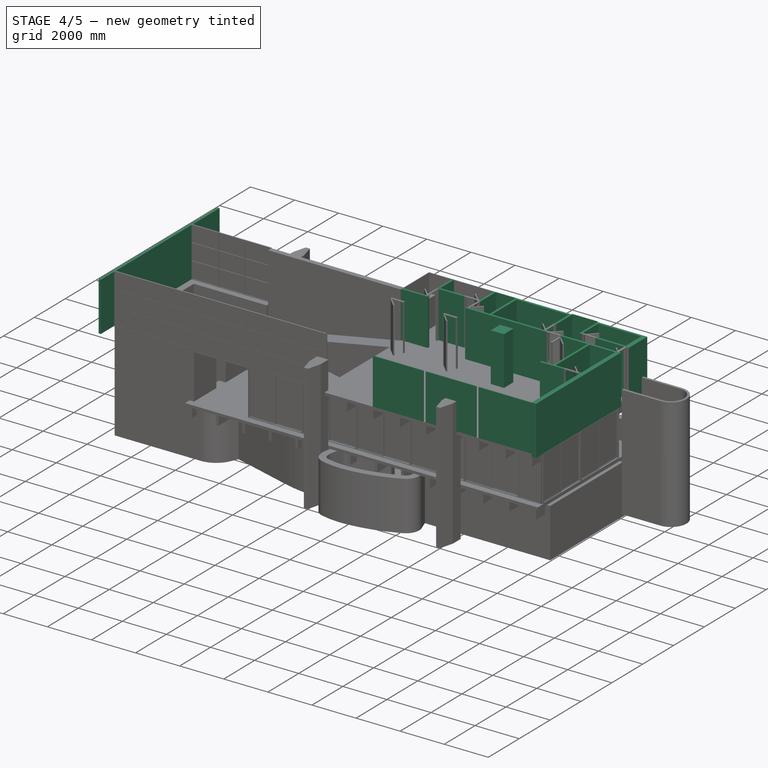
[diagram: stage 4 of 5 — iso view after this stage's code; geometry added in this stage tinted green]
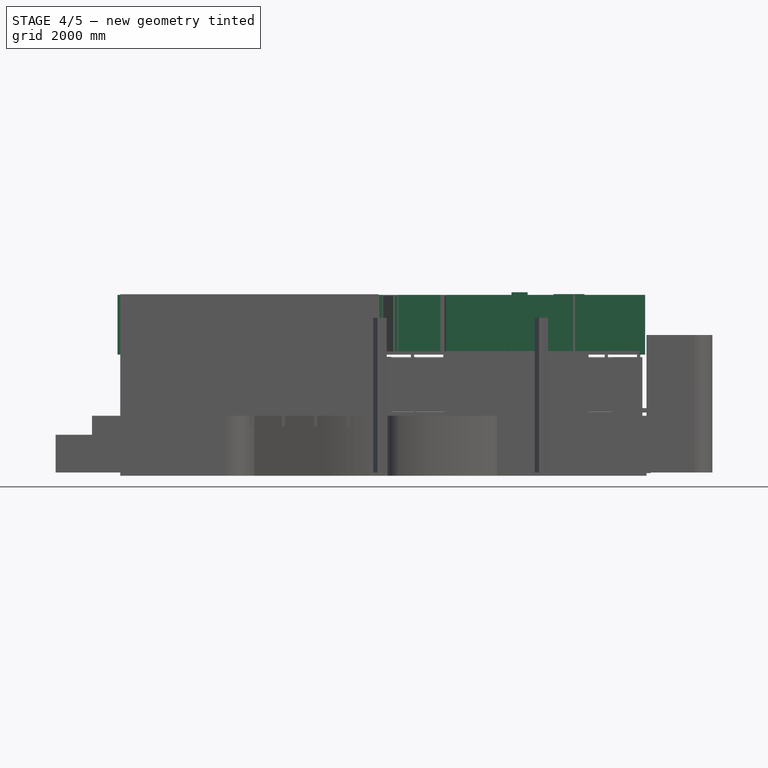
[diagram: stage 4 of 5 — front view after this stage's code; geometry added in this stage tinted green]
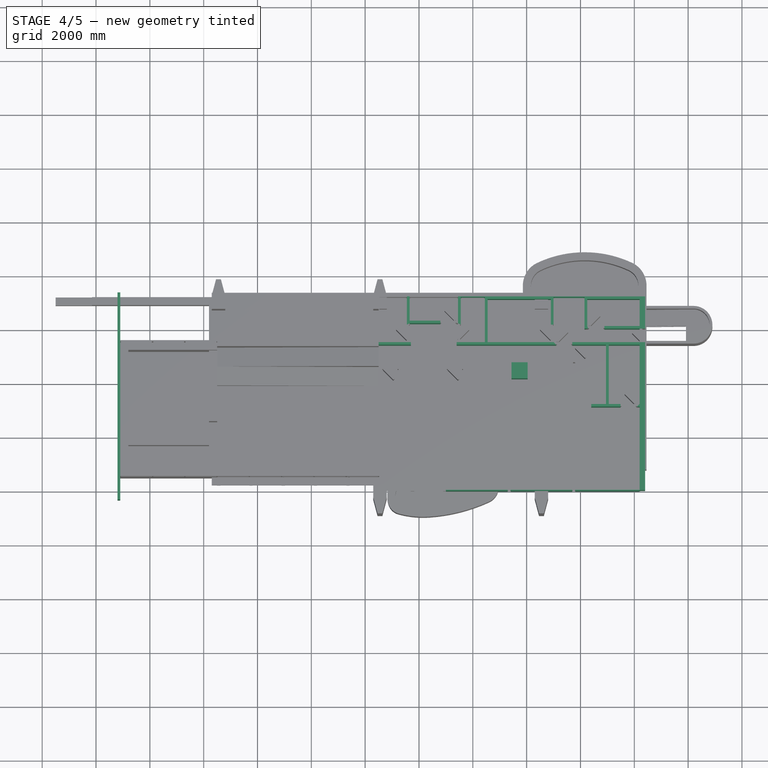
[diagram: stage 4 of 5 — top view after this stage's code; geometry added in this stage tinted green]
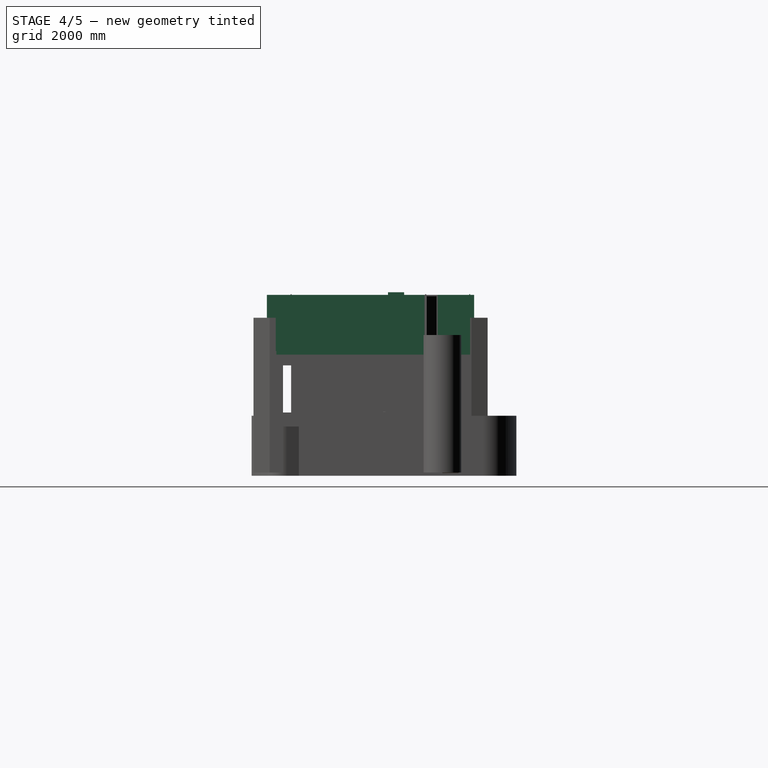
[diagram: stage 4 of 5 — right view after this stage's code; geometry added in this stage tinted green]
FEATURE [Sketcher::SketchObject] WallTrace014
  ArcFitTolerance = 0
  FullyConstrained = false
  MakeInternals = false
  Placement = pos=(-2600,19450,4500) rot=(0,0,1;0rad)
  sketch-geometry (1):
    g0: LineSegment StartX=3600 StartY=1900 StartZ=0 EndX=3600 EndY=-300 EndZ=0
FEATURE [Part::FeaturePython] Wall028  label="Inner wall"  # Arch/BIM 166 (typed FeaturePython)
  Align = 2
  ArchSketchData = true
  Area = 4619340
  Base = -> WallTrace014
  BlockHeight = 0
  BlockLength = 0
  CountBroken = 0
  CountEntire = 0
  Face = 0
  Height = 2099.7
  HorizontalArea = 220000
  IfcData = attributes={"GlobalId": {"name": "GlobalId", "type": "IfcGloballyUniqueId", "is_enum": false, "enum_values": []}, "Description": {"... (+533 chars omitted),+1 more (map truncated)
  IfcType = 166
  Joint = 0
  Length = 2200
  MakeBlocks = false
  MoveBase = false
  MoveWithHost = false
  Normal = (0,0,1)
  OffsetFirst = 0
  OffsetSecond = 0
  PerimeterLength = 4600
  PredefinedType = 0
  VerticalArea = 9658620
  Width = 100
FEATURE [Sketcher::SketchObject] WallTrace015
  ArcFitTolerance = 0
  FullyConstrained = false
  MakeInternals = false
  Placement = pos=(-2600,19450,4500) rot=(0,0,1;0rad)
  sketch-geometry (1):
    g0: LineSegment StartX=3000 StartY=-300 StartZ=0 EndX=4800 EndY=-300 EndZ=0
FEATURE [Part::FeaturePython] Wall029  label="Inner wall"  # Arch/BIM 166 (typed FeaturePython)
  Align = 0
  ArchSketchData = true
  Area = 3.77946e+06
  Base = -> WallTrace015
  BlockHeight = 0
  BlockLength = 0
  CountBroken = 0
  CountEntire = 0
  Face = 0
  Height = 2099.7
  HorizontalArea = 180000
  IfcData = attributes={"GlobalId": {"name": "GlobalId", "type": "IfcGloballyUniqueId", "is_enum": false, "enum_values": []}, "Description": {"... (+533 chars omitted),+1 more (map truncated)
  IfcType = 166
  Joint = 0
  Length = 1800
  MakeBlocks = false
  MoveBase = false
  MoveWithHost = false
  Normal = (0,0,1)
  OffsetFirst = 0
  OffsetSecond = 0
  PerimeterLength = 3800
  PredefinedType = 0
  VerticalArea = 7.97886e+06
  Width = 100
FEATURE [Sketcher::SketchObject] WallTrace016
  ArcFitTolerance = 0
  FullyConstrained = false
  MakeInternals = false
  Placement = pos=(-2600,19450,4500) rot=(0,0,1;0rad)
  sketch-geometry (1):
    g0: LineSegment StartX=4900 StartY=1900 StartZ=0 EndX=4900 EndY=-3500 EndZ=0
FEATURE [Part::FeaturePython] Wall030  label="Inner wall"  # Arch/BIM 166 (typed FeaturePython)
  Align = 0
  ArchSketchData = true
  Area = 1.13384e+07
  Base = -> WallTrace016
  BlockHeight = 0
  BlockLength = 0
  CountBroken = 0
  CountEntire = 0
  Face = 0
  Height = 2099.7
  HorizontalArea = 540000
  IfcData = attributes={"GlobalId": {"name": "GlobalId", "type": "IfcGloballyUniqueId", "is_enum": false, "enum_values": []}, "Description": {"... (+533 chars omitted),+1 more (map truncated)
  IfcType = 166
  Joint = 0
  Length = 5400
  MakeBlocks = false
  MoveBase = false
  MoveWithHost = false
  Normal = (0,0,1)
  OffsetFirst = 0
  OffsetSecond = 0
  PerimeterLength = 11000
  PredefinedType = 0
  VerticalArea = 2.30967e+07
  Width = 100
FEATURE [Sketcher::SketchObject] WallTrace017
  ArcFitTolerance = 0
  FullyConstrained = false
  MakeInternals = false
  Placement = pos=(-2600,19450,4500) rot=(0,0,1;0rad)
  sketch-geometry (1):
    g0: LineSegment StartX=-3800 StartY=2000 StartZ=0 EndX=-3800 EndY=3700 EndZ=0
FEATURE [Sketcher::SketchObject] WallTrace018
  ArcFitTolerance = 0
  FullyConstrained = false
  MakeInternals = false
  Placement = pos=(-2600,19450,4500) rot=(0,0,1;0rad)
  sketch-geometry (1):
    g0: LineSegment StartX=-1900 StartY=2000 StartZ=0 EndX=-1900 EndY=3700 EndZ=0
FEATURE [Sketcher::SketchObject] WallTrace019
  ArcFitTolerance = 0
  FullyConstrained = false
  MakeInternals = false
  Placement = pos=(-2600,19450,4500) rot=(0,0,1;0rad)
  sketch-geometry (1):
    g0: LineSegment StartX=-3750 StartY=2700 StartZ=0 EndX=-1950 EndY=2700 EndZ=0
FEATURE [Part::FeaturePython] Wall033  label="Parede023"  # Arch/BIM 166 (typed FeaturePython)
  Align = 1
  ArchSketchData = true
  Area = 3.77946e+06
  Base = -> WallTrace019
  BlockHeight = 0
  BlockLength = 0
  CountBroken = 0
  CountEntire = 0
  Face = 0
  Height = 2099.7
  HorizontalArea = 180000
  IfcData = attributes={"GlobalId": {"name": "GlobalId", "type": "IfcGloballyUniqueId", "is_enum": false, "enum_values": []}, "Description": {"... (+533 chars omitted),+1 more (map truncated)
  IfcType = 166
  Joint = 0
  Length = 1800
  MakeBlocks = false
  MoveBase = false
  MoveWithHost = false
  Normal = (0,0,1)
  OffsetFirst = 0
  OffsetSecond = 0
  PerimeterLength = 3800
  PredefinedType = 0
  VerticalArea = 7.97886e+06
  Width = 100
FEATURE [Part::Part2DObjectPython] Wire008  # Draft 2D object (typed FeaturePython)
  Area = 0
  ChamferSize = 0
  Closed = false
  End = (-1050,21450,4500)
  FilletRadius = 0
  Length = 5750
  MakeFace = true
  Placement = pos=(-3500,21450,4500) rot=(0,0,1;0rad)
  Points = (4) [(0,0,0),(0,1650,0),(2450,1650,0),(2450,0,0)]
  Start = (-3500,21450,4500)
  Subdivisions = 0
FEATURE [Part::FeaturePython] Wall034  label="Inner wall"  # Arch/BIM 166 (typed FeaturePython)
  Align = 2
  ArchSketchData = true
  Area = 1.20733e+07
  Base = -> Wire008
  BlockHeight = 0
  BlockLength = 0
  CountBroken = 0
  CountEntire = 0
  Face = 0
  Height = 2099.7
  HorizontalArea = 575000
  IfcData = attributes={"GlobalId": {"name": "GlobalId", "type": "IfcGloballyUniqueId", "is_enum": false, "enum_values": []}, "Description": {"... (+533 chars omitted),+1 more (map truncated)
  IfcType = 166
  Joint = 0
  Length = 5750
  MakeBlocks = false
  MoveBase = false
  MoveWithHost = false
  Normal = (0,0,0)
  OffsetFirst = 0
  OffsetSecond = 0
  PerimeterLength = 11700
  PredefinedType = 0
  VerticalArea = 24566490
  Width = 100
FEATURE [Part::Part2DObjectPython] Rectangle012  # Draft 2D object (typed FeaturePython)
  Area = 0
  ChamferSize = 0
  Columns = 1
  FilletRadius = 0
  Height = 1100
  Length = 2050
  MakeFace = false
  Placement = pos=(200,22000,4500) rot=(0,0,1;0rad)
  Rows = 1
FEATURE [Part::FeaturePython] Wall035  label="Inner wall"  # Arch/BIM 166 (typed FeaturePython)
  Align = 2
  ArchSketchData = true
  Area = 1.32281e+07
  Base = -> Rectangle012
  BlockHeight = 0
  BlockLength = 0
  CountBroken = 0
  CountEntire = 0
  Face = 0
  Height = 2099.7
  HorizontalArea = 4530000
  IfcData = attributes={"GlobalId": {"name": "GlobalId", "type": "IfcGloballyUniqueId", "is_enum": false, "enum_values": []}, "Description": {"... (+533 chars omitted),+1 more (map truncated)
  IfcType = 166
  Joint = 0
  Length = 6300
  MakeBlocks = false
  MoveBase = false
  MoveWithHost = false
  Normal = (0,0,0)
  OffsetFirst = 0
  OffsetSecond = 0
  PerimeterLength = 12600
  PredefinedType = 0
  VerticalArea = 26456220
  Width = 100
FEATURE [Sketcher::SketchObject] WallTrace020
  ArcFitTolerance = 0
  FullyConstrained = false
  MakeInternals = false
  Placement = pos=(-2600,19450,4500) rot=(0,0,1;0rad)
  sketch-geometry (1):
    g0: LineSegment StartX=4900 StartY=2000 StartZ=0 EndX=4900 EndY=2500 EndZ=0
FEATURE [Part::FeaturePython] Wall036  label="Inner wall"  # Arch/BIM 166 (typed FeaturePython)
  Align = 1
  ArchSketchData = true
  Area = 1049850
  Base = -> WallTrace020
  BlockHeight = 0
  BlockLength = 0
  CountBroken = 0
  CountEntire = 0
  Face = 0
  Height = 2099.7
  HorizontalArea = 50000
  IfcData = attributes={"GlobalId": {"name": "GlobalId", "type": "IfcGloballyUniqueId", "is_enum": false, "enum_values": []}, "Description": {"... (+533 chars omitted),+1 more (map truncated)
  IfcType = 166
  Joint = 0
  Length = 500
  MakeBlocks = false
  MoveBase = false
  MoveWithHost = false
  Normal = (0,0,1)
  OffsetFirst = 0
  OffsetSecond = 0
  PerimeterLength = 1200
  PredefinedType = 0
  VerticalArea = 2.51964e+06
  Width = 100
FEATURE [Part::FeaturePython] Wall031  label="Parede021"  # Arch/BIM 166 (typed FeaturePython)
  Align = 2
  ArchSketchData = true
  Area = 3.56949e+06
  Base = -> WallTrace017
  BlockHeight = 0
  BlockLength = 0
  CountBroken = 0
  CountEntire = 0
  Face = 0
  Height = 2099.7
  HorizontalArea = 170000
  IfcData = attributes={"GlobalId": {"name": "GlobalId", "type": "IfcGloballyUniqueId", "is_enum": false, "enum_values": []}, "Description": {"... (+533 chars omitted),+1 more (map truncated)
  IfcType = 166
  Joint = 0
  Length = 1700
  MakeBlocks = false
  MoveBase = false
  MoveWithHost = false
  Normal = (0,0,1)
  OffsetFirst = 0
  OffsetSecond = 0
  PerimeterLength = 3600
  PredefinedType = 0
  VerticalArea = 7.55892e+06
  Width = 100
FEATURE [Part::FeaturePython] Wall025  label="Parede015"  # Arch/BIM 166 (typed FeaturePython)
  Align = 0
  ArchSketchData = true
  Area = 2519640
  Base = -> WallTrace011
  BlockHeight = 0
  BlockLength = 0
  CountBroken = 0
  CountEntire = 0
  Face = 0
  Height = 2099.7
  HorizontalArea = 120000
  IfcData = attributes={"GlobalId": {"name": "GlobalId", "type": "IfcGloballyUniqueId", "is_enum": false, "enum_values": []}, "Description": {"... (+533 chars omitted),+1 more (map truncated)
  IfcType = 166
  Joint = 0
  Length = 1200
  MakeBlocks = false
  MoveBase = false
  MoveWithHost = false
  Normal = (0,0,1)
  OffsetFirst = 0
  OffsetSecond = 0
  PerimeterLength = 2600
  PredefinedType = 0
  VerticalArea = 5459220
  Width = 100
FEATURE [Part::FeaturePython] Wall032  label="Inner wall"  # Arch/BIM 166 (typed FeaturePython)
  Additions = -> [Wall033,Wall025,Wall031]
  Align = 2
  ArchSketchData = true
  Area = 3.56949e+06
  Base = -> WallTrace018
  BlockHeight = 0
  BlockLength = 0
  CountBroken = 0
  CountEntire = 0
  Face = 0
  Height = 2099.7
  HorizontalArea = 640000
  IfcData = attributes={"GlobalId": {"name": "GlobalId", "type": "IfcGloballyUniqueId", "is_enum": false, "enum_values": []}, "Description": {"... (+533 chars omitted),+1 more (map truncated)
  IfcType = 166
  Joint = 0
  Length = 1700
  MakeBlocks = false
  MoveBase = false
  MoveWithHost = false
  Normal = (0,0,1)
  OffsetFirst = 0
  OffsetSecond = 0
  PerimeterLength = 13000
  PredefinedType = 0
  VerticalArea = 27296100
  Width = 100
FEATURE [Part::Part2DObjectPython] Rectangle020  # Draft 2D object (typed FeaturePython)
  Area = 360000
  ChamferSize = 0
  Columns = 1
  FilletRadius = 0
  Height = 600
  Length = 600
  MakeFace = true
  Placement = pos=(-6700,21500,4500) rot=(0,0,1;0rad)
  Rows = 1
FEATURE [Part::Extrusion] Extrude009  label="Extrude011"
  Base = -> Rectangle020
  Dir = (0,0,1)
  DirMode = 2
  FaceMakerClass = Part::FaceMakerBullseye
  FaceMakerMode = 3
  LengthFwd = 2200
  LengthRev = 0
  Solid = false
  Symmetric = false
FEATURE [Part::FeaturePython] Clone002  label="Extrude012"  # Draft clone (typed FeaturePython)
  AttacherType = Attacher::AttachEngine3D
  Fuse = false
  Objects = -> [Extrude009]
  Placement = pos=(1493.64,500,0) rot=(0,0,1;0rad)
  Scale = (1,1,1)
FEATURE [Part::FeaturePython] Clone003  label="Extrude013"  # Draft clone (typed FeaturePython)
  AttacherType = Attacher::AttachEngine3D
  Fuse = false
  Objects = -> [Clone002]
  Placement = pos=(1893.64,0,0) rot=(0,0,1;0rad)
  Scale = (1,1,1)
FEATURE [Part::FeaturePython] Clone004  label="Extrude014"  # Draft clone (typed FeaturePython)
  AttacherType = Attacher::AttachEngine3D
  Fuse = false
  Objects = -> [Clone002]
  Placement = pos=(5293.64,0,0) rot=(0,0,1;0rad)
  Scale = (1,1,1)
FEATURE [Part::FeaturePython] Clone005  label="Extrude015"  # Draft clone (typed FeaturePython)
  AttacherType = Attacher::AttachEngine3D
  Fuse = false
  Objects = -> [Clone004]
  Placement = pos=(5793.64,-300,0) rot=(0,0,1;0rad)
  Scale = (1,1,1)
FEATURE [Part::FeaturePython] Clone006  label="Extrude016"  # Draft clone (typed FeaturePython)
  AttacherType = Attacher::AttachEngine3D
  Fuse = false
  Objects = -> [Clone005]
  Placement = pos=(6187.27,-800,0) rot=(0,0,1;0rad)
  Scale = (1,1,1)
FEATURE [Part::FeaturePython] Clone007  label="Extrude017"  # Draft clone (typed FeaturePython)
  AttacherType = Attacher::AttachEngine3D
  Fuse = false
  Objects = -> [Clone006]
  Placement = pos=(6987.27,300,0) rot=(0,0,1;0rad)
  Scale = (1,1,1)
FEATURE [Part::FeaturePython] Clone008  label="Extrude018"  # Draft clone (typed FeaturePython)
  AttacherType = Attacher::AttachEngine3D
  Fuse = false
  Objects = -> [Clone006]
  Placement = pos=(8187.27,-2600,0) rot=(0,0,1;0rad)
  Scale = (1,1,1)
FEATURE [Part::FeaturePython] Clone009  label="Extrude019"  # Draft clone (typed FeaturePython)
  AttacherType = Attacher::AttachEngine3D
  Fuse = false
  Objects = -> [Clone008]
  Placement = pos=(4137.27,-1400,0) rot=(0,0,1;0rad)
  Scale = (1,1,1)
FEATURE [Part::Part2DObjectPython] Rectangle021  # Draft 2D object (typed FeaturePython)
  Area = 328182
  ChamferSize = 0
  Columns = 1
  FilletRadius = 0
  Height = 500
  Length = 656.363
  MakeFace = true
  Placement = pos=(1919.97,21450,4500) rot=(0,0,1;0rad)
  Rows = 1
FEATURE [Part::Extrusion] Extrude010  label="Extrude022"
  Base = -> Rectangle021
  Dir = (0,0,1)
  DirMode = 2
  FaceMakerClass = Part::FaceMakerBullseye
  FaceMakerMode = 3
  LengthFwd = 2200
  LengthRev = 0
  Solid = false
  Symmetric = false
FEATURE [Part::Part2DObjectPython] Rectangle022  # Draft 2D object (typed FeaturePython)
  Area = 4.69822e+06
  ChamferSize = 0
  Columns = 3
  FilletRadius = 0
  Height = 2069.7
  Length = 2270
  MakeFace = true
  Placement = pos=(-7415,15950,4500) rot=(1,0,0;1.5708rad)
  Rows = 3
FEATURE [Part::FeaturePython] CurtainWall  label="Square window 230x210"  # Arch/BIM 33 (typed FeaturePython)
  Base = -> Rectangle022
  CenterProfiles = true
  DiagonalMullionNumber = 0
  DiagonalMullionSize = 50
  GlobalId = 1K1aQmbdPDmxarlb806NrQ
  Height = 3000
  HorizontalArea = 0
  HorizontalMullionAlignment = false
  HorizontalMullionHeight = 30
  HorizontalMullionNumber = 12
  HorizontalMullionWidth = 30
  HorizontalSections = 1
  IfcData = IfcUID=1K1aQmbdPDmxarlb806NrQ,+2 more (map truncated)
  IfcType = 33
  MoveBase = false
  MoveWithHost = false
  PanelNumber = 9
  PanelThickness = 20
  PerimeterLength = 0
  Placement = pos=(30,0,15) rot=(0,0,1;0rad)
  PredefinedType = 0
  Refine = true
  SwapHorizontalVertical = false
  VerticalArea = 0
  VerticalDirection = (0,0,1)
  VerticalMullionAlignment = false
  VerticalMullionHeight = 30
  VerticalMullionNumber = 12
  VerticalMullionWidth = 30
  VerticalSections = 1
FEATURE [Part::FeaturePython] Component  label="Square window 230x210"  # Arch/BIM 33 (typed FeaturePython)
  CloneOf = -> CurtainWall
  GlobalId = 0W4xlvDff2CR4GbJHfdHDN
  HorizontalArea = 0
  IfcData = IfcUID=0W4xlvDff2CR4GbJHfdHDN,+2 more (map truncated)
  IfcType = 33
  MoveBase = false
  MoveWithHost = false
  PerimeterLength = 0
  Placement = pos=(2430,0,15) rot=(0,0,1;0rad)
  PredefinedType = 0
  VerticalArea = 0
FEATURE [Part::FeaturePython] Component001  label="Square window 230x210"  # Arch/BIM 33 (typed FeaturePython)
  CloneOf = -> CurtainWall
  GlobalId = 1zFxmoXXn2190KB3Dav4ox
  HorizontalArea = 0
  IfcData = IfcUID=1zFxmoXXn2190KB3Dav4ox,+2 more (map truncated)
  IfcType = 33
  MoveBase = false
  MoveWithHost = false
  PerimeterLength = 0
  Placement = pos=(4830,0,15) rot=(0,0,1;0rad)
  PredefinedType = 0
  VerticalArea = 0
FEATURE [Part::Part2DObjectPython] Rectangle023  # Draft 2D object (typed FeaturePython)
  Area = 4.90519e+06
  ChamferSize = 0
  Columns = 3
  FilletRadius = 0
  Height = 2069.7
  Length = 2370
  MakeFace = true
  Placement = pos=(-7415,15950,4500) rot=(1,0,0;1.5708rad)
  Rows = 3
FEATURE [Part::FeaturePython] CurtainWall001  label="Square window 230x210"  # Arch/BIM 33 (typed FeaturePython)
  Base = -> Rectangle023
  CenterProfiles = true
  DiagonalMullionNumber = 0
  DiagonalMullionSize = 50
  GlobalId = 259JWLCz9AfffkSAPNleMJ
  Height = 3000
  HorizontalArea = 0
  HorizontalMullionAlignment = false
  HorizontalMullionHeight = 30
  HorizontalMullionNumber = 12
  HorizontalMullionWidth = 30
  HorizontalSections = 1
  IfcData = IfcUID=259JWLCz9AfffkSAPNleMJ,+2 more (map truncated)
  IfcType = 33
  MoveBase = false
  MoveWithHost = false
  PanelNumber = 9
  PanelThickness = 20
  PerimeterLength = 0
  Placement = pos=(7230,0,15) rot=(0,0,1;0rad)
  PredefinedType = 0
  Refine = true
  SwapHorizontalVertical = false
  VerticalArea = 0
  VerticalDirection = (0,0,1)
  VerticalMullionAlignment = false
  VerticalMullionHeight = 30
  VerticalMullionNumber = 12
  VerticalMullionWidth = 30
  VerticalSections = 1
FEATURE [Sketcher::SketchObject] Sketch002
  ArcFitTolerance = 0
  FullyConstrained = true
  MakeInternals = false
  Placement = pos=(150,23150,4530) rot=(0,0.707107,0.707107;3.14159rad)
  sketch-geometry (8):
    g0: LineSegment StartX=0 StartY=0 StartZ=0 EndX=1150 EndY=0 EndZ=0
    g1: LineSegment StartX=1150 StartY=0 StartZ=0 EndX=1150 EndY=2099.7 EndZ=0
    g2: LineSegment StartX=1150 StartY=2099.7 StartZ=0 EndX=0 EndY=2099.7 EndZ=0
    g3: LineSegment StartX=0 StartY=2099.7 StartZ=0 EndX=0 EndY=0 EndZ=0
    g4: LineSegment StartX=30 StartY=30 StartZ=0 EndX=1120 EndY=30 EndZ=0
    g5: LineSegment StartX=1120 StartY=30 StartZ=0 EndX=1120 EndY=2069.7 EndZ=0
    g6: LineSegment StartX=1120 StartY=2069.7 StartZ=0 EndX=30 EndY=2069.7 EndZ=0
    g7: LineSegment StartX=30 StartY=2069.7 StartZ=0 EndX=30 EndY=30 EndZ=0
  constraints (23):
    c: Coincident(g0,g1)
    c: Coincident(g1,g2)
    c: Coincident(g2,g3)
    c: Coincident(g3,g0)
    c: Horizontal(g0)
    c: Horizontal(g2)
    c: Vertical(g1)
    c: Vertical(g3)
    c: Coincident(g4,g5)
    c: Coincident(g5,g6)
    c: Coincident(g6,g7)
    c: Coincident(g7,g4)
    c: Horizontal(g4)
    c: Horizontal(g6)
    c: Vertical(g5)
    c: Vertical(g7)
    c: DistanceY(g1) = 2099.7  'Height'
    c: DistanceX(g0) = 1150  'Width'
    c: DistanceY(g6,g2) = 30  'Frame1'
    c: DistanceX(g2,g6) = 30  'Frame2'
    c: DistanceX(g4,g0) = 30  'Frame3'
    c: DistanceY(g0,g4) = 30  'Frame4'
    c: Coincident(g0,g-1)
FEATURE [Part::FeaturePython] Window015  label="Bathroom window"  # Arch/BIM 170 (typed FeaturePython)
  Area = 2414655
  Base = -> Sketch002
  Frame = 30
  GlobalId = 3fG8w4KDrEwfRUD3p$PxHm
  Height = 2099.7
  HoleDepth = 0
  HoleWire = 0
  HorizontalArea = 0
  IfcData = IfcUID=3fG8w4KDrEwfRUD3p$PxHm,+2 more (map truncated)
  IfcType = 170
  LouvreSpacing = 0
  LouvreWidth = 0
  MoveBase = false
  MoveWithHost = true
  Normal = (0,-1,2e-16)
  Offset = 30
  Opening = 0
  OverallHeight = 2099.7
  OverallWidth = 1150
  PartitioningType = 0
  PerimeterLength = 0
  Placement = pos=(0,30,0) rot=(0,0,1;0rad)
  PredefinedType = 0
  Preset = 1
  SymbolElevation = false
  SymbolPlan = false
  VerticalArea = 0
  Width = 1150
  WindowParts = OuterFrame | Frame | Wire0,Wire1 | 0.0+V | 0.00+V | Glass | Glass panel | Wire1 | 3.0 | 15.0+V
  expr: OverallHeight = .Height.Value
  expr: OverallWidth = .Width.Value
FEATURE [Sketcher::SketchObject] Sketch003
  ArcFitTolerance = 0
  FullyConstrained = true
  MakeInternals = false
  Placement = pos=(-351.013,14019.3,-9334.09) rot=(0,0.707107,0.707107;3.14159rad)
  sketch-geometry (8):
    g0: LineSegment StartX=0 StartY=0 StartZ=0 EndX=900 EndY=0 EndZ=0
    g1: LineSegment StartX=900 StartY=0 StartZ=0 EndX=900 EndY=2099.7 EndZ=0
    g2: LineSegment StartX=900 StartY=2099.7 StartZ=0 EndX=0 EndY=2099.7 EndZ=0
    g3: LineSegment StartX=0 StartY=2099.7 StartZ=0 EndX=0 EndY=0 EndZ=0
    g4: LineSegment StartX=30 StartY=30 StartZ=0 EndX=870 EndY=30 EndZ=0
    g5: LineSegment StartX=870 StartY=30 StartZ=0 EndX=870 EndY=2069.7 EndZ=0
    g6: LineSegment StartX=870 StartY=2069.7 StartZ=0 EndX=30 EndY=2069.7 EndZ=0
    g7: LineSegment StartX=30 StartY=2069.7 StartZ=0 EndX=30 EndY=30 EndZ=0
  constraints (23):
    c: Coincident(g0,g1)
    c: Coincident(g1,g2)
    c: Coincident(g2,g3)
    c: Coincident(g3,g0)
    c: Horizontal(g0)
    c: Horizontal(g2)
    c: Vertical(g1)
    c: Vertical(g3)
    c: Coincident(g4,g5)
    c: Coincident(g5,g6)
    c: Coincident(g6,g7)
    c: Coincident(g7,g4)
    c: Horizontal(g4)
    c: Horizontal(g6)
    c: Vertical(g5)
    c: Vertical(g7)
    c: DistanceY(g1) = 2099.7  'Height'
    c: DistanceX(g0) = 900  'Width'
    c: DistanceY(g6,g2) = 30  'Frame1'
    c: DistanceX(g2,g6) = 30  'Frame2'
    c: DistanceX(g4,g0) = 30  'Frame3'
    c: DistanceY(g0,g4) = 30  'Frame4'
    c: Coincident(g0,g-1)
FEATURE [Part::FeaturePython] Window016  label="Bathroom window"  # Arch/BIM 170 (typed FeaturePython)
  Area = 1.88973e+06
  Base = -> Sketch003
  Frame = 30
  GlobalId = 0zFtAkMKX8mhPDc2zzKnd2
  Height = 2099.7
  HoleDepth = 0
  HoleWire = 0
  HorizontalArea = 0
  IfcData = IfcUID=0zFtAkMKX8mhPDc2zzKnd2,+2 more (map truncated)
  IfcType = 170
  LouvreSpacing = 0
  LouvreWidth = 0
  MoveBase = false
  MoveWithHost = true
  Normal = (0,-1,2e-16)
  Offset = 30
  Opening = 0
  OverallHeight = 2099.7
  OverallWidth = 900
  PartitioningType = 0
  PerimeterLength = 0
  Placement = pos=(-3198.99,9160.66,13834.1) rot=(0,0,1;0rad)
  PredefinedType = 0
  Preset = 1
  SymbolElevation = false
  SymbolPlan = false
  VerticalArea = 0
  Width = 900
  WindowParts = OuterFrame | Frame | Wire0,Wire1 | 0.0+V | 0.00+V | Glass | Glass panel | Wire1 | 3.0 | 15.0+V
  expr: OverallHeight = .Height.Value
  expr: OverallWidth = .Width.Value
FEATURE [Part::FeaturePython] Wall026  label="Inner wall"  # Arch/BIM 166 (typed FeaturePython)
  Additions = -> [Wall030,Wall036,Wall032,Wall034,Wall035,Wall028,Wall029]
  Align = 0
  ArchSketchData = true
  Area = 1.44879e+07
  Base = -> WallTrace012
  BlockHeight = 0
  BlockLength = 0
  CountBroken = 0
  CountEntire = 0
  Face = 0
  GlobalId = 102qVKt_P739zVPQIGxxmX
  Height = 2099.7
  HorizontalArea = 0
  IfcData = IfcUID=102qVKt_P739zVPQIGxxmX,+2 more (map truncated)
  IfcType = 166
  Joint = 0
  Length = 6900
  MakeBlocks = false
  MoveBase = false
  MoveWithHost = false
  Normal = (0,0,1)
  OffsetFirst = 0
  OffsetSecond = 0
  PerimeterLength = 0
  PredefinedType = 0
  Subtractions = -> [Clone008,Clone007,Clone005,Clone004,Clone003,Clone002,Extrude009,Extrude010]
  VerticalArea = 0
  Width = 100
FEATURE [Part::Part2DObjectPython] Line023  # Draft 2D object (typed FeaturePython)
  Area = 0
  ChamferSize = 0
  Closed = false
  End = (-17100,15600,4380)
  FilletRadius = 0
  Length = 7700
  MakeFace = true
  Placement = pos=(-17100,23300,4380) rot=(0,0,1;0rad)
  Points = (2) [(0,0,0),(0,-7700,0)]
  Start = (-17100,23300,4380)
  Subdivisions = 0
FEATURE [Part::FeaturePython] Wall040  label="Exterior wall"  # Arch/BIM 166 (typed FeaturePython)
  Align = 0
  ArchSketchData = true
  Area = 17091690
  Base = -> Line023
  BlockHeight = 0
  BlockLength = 0
  CountBroken = 0
  CountEntire = 0
  Face = 0
  GlobalId = 05SSpb229AeRIoelbimAzq
  Height = 2219.7
  HorizontalArea = 770000
  IfcData = IfcUID=05SSpb229AeRIoelbimAzq,+2 more (map truncated)
  IfcType = 166
  Joint = 0
  Length = 7700
  MakeBlocks = false
  MoveBase = false
  MoveWithHost = false
  Normal = (0,0,0)
  OffsetFirst = 0
  OffsetSecond = 0
  PerimeterLength = 15600
  PredefinedType = 0
  VerticalArea = 3.46273e+07
  Width = 100
FEATURE [Sketcher::SketchObject] WallTrace023
  ArcFitTolerance = 0
  FullyConstrained = false
  MakeInternals = false
  Placement = pos=(-2600,19550,4500) rot=(0,0,1;0rad)
  sketch-geometry (1):
    g0: LineSegment StartX=4900 StartY=-3600 StartZ=0 EndX=4900 EndY=1900 EndZ=0
FEATURE [Part::FeaturePython] Wall041  label="Exterior wall"  # Arch/BIM 166 (typed FeaturePython)
  Align = 2
  ArchSketchData = true
  Area = 1.22083e+07
  Base = -> WallTrace023
  BlockHeight = 0
  BlockLength = 0
  CountBroken = 0
  CountEntire = 0
  Face = 0
  GlobalId = 1rVJbdx4T1PeO_46tlVOvZ
  Height = 2219.7
  HorizontalArea = 1100000
  IfcData = IfcUID=1rVJbdx4T1PeO_46tlVOvZ,+2 more (map truncated)
  IfcType = 166
  Joint = 0
  Length = 5500
  MakeBlocks = false
  MoveBase = false
  MoveWithHost = false
  Normal = (0,0,1)
  OffsetFirst = 0
  OffsetSecond = 0
  PerimeterLength = 11400
  Placement = pos=(0,0,-120) rot=(0,0,1;0rad)
  PredefinedType = 0
  VerticalArea = 2.53046e+07
  Width = 200
FEATURE [Sketcher::SketchObject] WallTrace024
  ArcFitTolerance = 0
  FullyConstrained = false
  MakeInternals = false
  Placement = pos=(-2600,19550,4500) rot=(0,0,1;0rad)
  sketch-geometry (1):
    g0: LineSegment StartX=4900 StartY=2400 StartZ=0 EndX=4900 EndY=3600 EndZ=0
FEATURE [Part::FeaturePython] Wall042  label="Exterior wall"  # Arch/BIM 166 (typed FeaturePython)
  Align = 2
  ArchSketchData = true
  Area = 2663640
  Base = -> WallTrace024
  BlockHeight = 0
  BlockLength = 0
  CountBroken = 0
  CountEntire = 0
  Face = 0
  GlobalId = 32j22IKCj2T8wU_YZiJpzR
  Height = 2219.7
  HorizontalArea = 240000
  IfcData = IfcUID=32j22IKCj2T8wU_YZiJpzR,+2 more (map truncated)
  IfcType = 166
  Joint = 0
  Length = 1200
  MakeBlocks = false
  MoveBase = false
  MoveWithHost = false
  Normal = (0,0,1)
  OffsetFirst = 0
  OffsetSecond = 0
  PerimeterLength = 2800
  Placement = pos=(0,0,-120) rot=(0,0,1;0rad)
  PredefinedType = 0
  VerticalArea = 6215160
  Width = 200
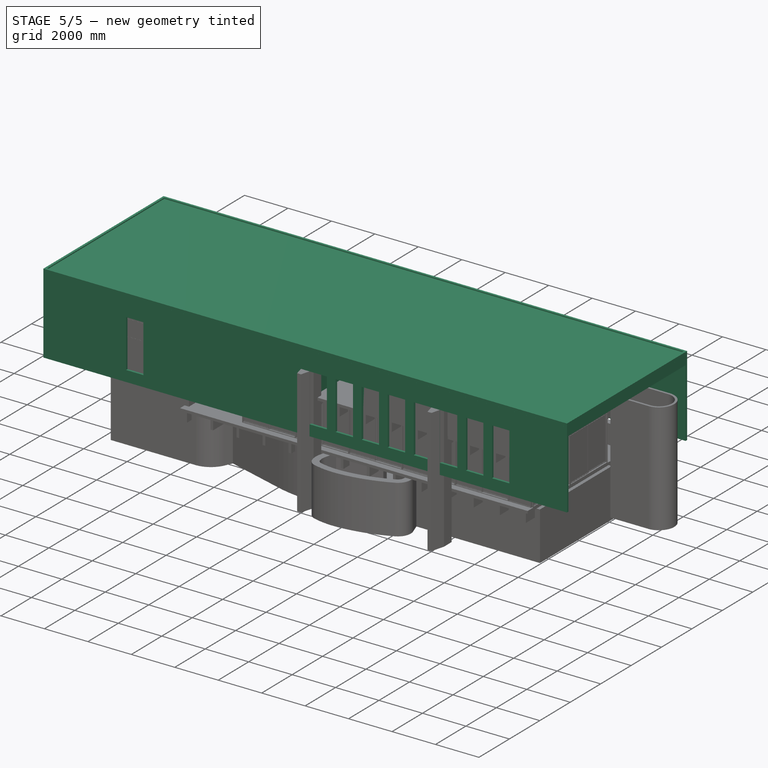
[diagram: stage 5 of 5 — iso view after this stage's code; geometry added in this stage tinted green]
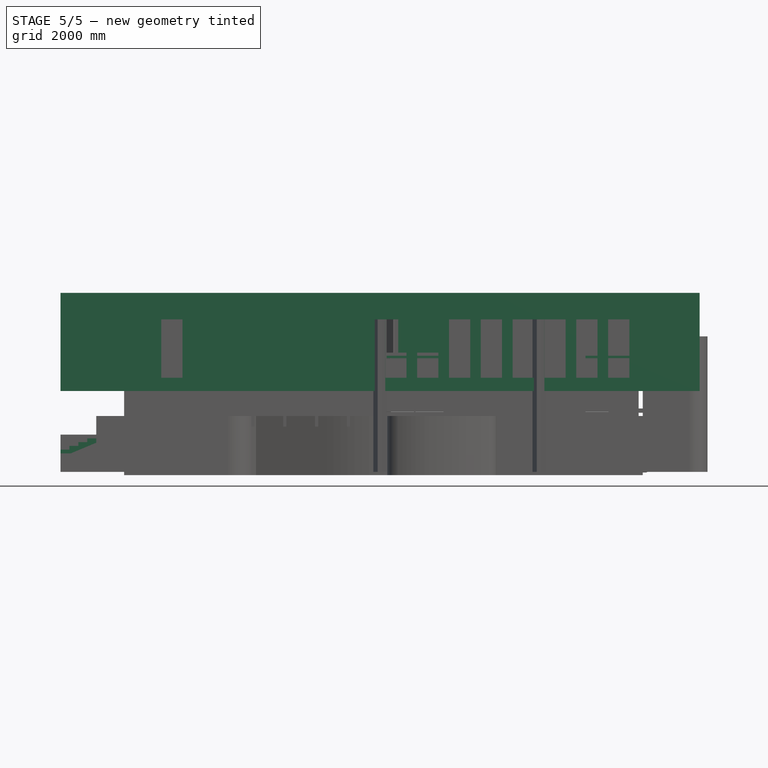
[diagram: stage 5 of 5 — front view after this stage's code; geometry added in this stage tinted green]
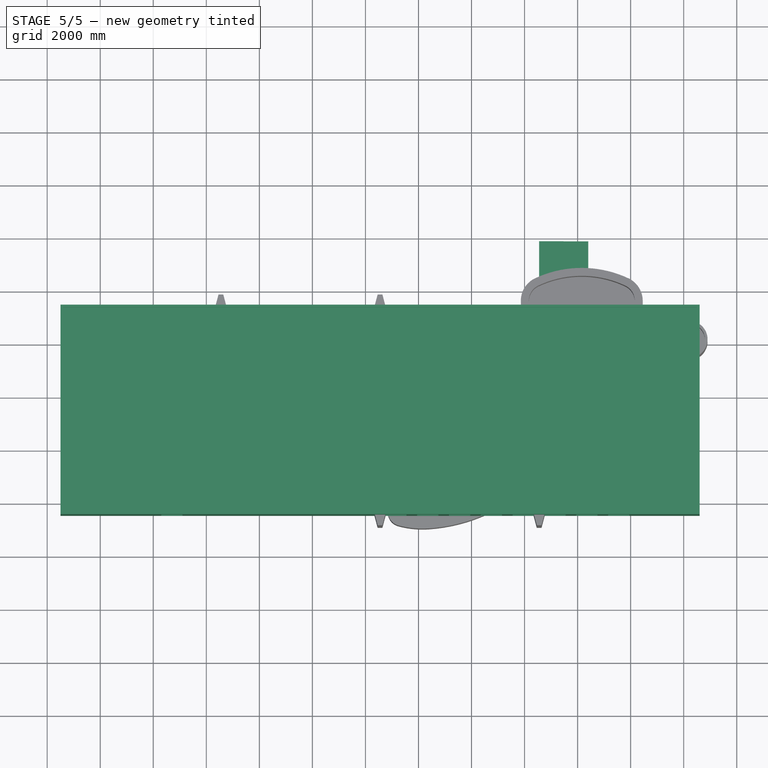
[diagram: stage 5 of 5 — top view after this stage's code; geometry added in this stage tinted green]
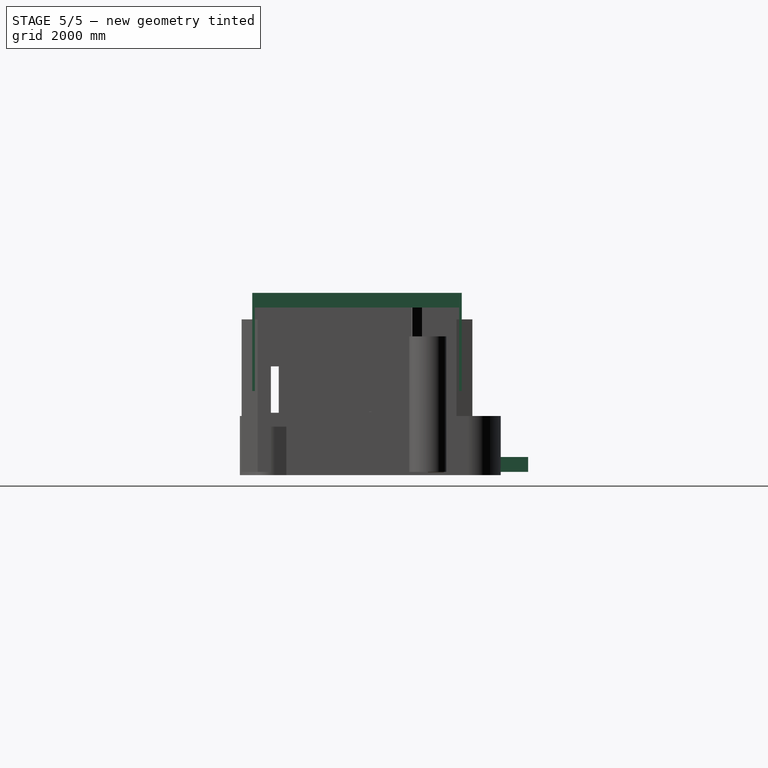
[diagram: stage 5 of 5 — right view after this stage's code; geometry added in this stage tinted green]
FEATURE [App::DocumentObjectGroup] Group002  label="Axes"
  Group = -> [Axis,Axis001,Axis002,Axis003,Axis004,Axis005,Axis006,Axis007,Dimension,Dimension001,Dimension002,Dimension003,Dimension004,Dimension005,Dimension006,Dimension007]
FEATURE [Part::Part2DObjectPython] Rectangle  # Draft 2D object (typed FeaturePython)
  Area = 0
  ChamferSize = 0
  Columns = 1
  FilletRadius = 0
  Height = 7900
  Length = 24100
  MakeFace = false
  Placement = pos=(-19500,15500,6749.65) rot=(0,0,1;0rad)
  Rows = 1
FEATURE [Part::FeaturePython] Structure006  label="Roof slab"  # Arch/BIM 118 (typed FeaturePython)
  Base = -> Rectangle
  BaseMirror = false
  BaseOffsetX = 0
  BaseOffsetY = 0
  BasePerpendicularToTool = false
  BaseRotation = 0
  ComputedLength = 100
  FaceMaker = 0
  GlobalId = 1K24pRQVz7Xf_b_S_1TDfw
  Height = 100
  HorizontalArea = 190390000
  IfcData = IfcUID=1K24pRQVz7Xf_b_S_1TDfw,+2 more (map truncated)
  IfcType = 118
  Length = 7900
  MoveBase = false
  MoveWithHost = false
  Nodes = (4) [(-19500,15500,6749.65),(4600,15500,6749.65),(4600,23400,6749.65),(-19500,23400,6749.65)]
  NodesOffset = 0
  Normal = (0,0,-1)
  PerimeterLength = 64000
  Placement = pos=(0,0,-50) rot=(0,0,1;0rad)
  PredefinedType = 0
  ToolOffsetFirst = 0
  ToolOffsetLast = 0
  VerticalArea = 6400000
  Width = 24100
FEATURE [Part::FeaturePython] Wall  label="Slab border"  # Arch/BIM 166 (typed FeaturePython)
  Align = 1
  ArchSketchData = true
  Area = 3200000
  Base = -> Rectangle
  BlockHeight = 0
  BlockLength = 0
  CountBroken = 0
  CountEntire = 0
  Face = 0
  GlobalId = 0MKJeArXn2Gg$SAyDEsZ5g
  Height = 50
  HorizontalArea = 374420000
  IfcData = IfcUID=0MKJeArXn2Gg$SAyDEsZ5g,+2 more (map truncated)
  IfcType = 166
  Joint = 0
  Length = 64000
  MakeBlocks = false
  MoveBase = false
  MoveWithHost = false
  Normal = (0,0,0)
  OffsetFirst = 0
  OffsetSecond = 0
  PerimeterLength = 127200
  Placement = pos=(0,0,-50) rot=(0,0,1;0rad)
  PredefinedType = 0
  VerticalArea = 6360000
  Width = 100
FEATURE [Part::Part2DObjectPython] Rectangle003  # Draft 2D object (typed FeaturePython)
  Area = 48000
  ChamferSize = 0
  Columns = 1
  FilletRadius = 0
  Height = 400
  Length = 120
  MakeFace = true
  Placement = pos=(-19500,15600,6200) rot=(1,0,0;1.5708rad)
  Rows = 1
FEATURE [Part::FeaturePython] Structure009  label="Beam"  # Arch/BIM 13 (typed FeaturePython)
  Base = -> Rectangle003
  BaseMirror = false
  BaseOffsetX = 0
  BaseOffsetY = 0
  BasePerpendicularToTool = false
  BaseRotation = 0
  ComputedLength = 7700
  FaceMaker = 0
  Height = 7700
  HorizontalArea = 924000
  IfcData = attributes={"GlobalId": {"name": "GlobalId", "type": "IfcGloballyUniqueId", "is_enum": false, "enum_values": []}, "Description": {"... (+484 chars omitted),+1 more (map truncated)
  IfcType = 13
  Length = 0
  MoveBase = false
  MoveWithHost = false
  Nodes = (2) [(-19440,15600,6400),(-19440,23300,6400)]
  NodesOffset = 0
  Normal = (0,1,0)
  PerimeterLength = 15640
  PredefinedType = 0
  ToolOffsetFirst = 0
  ToolOffsetLast = 0
  VerticalArea = 6.256e+06
  Width = 100
FEATURE [Part::FeaturePython] Array  label="Roof beams"  # Draft array (typed FeaturePython)
  AlwaysSyncPlacement = false
  Angle = 360
  ArrayType = 0
  Axis = (0,0,1)
  Base = -> Structure009
  Center = (0,0,0)
  Count = 20
  ExpandArray = false
  Fuse = false
  IntervalAxis = (0,0,0)
  IntervalX = (1199,0,0)
  IntervalY = (0,100,0)
  IntervalZ = (0,0,100)
  NumberCircles = 3
  NumberPolar = 5
  NumberX = 20
  NumberY = 1
  NumberZ = 1
  PlacementList = 20 placements: arithmetic series from (0,0,0) step (1199,0,0) to (22781,0,0)
  RadialDistance = 50
  ScaleList = (20) [(1,1,1),(1,1,1),(1,1,1),(1,1,1),(1,1,1),(1,1,1),(1,1,1),(1,1,1),(1,1,1),(1,1,1),(1,1,1),(1,1,1),(1,1,1),(1,1,1),(1,1,1),(1,1,1),(1,1,1),(1,1,1),+2 more]
  Symmetry = 1
  TangentialDistance = 25
FEATURE [Part::Part2DObjectPython] Rectangle004  # Draft 2D object (typed FeaturePython)
  Area = 640000
  ChamferSize = 0
  Columns = 1
  FilletRadius = 0
  Height = 800
  Length = 800
  MakeFace = true
  Placement = pos=(-2500,22900,3550) rot=(0,0,1;0rad)
  Rows = 1
FEATURE [Part::Extrusion] Extrude
  Base = -> Rectangle004
  Dir = (0,0,1)
  DirMode = 2
  FaceMakerClass = Part::FaceMakerBullseye
  FaceMakerMode = 3
  LengthFwd = 2200
  LengthRev = 0
  Solid = false
  Symmetric = false
FEATURE [Part::FeaturePython] Clone  label="Extrude001"  # Draft clone (typed FeaturePython)
  AttacherType = Attacher::AttachEngine3D
  Fuse = false
  Objects = -> [Extrude]
  Placement = pos=(1300,0,0) rot=(0,0,1;0rad)
  Scale = (1,1,1)
FEATURE [Part::FeaturePython] Wall002  label="Concrete wall north"  # Arch/BIM 166 (typed FeaturePython)
  Align = 1
  ArchSketchData = true
  Area = 85555000
  Base = -> WallTrace
  BlockHeight = 0
  BlockLength = 0
  CountBroken = 0
  CountEntire = 0
  Face = 0
  GlobalId = 18qt0BucjDDe7EOmXjY2qX
  Height = 3550
  HorizontalArea = 2410000
  IfcData = IfcUID=18qt0BucjDDe7EOmXjY2qX,+2 more (map truncated)
  IfcType = 166
  Joint = 0
  Length = 24100
  MakeBlocks = false
  MoveBase = false
  MoveWithHost = false
  Normal = (0,0,1)
  OffsetFirst = 0
  OffsetSecond = 0
  PerimeterLength = 48400
  Placement = pos=(0,7800,3049.65) rot=(0,0,1;0rad)
  PredefinedType = 0
  Subtractions = -> [Extrude,Clone]
  VerticalArea = 165660000
  Width = 100
FEATURE [Part::Part2DObjectPython] Rectangle005  # Draft 2D object (typed FeaturePython)
  Area = 480000
  ChamferSize = 0
  Columns = 1
  FilletRadius = 0
  Height = 600
  Length = 800
  MakeFace = true
  Placement = pos=(-7200,15200,3550) rot=(0,0,1;0rad)
  Rows = 1
FEATURE [Part::Extrusion] Extrude001  label="Extrude002"
  Base = -> Rectangle005
  Dir = (0,0,1)
  DirMode = 2
  FaceMakerClass = Part::FaceMakerBullseye
  FaceMakerMode = 3
  LengthFwd = 2200
  LengthRev = 0
  Solid = false
  Symmetric = false
FEATURE [Part::FeaturePython] Clone001  label="Extrude003"  # Draft clone (typed FeaturePython)
  AttacherType = Attacher::AttachEngine3D
  Fuse = false
  Objects = -> [Extrude001]
  Placement = pos=(-8500,0,0) rot=(0,0,1;0rad)
  Scale = (1,1,1)
FEATURE [Part::FeaturePython] Array003  # Draft array (typed FeaturePython)
  AlwaysSyncPlacement = false
  Angle = 360
  ArrayType = 0
  Axis = (0,0,1)
  Base = -> Extrude001
  Center = (0,0,0)
  Count = 8
  ExpandArray = false
  Fuse = false
  IntervalAxis = (0,0,0)
  IntervalX = (1200,0,0)
  IntervalY = (0,100,0)
  IntervalZ = (0,0,100)
  NumberCircles = 3
  NumberPolar = 5
  NumberX = 8
  NumberY = 1
  NumberZ = 1
  Placement = pos=(-50,0,0) rot=(0,0,1;0rad)
  PlacementList = 8 placements: arithmetic series from (0,0,0) step (1200,0,0) to (8400,0,0)
  RadialDistance = 50
  ScaleList = (8) [(1,1,1),(1,1,1),(1,1,1),(1,1,1),(1,1,1),(1,1,1),(1,1,1),(1,1,1)]
  Symmetry = 1
  TangentialDistance = 25
FEATURE [Part::FeaturePython] Wall001  label="Concrete wall south"  # Arch/BIM 166 (typed FeaturePython)
  Align = 1
  ArchSketchData = true
  Area = 85555000
  Base = -> WallTrace
  BlockHeight = 0
  BlockLength = 0
  CountBroken = 0
  CountEntire = 0
  Face = 0
  GlobalId = 2a7_Nw1Iv9qQWGVe4dBR3X
  Height = 3550
  HorizontalArea = 0
  IfcData = IfcUID=2a7_Nw1Iv9qQWGVe4dBR3X,+2 more (map truncated)
  IfcType = 166
  Joint = 0
  Length = 24100
  MakeBlocks = false
  MoveBase = false
  MoveWithHost = false
  Normal = (0,0,1)
  OffsetFirst = 0
  OffsetSecond = 0
  PerimeterLength = 0
  Placement = pos=(0,0,3050) rot=(0,0,1;0rad)
  PredefinedType = 0
  StandardCode = SINAPI 95953 (COMPOSIÇÃO REPRESENTATIVA) EXECUÇÃO DE ESTRUTURAS DE CONCRETO ARMADO, PARA EDIFICAÇÃO HABITACIONAL UNIFAMILIAR COM DOIS PAVIMENTOS (CASA ISOLADA), FCK = 25 MPA. AF_01/2017 [M3]
  Subtractions = -> [Clone001,Array003]
  VerticalArea = 0
  Width = 100
FEATURE [Part::Part2DObjectPython] Rectangle011  # Draft 2D object (typed FeaturePython)
  Area = 0
  ChamferSize = 0
  Columns = 1
  FilletRadius = 0
  Height = 5000
  Length = 3600
  MakeFace = false
  Placement = pos=(-17100,16500,2109.4) rot=(0,0,1;0rad)
  Rows = 1
FEATURE [Sketcher::SketchObject] WallTrace006
  ArcFitTolerance = 0
  FullyConstrained = false
  MakeInternals = false
  Placement = pos=(-2600,19450,4500) rot=(0,0,1;0rad)
  sketch-geometry (1):
    g0: LineSegment StartX=-4900 StartY=1100 StartZ=0 EndX=2400 EndY=1100 EndZ=0
FEATURE [Sketcher::SketchObject] WallTrace007
  ArcFitTolerance = 0
  FullyConstrained = false
  MakeInternals = false
  Placement = pos=(-2600,19450,4500) rot=(0,0,1;0rad)
  sketch-geometry (1):
    g0: LineSegment StartX=2400 StartY=1000 StartZ=0 EndX=2400 EndY=-3500 EndZ=0
FEATURE [Part::FeaturePython] Wall021  label="Inner wall"  # Arch/BIM 166 (typed FeaturePython)
  Align = 0
  ArchSketchData = true
  Area = 9448650
  Base = -> WallTrace007
  BlockHeight = 0
  BlockLength = 0
  CountBroken = 0
  CountEntire = 0
  Face = 0
  Height = 2099.7
  HorizontalArea = 450000
  IfcData = attributes={"GlobalId": {"name": "GlobalId", "type": "IfcGloballyUniqueId", "is_enum": false, "enum_values": []}, "Description": {"... (+533 chars omitted),+1 more (map truncated)
  IfcType = 166
  Joint = 0
  Length = 4500
  MakeBlocks = false
  MoveBase = false
  MoveWithHost = false
  Normal = (0,0,1)
  OffsetFirst = 0
  OffsetSecond = 0
  PerimeterLength = 9200
  PredefinedType = 0
  VerticalArea = 19317240
  Width = 100
FEATURE [Sketcher::SketchObject] WallTrace008
  ArcFitTolerance = 0
  FullyConstrained = false
  MakeInternals = false
  Placement = pos=(-2600,19450,4500) rot=(0,0,1;0rad)
  sketch-geometry (1):
    g0: LineSegment StartX=0 StartY=1000 StartZ=0 EndX=0 EndY=-3500 EndZ=0
FEATURE [Part::FeaturePython] Wall022  label="Inner wall"  # Arch/BIM 166 (typed FeaturePython)
  Align = 0
  ArchSketchData = true
  Area = 9448650
  Base = -> WallTrace008
  BlockHeight = 0
  BlockLength = 0
  CountBroken = 0
  CountEntire = 0
  Face = 0
  Height = 2099.7
  HorizontalArea = 450000
  IfcData = attributes={"GlobalId": {"name": "GlobalId", "type": "IfcGloballyUniqueId", "is_enum": false, "enum_values": []}, "Description": {"... (+533 chars omitted),+1 more (map truncated)
  IfcType = 166
  Joint = 0
  Length = 4500
  MakeBlocks = false
  MoveBase = false
  MoveWithHost = false
  Normal = (0,0,1)
  OffsetFirst = 0
  OffsetSecond = 0
  PerimeterLength = 9200
  PredefinedType = 0
  VerticalArea = 19317240
  Width = 100
FEATURE [Sketcher::SketchObject] WallTrace009
  ArcFitTolerance = 0
  FullyConstrained = false
  MakeInternals = false
  Placement = pos=(-2600,19450,4500) rot=(0,0,1;0rad)
  sketch-geometry (1):
    g0: LineSegment StartX=-2400 StartY=1000 StartZ=0 EndX=-2400 EndY=-3500 EndZ=0
FEATURE [Part::FeaturePython] Wall023  label="Inner wall"  # Arch/BIM 166 (typed FeaturePython)
  Align = 0
  ArchSketchData = true
  Area = 9448650
  Base = -> WallTrace009
  BlockHeight = 0
  BlockLength = 0
  CountBroken = 0
  CountEntire = 0
  Face = 0
  Height = 2099.7
  HorizontalArea = 450000
  IfcData = attributes={"GlobalId": {"name": "GlobalId", "type": "IfcGloballyUniqueId", "is_enum": false, "enum_values": []}, "Description": {"... (+533 chars omitted),+1 more (map truncated)
  IfcType = 166
  Joint = 0
  Length = 4500
  MakeBlocks = false
  MoveBase = false
  MoveWithHost = false
  Normal = (0,0,1)
  OffsetFirst = 0
  OffsetSecond = 0
  PerimeterLength = 9200
  PredefinedType = 0
  VerticalArea = 19317240
  Width = 100
FEATURE [Sketcher::SketchObject] WallTrace010
  ArcFitTolerance = 0
  FullyConstrained = false
  MakeInternals = false
  Placement = pos=(-2600,19450,4500) rot=(0,0,1;0rad)
  sketch-geometry (1):
    g0: LineSegment StartX=-4900 StartY=1000 StartZ=0 EndX=-4900 EndY=-3500 EndZ=0
FEATURE [Part::FeaturePython] Wall024  label="Inner wall"  # Arch/BIM 166 (typed FeaturePython)
  Align = 1
  ArchSketchData = true
  Area = 9448650
  Base = -> WallTrace010
  BlockHeight = 0
  BlockLength = 0
  CountBroken = 0
  CountEntire = 0
  Face = 0
  Height = 2099.7
  HorizontalArea = 450000
  IfcData = attributes={"GlobalId": {"name": "GlobalId", "type": "IfcGloballyUniqueId", "is_enum": false, "enum_values": []}, "Description": {"... (+533 chars omitted),+1 more (map truncated)
  IfcType = 166
  Joint = 0
  Length = 4500
  MakeBlocks = false
  MoveBase = false
  MoveWithHost = false
  Normal = (0,0,1)
  OffsetFirst = 0
  OffsetSecond = 0
  PerimeterLength = 9200
  PredefinedType = 0
  VerticalArea = 19317240
  Width = 100
FEATURE [Sketcher::SketchObject] WallTrace011
  ArcFitTolerance = 0
  FullyConstrained = false
  MakeInternals = false
  Placement = pos=(-2600,19450,4500) rot=(0,0,1;0rad)
  sketch-geometry (1):
    g0: LineSegment StartX=-4900 StartY=2000 StartZ=0 EndX=-3700 EndY=2000 EndZ=0
FEATURE [Sketcher::SketchObject] WallTrace012
  ArcFitTolerance = 0
  FullyConstrained = false
  MakeInternals = false
  Placement = pos=(-2600,19450,4500) rot=(0,0,1;0rad)
  sketch-geometry (1):
    g0: LineSegment StartX=-2000 StartY=2000 StartZ=0 EndX=4900 EndY=2000 EndZ=0
FEATURE [Sketcher::SketchObject] WallTrace013
  ArcFitTolerance = 0
  FullyConstrained = false
  MakeInternals = false
  Placement = pos=(-2600,19450,4500) rot=(0,0,1;0rad)
  sketch-geometry (1):
    g0: LineSegment StartX=2400 StartY=1100 StartZ=0 EndX=2400 EndY=1900 EndZ=0
FEATURE [Part::FeaturePython] Wall027  label="Inner wall"  # Arch/BIM 166 (typed FeaturePython)
  Align = 1
  ArchSketchData = true
  Area = 1.67976e+06
  Base = -> WallTrace013
  BlockHeight = 0
  BlockLength = 0
  CountBroken = 0
  CountEntire = 0
  Face = 0
  Height = 2099.7
  HorizontalArea = 80000
  IfcData = attributes={"GlobalId": {"name": "GlobalId", "type": "IfcGloballyUniqueId", "is_enum": false, "enum_values": []}, "Description": {"... (+533 chars omitted),+1 more (map truncated)
  IfcType = 166
  Joint = 0
  Length = 800
  MakeBlocks = false
  MoveBase = false
  MoveWithHost = false
  Normal = (0,0,1)
  OffsetFirst = 0
  OffsetSecond = 0
  PerimeterLength = 1800
  PredefinedType = 0
  VerticalArea = 3.77946e+06
  Width = 100
FEATURE [Sketcher::SketchObject] Sketch
  ArcFitTolerance = 0
  FullyConstrained = true
  MakeInternals = false
  Placement = pos=(-9400,35700,0) rot=(1,0,0;1.5708rad)
  sketch-geometry (8):
    g0: LineSegment StartX=0 StartY=2e-16 StartZ=0 EndX=600 EndY=2e-16 EndZ=0
    g1: LineSegment StartX=600 StartY=2e-16 StartZ=0 EndX=600 EndY=2109.4 EndZ=0
    g2: LineSegment StartX=600 StartY=2109.4 StartZ=0 EndX=0 EndY=2109.4 EndZ=0
    g3: LineSegment StartX=0 StartY=2109.4 StartZ=0 EndX=0 EndY=0 EndZ=0
    g4: LineSegment StartX=30 StartY=0 StartZ=0 EndX=570 EndY=0 EndZ=0
    g5: LineSegment StartX=570 StartY=0 StartZ=0 EndX=570 EndY=2079.4 EndZ=0
    g6: LineSegment StartX=570 StartY=2079.4 StartZ=0 EndX=30 EndY=2079.4 EndZ=0
    g7: LineSegment StartX=30 StartY=2079.4 StartZ=0 EndX=30 EndY=0 EndZ=0
  constraints (23):
    c: Coincident(g0,g1)
    c: Coincident(g1,g2)
    c: Coincident(g2,g3)
    c: Coincident(g3,g0)
    c: Horizontal(g0)
    c: Horizontal(g2)
    c: Vertical(g1)
    c: Vertical(g3)
    c: Coincident(g4,g5)
    c: Coincident(g5,g6)
    c: Coincident(g6,g7)
    c: Coincident(g7,g4)
    c: Horizontal(g4)
    c: Horizontal(g6)
    c: Vertical(g5)
    c: Vertical(g7)
    c: DistanceY(g1) = 2109.4  'Height'
    c: DistanceX(g0) = 600  'Width'
    c: DistanceY(g6,g2) = 30  'Frame1'
    c: DistanceX(g2,g6) = 30  'Frame2'
    c: DistanceX(g4,g0) = 30  'Frame3'
    c: DistanceY(g0,g4) = 0
    c: Coincident(g0,g-1)
FEATURE [Part::FeaturePython] Window  label="Door 60x210"  # Arch/BIM 41 (typed FeaturePython)
  Area = 1265640
  Base = -> Sketch
  Frame = 30
  GlobalId = 28INpUTj90VOZfjJTLvoq7
  Height = 2109.4
  HoleDepth = 0
  HoleWire = 0
  HorizontalArea = 0
  IfcData = IfcUID=28INpUTj90VOZfjJTLvoq7,+2 more (map truncated)
  IfcType = 41
  LouvreSpacing = 0
  LouvreWidth = 0
  MoveBase = false
  MoveWithHost = true
  Normal = (0,1,-2e-16)
  Opening = 50
  OperationType = 0
  OverallHeight = 2109.4
  OverallWidth = 600
  PerimeterLength = 0
  Placement = pos=(35130,27850,0) rot=(0,0,1;1.5708rad)
  PredefinedType = 0
  Preset = 6
  SymbolElevation = false
  SymbolPlan = true
  VerticalArea = 0
  Width = 600
  WindowParts = OuterFrame | Frame | Wire0,Wire1 | 50.0+V | 0.00+V | Door | Solid panel | Wire1,Edge8,Mode1 | 50.0 | 50.0+V
  expr: OverallHeight = .Height.Value
  expr: OverallWidth = .Width.Value
FEATURE [Part::FeaturePython] Window001  label="Door 60x210"  # Arch/BIM 41 (typed FeaturePython)
  Area = 1265640
  Base = -> Sketch
  Frame = 30
  GlobalId = 26BaBUCIH1ne2tbRq02A9M
  Height = 2109.4
  HoleDepth = 0
  HoleWire = 0
  HorizontalArea = 0
  IfcData = IfcUID=26BaBUCIH1ne2tbRq02A9M,+2 more (map truncated)
  IfcType = 41
  LouvreSpacing = 0
  LouvreWidth = 0
  MoveBase = false
  MoveWithHost = true
  Normal = (0,1,-2e-16)
  Opening = 50
  OperationType = 0
  OverallHeight = 2109.4
  OverallWidth = 600
  PerimeterLength = 0
  Placement = pos=(-7500,54130,0) rot=(0,0,1;3.14159rad)
  PredefinedType = 0
  Preset = 6
  SymbolElevation = false
  SymbolPlan = true
  VerticalArea = 0
  Width = 600
  WindowParts = OuterFrame | Frame | Wire0,Wire1 | 50.0+V | 0.00+V | Door | Solid panel | Wire1,Edge8,Mode1 | 50.0 | 50.0+V
  expr: OverallHeight = .Height.Value
  expr: OverallWidth = .Width.Value
FEATURE [Part::FeaturePython] Window002  label="Door 60x210"  # Arch/BIM 41 (typed FeaturePython)
  Area = 1265640
  Base = -> Sketch
  Frame = 30
  GlobalId = 0EBJ6t5ZTBBfl3SlzhBxWR
  Height = 2109.4
  HoleDepth = 0
  HoleWire = 0
  HorizontalArea = 0
  IfcData = IfcUID=0EBJ6t5ZTBBfl3SlzhBxWR,+2 more (map truncated)
  IfcType = 41
  LouvreSpacing = 0
  LouvreWidth = 0
  MoveBase = false
  MoveWithHost = true
  Normal = (0,1,-2e-16)
  Opening = 50
  OperationType = 0
  OverallHeight = 2109.4
  OverallWidth = 600
  PerimeterLength = 0
  Placement = pos=(-37620.7,13200,0) rot=(0,0,-1;1.5708rad)
  PredefinedType = 0
  Preset = 6
  SymbolElevation = false
  SymbolPlan = true
  VerticalArea = 0
  Width = 600
  WindowParts = OuterFrame | Frame | Wire0,Wire1 | 50.0+V | 0.00+V | Door | Solid panel | Wire1,Edge8,Mode1 | 50.0 | 50.0+V
  expr: OverallHeight = .Height.Value
  expr: OverallWidth = .Width.Value
FEATURE [Part::FeaturePython] Window003  label="Door 60x210"  # Arch/BIM 41 (typed FeaturePython)
  Area = 1265640
  Base = -> Sketch
  Frame = 30
  GlobalId = 1nMGXVyZf7$Rd62$$r_a3k
  Height = 2109.4
  HoleDepth = 0
  HoleWire = 0
  HorizontalArea = 0
  IfcData = IfcUID=1nMGXVyZf7$Rd62$$r_a3k,+2 more (map truncated)
  IfcType = 41
  LouvreSpacing = 0
  LouvreWidth = 0
  MoveBase = false
  MoveWithHost = true
  Normal = (0,1,-2e-16)
  Opening = 50
  OperationType = 0
  OverallHeight = 2109.4
  OverallWidth = 600
  PerimeterLength = 0
  Placement = pos=(-49280,9300,0) rot=(0,0,-1;1.5708rad)
  PredefinedType = 0
  Preset = 6
  SymbolElevation = false
  SymbolPlan = true
  VerticalArea = 0
  Width = 600
  WindowParts = OuterFrame | Frame | Wire0,Wire1 | 50.0+V | 0.00+V | Door | Solid panel | Wire1,Edge6,Mode2 | 50.0 | 50.0+V
  expr: OverallHeight = .Height.Value
  expr: OverallWidth = .Width.Value
FEATURE [Part::FeaturePython] Clone010  label="Extrude020"  # Draft clone (typed FeaturePython)
  AttacherType = Attacher::AttachEngine3D
  Fuse = false
  Objects = -> [Clone009]
  Placement = pos=(1737.27,-1400,0) rot=(0,0,1;0rad)
  Scale = (1,1,1)
FEATURE [Part::FeaturePython] Clone011  label="Extrude021"  # Draft clone (typed FeaturePython)
  AttacherType = Attacher::AttachEngine3D
  Fuse = false
  Objects = -> [Clone010]
  Placement = pos=(-662.727,-1400,0) rot=(0,0,1;0rad)
  Scale = (1,1,1)
FEATURE [Part::FeaturePython] Wall020  label="Inner wall"  # Arch/BIM 166 (typed FeaturePython)
  Additions = -> [Wall021,Wall024,Wall027,Wall023,Wall022]
  Align = 0
  ArchSketchData = true
  Area = 1.53278e+07
  Base = -> WallTrace006
  BlockHeight = 0
  BlockLength = 0
  CountBroken = 0
  CountEntire = 0
  Face = 0
  GlobalId = 0LO6txDbr77hbvMrawLmyI
  Height = 2099.7
  HorizontalArea = 0
  IfcData = IfcUID=0LO6txDbr77hbvMrawLmyI,+2 more (map truncated)
  IfcType = 166
  Joint = 0
  Length = 7300
  MakeBlocks = false
  MoveBase = false
  MoveWithHost = false
  Normal = (0,0,1)
  OffsetFirst = 0
  OffsetSecond = 0
  PerimeterLength = 0
  PredefinedType = 0
  Subtractions = -> [Clone006,Clone009,Clone010,Clone011]
  VerticalArea = 0
  Width = 100
FEATURE [Part::Part2DObjectPython] Rectangle027  # Draft 2D object (typed FeaturePython)
  Area = 4578000
  ChamferSize = 0
  Columns = 1
  FilletRadius = 0
  Height = 1400
  Length = 3270
  MakeFace = true
  Placement = pos=(-18150,21500,1404.7) rot=(0,0,1;0rad)
  Rows = 1
FEATURE [Part::FeaturePython] Structure013  label="Entrance slab"  # Arch/BIM 118 (typed FeaturePython)
  Base = -> Rectangle027
  BaseMirror = false
  BaseOffsetX = 0
  BaseOffsetY = 0
  BasePerpendicularToTool = false
  BaseRotation = 0
  ComputedLength = 200
  FaceMaker = 0
  GlobalId = 1zJulhlYXCpQhF3E1ASWBw
  Height = 200
  HorizontalArea = 4578000
  IfcData = IfcUID=1zJulhlYXCpQhF3E1ASWBw,+2 more (map truncated)
  IfcType = 118
  Length = 1400
  MoveBase = false
  MoveWithHost = false
  Nodes = (4) [(-18150,21500,1404.7),(-14880,21500,1404.7),(-14880,22900,1404.7),(-18150,22900,1404.7)]
  NodesOffset = 0
  Normal = (0,0,-1)
  PerimeterLength = 9340
  PredefinedType = 0
  ToolOffsetFirst = 0
  ToolOffsetLast = 0
  VerticalArea = 1868000
  Width = 3270
FEATURE [Part::Part2DObjectPython] Line010  # Draft 2D object (typed FeaturePython)
  Area = 0
  ChamferSize = 0
  Closed = false
  End = (-18150,22900,1404.7)
  FilletRadius = 0
  Length = 1522.86
  MakeFace = true
  Placement = pos=(-19500,22900,700) rot=(1,0,0;1.5708rad)
  Points = (2) [(0,0,0),(1350,704.7,0)]
  Start = (-19500,22900,700)
  Subdivisions = 0
FEATURE [Part::Part2DObjectPython] Line011  # Draft 2D object (typed FeaturePython)
  Area = 0
  ChamferSize = 0
  Closed = false
  End = (-13700,22900,2229.39)
  FilletRadius = 0
  Length = 1439.62
  MakeFace = true
  Placement = pos=(-14880,22900,1404.7) rot=(1,0,0;1.5708rad)
  Points = (2) [(0,0,0),(1180,824.687,0)]
  Start = (-14880,22900,1404.7)
  Subdivisions = 0
FEATURE [Part::FeaturePython] Stairs  label="Entrance stairs"  # Arch/BIM 128 (typed FeaturePython)
  AbsTop = (-19500,22900,1404.7)
  Align = 0
  Base = -> Line010
  BlondelRatio = 0
  ConnectionDownStartStairs = 0
  ConnectionEndStairsUp = 0
  DownSlabThickness = 150
  Flight = 0
  GlobalId = 0xyd7WZoD2zB$K7_R93ABE
  Height = 3000
  HorizontalArea = 0
  IfcData = IfcUID=0xyd7WZoD2zB$K7_R93ABE,+2 more (map truncated)
  IfcType = 128
  LandingDepth = 0
  Landings = 0
  Length = 4500
  MoveBase = false
  MoveWithHost = false
  Nosing = 0
  NumberOfSteps = 5
  OutlineLeft = (2) [(-19500,22840,1740.94),(-18150,22840,2304.7)]
  OutlineLeftAll = (2) [(-19500,22840,1740.94),(-18150,22840,2304.7)]
  OutlineRight = (2) [(-18150,21560,2304.7),(-19500,21560,1740.94)]
  OutlineRightAll = (2) [(-18150,21560,2304.7),(-19500,21560,1740.94)]
  PerimeterLength = 0
  PredefinedType = 0
  RailingHeightLeft = 900
  RailingHeightRight = 900
  RailingOffsetLeft = 60
  RailingOffsetRight = 60
  RiserHeight = 140.94
  RiserHeightEnforce = 0
  RiserThickness = 0
  StringerOverlap = 0
  StringerWidth = 0
  Structure = 1
  StructureOffset = 0
  StructureThickness = 150
  TreadDepth = 337.5
  TreadDepthEnforce = 0
  TreadThickness = 0
  UpSlabThickness = 150
  VerticalArea = 0
  Width = 1400
  Winders = 0
FEATURE [Part::FeaturePython] Stairs001  label="Entrance stairs"  # Arch/BIM 128 (typed FeaturePython)
  AbsTop = (-14880,22900,2229.39)
  Align = 0
  Base = -> Line011
  BlondelRatio = 0
  ConnectionDownStartStairs = 0
  ConnectionEndStairsUp = 0
  DownSlabThickness = 150
  Flight = 0
  GlobalId = 2adf4wwUfCEhOPlZJl15Hz
  Height = 3000
  HorizontalArea = 0
  IfcData = IfcUID=2adf4wwUfCEhOPlZJl15Hz,+2 more (map truncated)
  IfcType = 128
  LandingDepth = 0
  Landings = 0
  Length = 4500
  MoveBase = false
  MoveWithHost = false
  Nosing = 0
  NumberOfSteps = 5
  OutlineLeft = (2) [(-14880,22840,2469.64),(-13700,22840,3129.39)]
  OutlineLeftAll = (2) [(-14880,22840,2469.64),(-13700,22840,3129.39)]
  OutlineRight = (2) [(-13700,21560,3129.39),(-14880,21560,2469.64)]
  OutlineRightAll = (2) [(-13700,21560,3129.39),(-14880,21560,2469.64)]
  PerimeterLength = 0
  PredefinedType = 0
  RailingHeightLeft = 900
  RailingHeightRight = 900
  RailingOffsetLeft = 60
  RailingOffsetRight = 60
  RiserHeight = 164.937
  RiserHeightEnforce = 0
  RiserThickness = 0
  StringerOverlap = 0
  StringerWidth = 0
  Structure = 1
  StructureOffset = 0
  StructureThickness = 150
  TreadDepth = 295
  TreadDepthEnforce = 0
  TreadThickness = 0
  UpSlabThickness = 150
  VerticalArea = 0
  Width = 1400
  Winders = 0
FEATURE [Part::Part2DObjectPython] Rectangle030  # Draft 2D object (typed FeaturePython)
  Area = 38205000
  ChamferSize = 0
  Columns = 1
  FilletRadius = 0
  Height = 2700
  Length = 14150
  MakeFace = true
  Placement = pos=(-15600,23200,700) rot=(0,0,1;0rad)
  Rows = 1
FEATURE [Part::Part2DObjectPython] Rectangle031  # Draft 2D object (typed FeaturePython)
  Area = 3610000
  ChamferSize = 0
  Columns = 1
  FilletRadius = 0
  Height = 1900
  Length = 1900
  MakeFace = true
  Placement = pos=(400,24000,0) rot=(0,0,1;0rad)
  Rows = 1
FEATURE [Part::Part2DObjectPython] Line014  # Draft 2D object (typed FeaturePython)
  Area = 0
  ChamferSize = 0
  Closed = false
  End = (-1450,25900,700)
  FilletRadius = 0
  Length = 1978
  MakeFace = true
  Placement = pos=(400,25900,0) rot=(0,0,1;0rad)
  Points = (2) [(0,0,0),(-1850,0,700)]
  Start = (400,25900,0)
  Subdivisions = 0
FEATURE [Part::Feature] Face002
  shape: bbox 4595 x 2267 x 3e-07 mm, 1 faces, 0 solids (baked)
FEATURE [Part::Extrusion] Extrude012  label="Extrude023"
  Base = -> Face002
  Dir = (0,0,-1)
  DirMode = 0
  FaceMakerClass = Part::FaceMakerBullseye
  FaceMakerMode = 3
  LengthFwd = 3000
  LengthRev = 0
  Solid = false
  Symmetric = false
FEATURE [Part::FeaturePython] Stairs004  label="Garden stairs"  # Arch/BIM 128 (typed FeaturePython)
  AbsTop = (400,25900,700)
  Align = 1
  Base = -> Line014
  BlondelRatio = 0
  ConnectionDownStartStairs = 0
  ConnectionEndStairsUp = 0
  DownSlabThickness = 150
  Flight = 0
  GlobalId = 3SUmA02uX1gef2t5ptNZ2L
  Height = 3000
  HorizontalArea = 0
  IfcData = IfcUID=3SUmA02uX1gef2t5ptNZ2L,+2 more (map truncated)
  IfcType = 128
  LandingDepth = 0
  Landings = 0
  Length = 4500
  MoveBase = false
  MoveWithHost = false
  Nosing = 0
  NumberOfSteps = 5
  OutlineLeft = (2) [(400,24360,1040),(-1450,24360,1600)]
  OutlineLeftAll = (2) [(400,24360,1040),(-1450,24360,1600)]
  OutlineRight = (2) [(-1450,25840,1600),(400,25840,1040)]
  OutlineRightAll = (2) [(-1450,25840,1600),(400,25840,1040)]
  PerimeterLength = 0
  PredefinedType = 0
  RailingHeightLeft = 900
  RailingHeightRight = 900
  RailingOffsetLeft = 60
  RailingOffsetRight = 60
  RiserHeight = 140
  RiserHeightEnforce = 0
  RiserThickness = 0
  StringerOverlap = 0
  StringerWidth = 0
  Structure = 1
  StructureOffset = 0
  StructureThickness = 150
  Subtractions = -> [Extrude012]
  TreadDepth = 462.5
  TreadDepthEnforce = 0
  TreadThickness = 0
  UpSlabThickness = 150
  VerticalArea = 0
  Width = 1600
  Winders = 0
FEATURE [Part::FeaturePython] Structure018  label="Border beam west"  # Arch/BIM 7 (typed FeaturePython)
  BaseMirror = false
  BaseOffsetX = 0
  BaseOffsetY = 0
  BasePerpendicularToTool = false
  BaseRotation = 0
  CloneOf = -> Structure009
  ComputedLength = 0
  FaceMaker = 0
  GlobalId = 38SzuCH5H2fPMp_kTgGac2
  Height = 7700
  HorizontalArea = 924000
  IfcData = IfcUID=38SzuCH5H2fPMp_kTgGac2,+2 more (map truncated)
  IfcType = 7
  Length = 0
  MoveBase = false
  MoveWithHost = false
  Nodes = (2) [(-19440,15600,6400),(-19440,23300,6400)]
  NodesOffset = 0
  Normal = (0,0,0)
  PerimeterLength = 15640
  PredefinedType = 0
  ToolOffsetFirst = 0
  ToolOffsetLast = 0
  VerticalArea = 6.256e+06
  Width = 100
FEATURE [Part::FeaturePython] Structure019  label="Border beam east"  # Arch/BIM 13 (typed FeaturePython)
  BaseMirror = false
  BaseOffsetX = 0
  BaseOffsetY = 0
  BasePerpendicularToTool = false
  BaseRotation = 0
  CloneOf = -> Structure009
  ComputedLength = 0
  FaceMaker = 0
  GlobalId = 1a2ekVkjL7V8qveufydNG4
  Height = 7700
  HorizontalArea = 924000
  IfcData = IfcUID=1a2ekVkjL7V8qveufydNG4,+2 more (map truncated)
  IfcType = 13
  Length = 0
  MoveBase = false
  MoveWithHost = false
  Nodes = (2) [(-19440,15600,6400),(-19440,23300,6400)]
  NodesOffset = 0
  Normal = (0,0,0)
  PerimeterLength = 15640
  Placement = pos=(23980,0,-0.349609) rot=(0,0,1;0rad)
  PredefinedType = 0
  ToolOffsetFirst = 0
  ToolOffsetLast = 0
  VerticalArea = 6.256e+06
  Width = 100
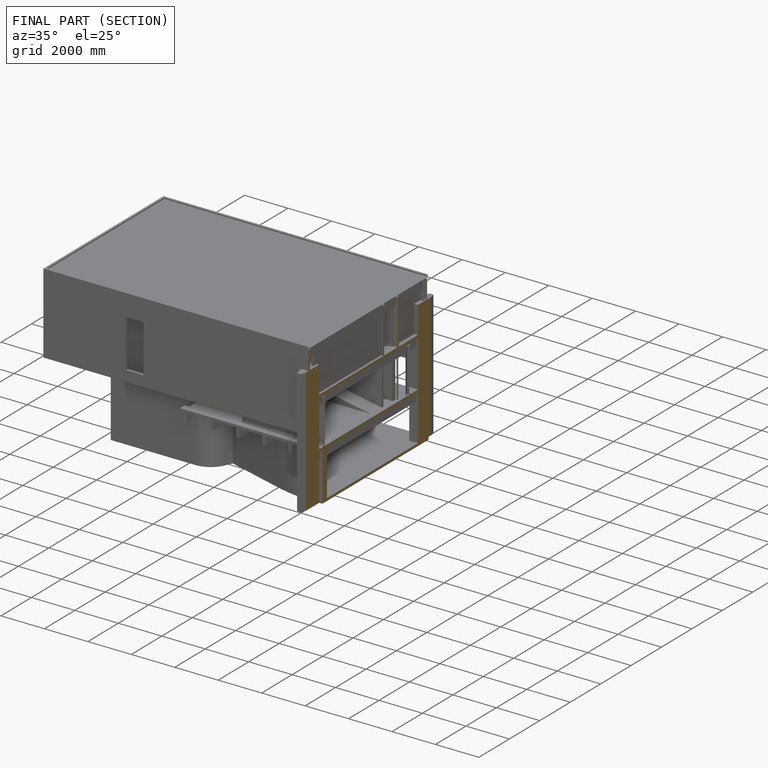
[diagram: finished part — half-section view (interior)]
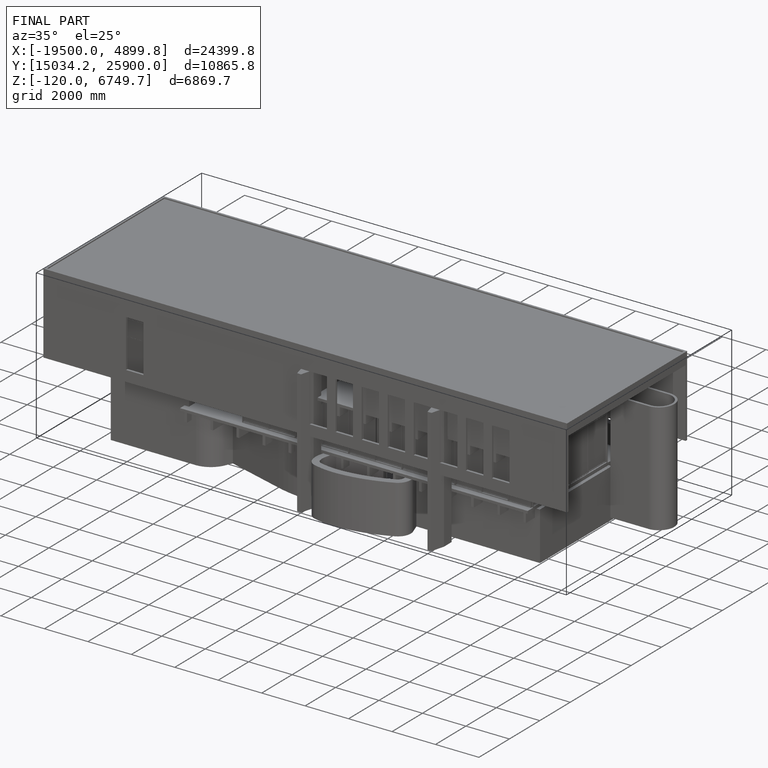
[diagram: finished part — iso view with bounding-box wireframe]
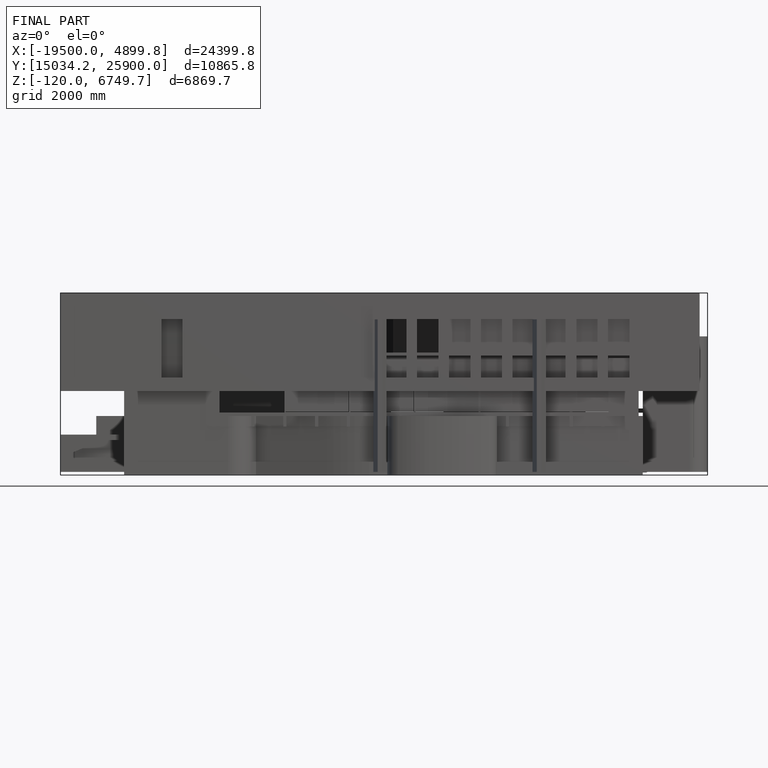
[diagram: finished part — front view with bounding-box wireframe]
